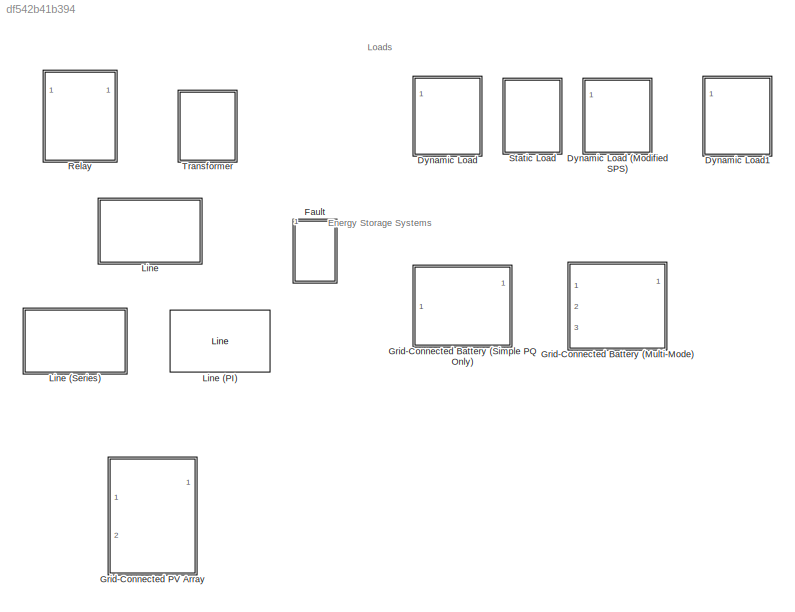
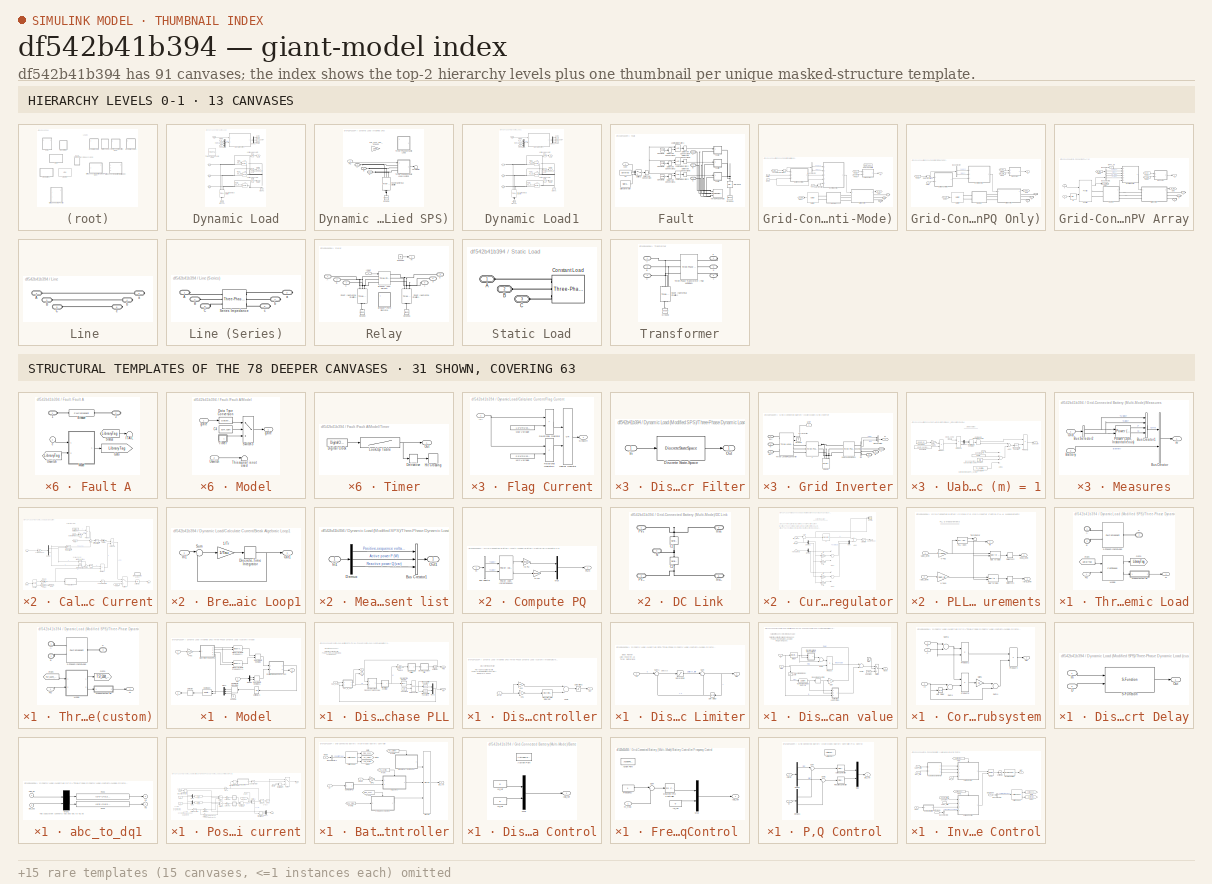
[diagram: thumbnail index - top-2 hierarchy levels (13 canvases) + 31 structural-template representatives of the remaining 78 canvases]
MODEL slx_df542b41b394
KIND library
CONFIG AbsTol = auto
CONFIG EnableMultiTasking = off
CONFIG FixedStep = auto
CONFIG MaxStep = auto
CONFIG MinStep = auto
CONFIG RelTol = 1e-3
CONFIG SampleTimeConstraint = Unconstrained
CONFIG Solver = VariableStepAuto
CONFIG SolverName = VariableStepAuto
CONFIG StartTime = 0.0
CONFIG StopTime = 10.0
BLOCK [SubSystem] Dynamic Load
  Ports = [1, 0, 0, 0, 0, 3]
  RequestExecContextInheritance = off
  Variant = off
BLOCK [SubSystem] Dynamic Load (Modified SPS)
  Ports = [1, 0, 0, 0, 0, 3]
  RequestExecContextInheritance = off
  Variant = off
BLOCK [PMIOPort] Dynamic Load (Modified SPS)/A
  Port = 1
  Side = Left
BLOCK [PMIOPort] Dynamic Load (Modified SPS)/B
  Port = 2
  Side = Left
BLOCK [PMIOPort] Dynamic Load (Modified SPS)/C
  Port = 3
  Side = Left
BLOCK [Reference] Dynamic Load (Modified SPS)/Ground  REF=powerlib/Elements/Ground
  Ports = [0, 0, 0, 0, 0, 1]
  SourceBlock = powerlib/Elements/Ground
  SourceType = Ground
BLOCK [Inport] Dynamic Load (Modified SPS)/PQ
  IconDisplay = Port number
BLOCK [Reference] Dynamic Load (Modified SPS)/Shunt (Numerical Stability)  REF=powerlib/Elements/Three-Phase
Series RLC Branch
  AttributesFormatString = \n
  Ports = [0, 0, 0, 0, 0, 3, 3]
  SourceBlock = powerlib/Elements/Three-Phase\nSeries RLC Branch
  SourceType = Three-Phase Series RLC Branch
BLOCK [Terminator] Dynamic Load (Modified SPS)/Terminator
BLOCK [SubSystem] Dynamic Load (Modified SPS)/Three-Phase Dynamic Load
  CloseFcn = sps_rtmsupport('CloseFcn',gcbh);
  Commented = on
  CopyFcn = sps_rtmsupport('CopyFcn',gcbh); powericon('psbloadfunction',gcb,'gotofrom','UpdateGotoTag');
  DeleteFcn = sps_rtmsupport('DeleteFcn',gcbh);
  DialogController = POWERSYS.PowerSysDialog
  LoadFcn = sps_rtmsupport('LoadFcn',gcbh);
  ModelCloseFcn = sps_rtmsupport('ModelCloseFcn',gcbh);
  NameChangeFcn = sps_rtmsupport('NameChangeFcn',gcbh);
  OpenFcn = sps_rtmsupport('OpenFcn',gcbh, 4);
  Ports = [1, 1, 0, 0, 0, 3]
  PostSaveFcn = sps_rtmsupport('PostSaveFcn',gcbh);
  PreCopyFcn = sps_rtmsupport('PreCopyFcn',gcbh);
  PreDeleteFcn = sps_rtmsupport('PreDeleteFcn',gcbh);
  PreSaveFcn = sps_rtmsupport('PreSaveFcn',gcbh);
  RequestExecContextInheritance = off
  StartFcn = sps_rtmsupport('StartFcn',gcbh);
  StopFcn = sps_rtmsupport('StopFcn',gcbh);
  UndoDeleteFcn = sps_rtmsupport('UndoDeleteFcn',gcbh);
  Variant = off
BLOCK [SubSystem] Dynamic Load (Modified SPS)/Three-Phase Dynamic Load (custom)
  CloseFcn = sps_rtmsupport('CloseFcn',gcbh);
  CopyFcn = sps_rtmsupport('CopyFcn',gcbh); powericon('psbloadfunction',gcb,'gotofrom','UpdateGotoTag');
  DeleteFcn = sps_rtmsupport('DeleteFcn',gcbh);
  DialogController = POWERSYS.PowerSysDialog
  LoadFcn = sps_rtmsupport('LoadFcn',gcbh);
  ModelCloseFcn = sps_rtmsupport('ModelCloseFcn',gcbh);
  NameChangeFcn = sps_rtmsupport('NameChangeFcn',gcbh);
  OpenFcn = sps_rtmsupport('OpenFcn',gcbh, 4);
  Ports = [1, 1, 0, 0, 0, 3]
  PostSaveFcn = sps_rtmsupport('PostSaveFcn',gcbh);
  PreCopyFcn = sps_rtmsupport('PreCopyFcn',gcbh);
  PreDeleteFcn = sps_rtmsupport('PreDeleteFcn',gcbh);
  PreSaveFcn = sps_rtmsupport('PreSaveFcn',gcbh);
  RequestExecContextInheritance = off
  StartFcn = sps_rtmsupport('StartFcn',gcbh);
  StopFcn = sps_rtmsupport('StopFcn',gcbh);
  UndoDeleteFcn = sps_rtmsupport('UndoDeleteFcn',gcbh);
  Variant = off
BLOCK [PMComponent] Dynamic Load (Modified SPS)/Three-Phase Dynamic Load (custom)/3-PhaseDynamicLoad
  LConnTagsString = A|B
  LeftPortType = p1
  PhysicalDomain = powersysdomain
  Ports = [0, 0, 0, 0, 0, 2, 1]
  RConnTagsString = C
  RightPortType = p1
BLOCK [PMIOPort] Dynamic Load (Modified SPS)/Three-Phase Dynamic Load (custom)/A
  Port = 1
  Side = Left
BLOCK [PMIOPort] Dynamic Load (Modified SPS)/Three-Phase Dynamic Load (custom)/B
  Port = 2
  Side = Left
BLOCK [PMIOPort] Dynamic Load (Modified SPS)/Three-Phase Dynamic Load (custom)/C
  Port = 3
  Side = Left
BLOCK [From] Dynamic Load (Modified SPS)/Three-Phase Dynamic Load (custom)/From
  CloseFcn = tagdialog Close
  GotoTag = T57_5329_5275792778477
  TagVisibility = global
BLOCK [Goto] Dynamic Load (Modified SPS)/Three-Phase Dynamic Load (custom)/Goto
  GotoTag = T57_5334_5331768972450
  TagVisibility = global
BLOCK [SubSystem] Dynamic Load (Modified SPS)/Three-Phase Dynamic Load (custom)/Measurement list
  Ports = [1, 1]
  RequestExecContextInheritance = off
  Variant = off
BLOCK [BusCreator] Dynamic Load (Modified SPS)/Three-Phase Dynamic Load (custom)/Measurement list/Bus Creator1
  DisplayOption = bar
  InheritFromInputs = on
  Inputs = 3
  Ports = [3, 1]
BLOCK [Demux] Dynamic Load (Modified SPS)/Three-Phase Dynamic Load (custom)/Measurement list/Demux
  DisplayOption = bar
  Outputs = [1,1,1]
  Ports = [1, 3]
BLOCK [Inport] Dynamic Load (Modified SPS)/Three-Phase Dynamic Load (custom)/Measurement list/In1
  IconDisplay = Port number
BLOCK [Outport] Dynamic Load (Modified SPS)/Three-Phase Dynamic Load (custom)/Measurement list/Out1
  IconDisplay = Port number
BLOCK [SubSystem] Dynamic Load (Modified SPS)/Three-Phase Dynamic Load (custom)/Model
  Ports = [2, 2]
  RequestExecContextInheritance = off
  Variant = off
BLOCK [ComplexToRealImag] Dynamic Load (Modified SPS)/Three-Phase Dynamic Load (custom)/Model/Complex to Real-Imag
  Ports = [1, 2]
BLOCK [Demux] Dynamic Load (Modified SPS)/Three-Phase Dynamic Load (custom)/Model/Demux
  Outputs = 2
  Ports = [1, 2]
BLOCK [SubSystem] Dynamic Load (Modified SPS)/Three-Phase Dynamic Load (custom)/Model/Discrete 3-phase PLL
  Ports = [1, 4]
  RequestExecContextInheritance = off
  Variant = off
BLOCK [Constant] Dynamic Load (Modified SPS)/Three-Phase Dynamic Load (custom)/Model/Discrete 3-phase PLL/Constant4
  Value = 2*pi
BLOCK [SubSystem] Dynamic Load (Modified SPS)/Three-Phase Dynamic Load (custom)/Model/Discrete 3-phase PLL/Discrete 2nd-Order Filter
  Ports = [1, 1]
  RequestExecContextInheritance = off
  Variant = off
BLOCK [DiscreteStateSpace] Dynamic Load (Modified SPS)/Three-Phase Dynamic Load (custom)/Model/Discrete 3-phase PLL/Discrete 2nd-Order Filter/Discrete State-Space
  A = Ad
  B = Bd
  C = Cd
  D = Dd
  SampleTime = Ts
  X0 = x0d
BLOCK [Inport] Dynamic Load (Modified SPS)/Three-Phase Dynamic Load (custom)/Model/Discrete 3-phase PLL/Discrete 2nd-Order Filter/In
  IconDisplay = Port number
BLOCK [Outport] Dynamic Load (Modified SPS)/Three-Phase Dynamic Load (custom)/Model/Discrete 3-phase PLL/Discrete 2nd-Order Filter/Out
  IconDisplay = Port number
  InitialOutput = 0
BLOCK [SubSystem] Dynamic Load (Modified SPS)/Three-Phase Dynamic Load (custom)/Model/Discrete 3-phase PLL/Discrete PI Controller
  Ports = [1, 1]
  RequestExecContextInheritance = off
  Variant = off
BLOCK [DiscreteIntegrator] Dynamic Load (Modified SPS)/Three-Phase Dynamic Load (custom)/Model/Discrete 3-phase PLL/Discrete PI Controller/Discrete-Time Integrator
  ICPrevOutput = DiscIntNeverNeededParam
  ICPrevScaledInput = DiscIntNeverNeededParam
  InitialCondition = Init
  LimitOutput = on
  LowerSaturationLimit = LowerLimit
  Ports = [1, 1]
  SampleTime = Ts
  UpperSaturationLimit = UpperLimit
BLOCK [Inport] Dynamic Load (Modified SPS)/Three-Phase Dynamic Load (custom)/Model/Discrete 3-phase PLL/Discrete PI Controller/Error
  IconDisplay = Port number
BLOCK [Gain] Dynamic Load (Modified SPS)/Three-Phase Dynamic Load (custom)/Model/Discrete 3-phase PLL/Discrete PI Controller/Kp4
  Gain = Kp
BLOCK [Gain] Dynamic Load (Modified SPS)/Three-Phase Dynamic Load (custom)/Model/Discrete 3-phase PLL/Discrete PI Controller/Kp5
  Gain = Ki
BLOCK [Outport] Dynamic Load (Modified SPS)/Three-Phase Dynamic Load (custom)/Model/Discrete 3-phase PLL/Discrete PI Controller/Out
  IconDisplay = Port number
  InitialOutput = 0
BLOCK [Saturate] Dynamic Load (Modified SPS)/Three-Phase Dynamic Load (custom)/Model/Discrete 3-phase PLL/Discrete PI Controller/Saturation2
  InputPortMap = u0
  LowerLimit = LowerLimit
  Ports = [1, 1]
  UpperLimit = UpperLimit
BLOCK [Sum] Dynamic Load (Modified SPS)/Three-Phase Dynamic Load (custom)/Model/Discrete 3-phase PLL/Discrete PI Controller/Sum6
  Ports = [2, 1]
BLOCK [SubSystem] Dynamic Load (Modified SPS)/Three-Phase Dynamic Load (custom)/Model/Discrete 3-phase PLL/Discrete Rate Limiter
  Ports = [1, 1]
  RequestExecContextInheritance = off
  Variant = off
BLOCK [Inport] Dynamic Load (Modified SPS)/Three-Phase Dynamic Load (custom)/Model/Discrete 3-phase PLL/Discrete Rate Limiter/In
  IconDisplay = Port number
BLOCK [Outport] Dynamic Load (Modified SPS)/Three-Phase Dynamic Load (custom)/Model/Discrete 3-phase PLL/Discrete Rate Limiter/Out
  IconDisplay = Port number
BLOCK [Saturate] Dynamic Load (Modified SPS)/Three-Phase Dynamic Load (custom)/Model/Discrete 3-phase PLL/Discrete Rate Limiter/Saturation
  InputPortMap = u0
  LowerLimit = LowerLimit
  Ports = [1, 1]
  UpperLimit = UpperLimit
BLOCK [Sum] Dynamic Load (Modified SPS)/Three-Phase Dynamic Load (custom)/Model/Discrete 3-phase PLL/Discrete Rate Limiter/Sum
  IconShape = round
  Inputs = |++
  Ports = [2, 1]
BLOCK [Sum] Dynamic Load (Modified SPS)/Three-Phase Dynamic Load (custom)/Model/Discrete 3-phase PLL/Discrete Rate Limiter/Sum1
  IconShape = round
  Inputs = |+-
  Ports = [2, 1]
BLOCK [UnitDelay] Dynamic Load (Modified SPS)/Three-Phase Dynamic Load (custom)/Model/Discrete 3-phase PLL/Discrete Rate Limiter/Unit Delay
  InitialCondition = Vinit
  SampleTime = Ts
BLOCK [SubSystem] Dynamic Load (Modified SPS)/Three-Phase Dynamic Load (custom)/Model/Discrete 3-phase PLL/Discrete Variable Frequency Mean value
  Ports = [2, 1]
  RequestExecContextInheritance = off
  Variant = off
BLOCK [Constant] Dynamic Load (Modified SPS)/Three-Phase Dynamic Load (custom)/Model/Discrete 3-phase PLL/Discrete Variable Frequency Mean value/Constant
  Value = Vinit
BLOCK [SubSystem] Dynamic Load (Modified SPS)/Three-Phase Dynamic Load (custom)/Model/Discrete 3-phase PLL/Discrete Variable Frequency Mean value/Correction subsystem
  Ports = [3, 1]
  RequestExecContextInheritance = off
  Variant = off
BLOCK [Inport] Dynamic Load (Modified SPS)/Three-Phase Dynamic Load (custom)/Model/Discrete 3-phase PLL/Discrete Variable Frequency Mean value/Correction subsystem/F
  IconDisplay = Port number
  Port = 2
BLOCK [Gain] Dynamic Load (Modified SPS)/Three-Phase Dynamic Load (custom)/Model/Discrete 3-phase PLL/Discrete Variable Frequency Mean value/Correction subsystem/Gain1
  Gain = 0.5
BLOCK [Inport] Dynamic Load (Modified SPS)/Three-Phase Dynamic Load (custom)/Model/Discrete 3-phase PLL/Discrete Variable Frequency Mean value/Correction subsystem/In
  IconDisplay = Port number
  Port = 3
BLOCK [Inport] Dynamic Load (Modified SPS)/Three-Phase Dynamic Load (custom)/Model/Discrete 3-phase PLL/Discrete Variable Frequency Mean value/Correction subsystem/N
  IconDisplay = Port number
BLOCK [Outport] Dynamic Load (Modified SPS)/Three-Phase Dynamic Load (custom)/Model/Discrete 3-phase PLL/Discrete Variable Frequency Mean value/Correction subsystem/Out
  IconDisplay = Port number
BLOCK [Product] Dynamic Load (Modified SPS)/Three-Phase Dynamic Load (custom)/Model/Discrete 3-phase PLL/Discrete Variable Frequency Mean value/Correction subsystem/Product2
  Inputs = */
  Ports = [2, 1]
  RndMeth = Floor
BLOCK [Product] Dynamic Load (Modified SPS)/Three-Phase Dynamic Load (custom)/Model/Discrete 3-phase PLL/Discrete Variable Frequency Mean value/Correction subsystem/Product4
  Inputs = **
  Ports = [2, 1]
  RndMeth = Floor
BLOCK [Product] Dynamic Load (Modified SPS)/Three-Phase Dynamic Load (custom)/Model/Discrete 3-phase PLL/Discrete Variable Frequency Mean value/Correction subsystem/Product5
  Inputs = **
  Ports = [2, 1]
  RndMeth = Floor
BLOCK [Sum] Dynamic Load (Modified SPS)/Three-Phase Dynamic Load (custom)/Model/Discrete 3-phase PLL/Discrete Variable Frequency Mean value/Correction subsystem/Sum1
  Inputs = +-
  Ports = [2, 1]
BLOCK [Sum] Dynamic Load (Modified SPS)/Three-Phase Dynamic Load (custom)/Model/Discrete 3-phase PLL/Discrete Variable Frequency Mean value/Correction subsystem/Sum4
  Ports = [2, 1]
BLOCK [Sum] Dynamic Load (Modified SPS)/Three-Phase Dynamic Load (custom)/Model/Discrete 3-phase PLL/Discrete Variable Frequency Mean value/Correction subsystem/Sum5
  Inputs = +-
  Ports = [2, 1]
BLOCK [UnitDelay] Dynamic Load (Modified SPS)/Three-Phase Dynamic Load (custom)/Model/Discrete 3-phase PLL/Discrete Variable Frequency Mean value/Correction subsystem/Unit Delay
  SampleTime = Ts
BLOCK [SubSystem] Dynamic Load (Modified SPS)/Three-Phase Dynamic Load (custom)/Model/Discrete 3-phase PLL/Discrete Variable Frequency Mean value/Discrete Variable Transport Delay
  Ports = [2, 1]
  RequestExecContextInheritance = off
  Variant = off
BLOCK [Inport] Dynamic Load (Modified SPS)/Three-Phase Dynamic Load (custom)/Model/Discrete 3-phase PLL/Discrete Variable Frequency Mean value/Discrete Variable Transport Delay/D
  IconDisplay = Port number
  Port = 2
BLOCK [Inport] Dynamic Load (Modified SPS)/Three-Phase Dynamic Load (custom)/Model/Discrete 3-phase PLL/Discrete Variable Frequency Mean value/Discrete Variable Transport Delay/In
  IconDisplay = Port number
BLOCK [Outport] Dynamic Load (Modified SPS)/Three-Phase Dynamic Load (custom)/Model/Discrete 3-phase PLL/Discrete Variable Frequency Mean value/Discrete Variable Transport Delay/Out
  IconDisplay = Port number
BLOCK [S-Function] Dynamic Load (Modified SPS)/Three-Phase Dynamic Load (custom)/Model/Discrete 3-phase PLL/Discrete Variable Frequency Mean value/Discrete Variable Transport Delay/S-Function 
  EnableBusSupport = off
  FunctionName = discreteVariableTransportDelay
  Parameters = MaxDelay,Ts,InitialValue
  Ports = [2, 1]
  SFcnIsStateOwnerBlock = off
  SFunctionDeploymentMode = off
BLOCK [Inport] Dynamic Load (Modified SPS)/Three-Phase Dynamic Load (custom)/Model/Discrete 3-phase PLL/Discrete Variable Frequency Mean value/Freq
  IconDisplay = Port number
  PortDimensions = 1
BLOCK [Gain] Dynamic Load (Modified SPS)/Three-Phase Dynamic Load (custom)/Model/Discrete 3-phase PLL/Discrete Variable Frequency Mean value/Gain
  Gain = Ts
BLOCK [Inport] Dynamic Load (Modified SPS)/Three-Phase Dynamic Load (custom)/Model/Discrete 3-phase PLL/Discrete Variable Frequency Mean value/In
  IconDisplay = Port number
  Port = 2
  PortDimensions = 1
BLOCK [DiscreteIntegrator] Dynamic Load (Modified SPS)/Three-Phase Dynamic Load (custom)/Model/Discrete 3-phase PLL/Discrete Variable Frequency Mean value/Integ4
  ICPrevOutput = DiscIntNeverNeededParam
  ICPrevScaledInput = DiscIntNeverNeededParam
  IntegratorMethod = Integration: Trapezoidal
  Ports = [1, 1]
  SampleTime = Ts
BLOCK [Outport] Dynamic Load (Modified SPS)/Three-Phase Dynamic Load (custom)/Model/Discrete 3-phase PLL/Discrete Variable Frequency Mean value/Mean
  IconDisplay = Port number
BLOCK [Fcn] Dynamic Load (Modified SPS)/Three-Phase Dynamic Load (custom)/Model/Discrete 3-phase PLL/Discrete Variable Frequency Mean value/Number of samples per cycle
  Expr = 1/u[1]/Ts
BLOCK [Product] Dynamic Load (Modified SPS)/Three-Phase Dynamic Load (custom)/Model/Discrete 3-phase PLL/Discrete Variable Frequency Mean value/Product
  Ports = [2, 1]
  RndMeth = Floor
BLOCK [Rounding] Dynamic Load (Modified SPS)/Three-Phase Dynamic Load (custom)/Model/Discrete 3-phase PLL/Discrete Variable Frequency Mean value/Rounding Function
  Operator = ceil
BLOCK [Step] Dynamic Load (Modified SPS)/Three-Phase Dynamic Load (custom)/Model/Discrete 3-phase PLL/Discrete Variable Frequency Mean value/Step
  SampleTime = Ts
  Time = 1/Finit
BLOCK [Sum] Dynamic Load (Modified SPS)/Three-Phase Dynamic Load (custom)/Model/Discrete 3-phase PLL/Discrete Variable Frequency Mean value/Sum5
  Ports = [2, 1]
BLOCK [Sum] Dynamic Load (Modified SPS)/Three-Phase Dynamic Load (custom)/Model/Discrete 3-phase PLL/Discrete Variable Frequency Mean value/Sum7
  Inputs = -+
  Ports = [2, 1]
BLOCK [Switch] Dynamic Load (Modified SPS)/Three-Phase Dynamic Load (custom)/Model/Discrete 3-phase PLL/Discrete Variable Frequency Mean value/Switch
  SaturateOnIntegerOverflow = off
  Threshold = 0.5
BLOCK [Saturate] Dynamic Load (Modified SPS)/Three-Phase Dynamic Load (custom)/Model/Discrete 3-phase PLL/Discrete Variable Frequency Mean value/To avoid division by zero
  InputPortMap = u0
  LowerLimit = 1e-6
  Ports = [1, 1]
  UpperLimit = 1e6
BLOCK [DiscreteIntegrator] Dynamic Load (Modified SPS)/Three-Phase Dynamic Load (custom)/Model/Discrete 3-phase PLL/Discrete-Time Integrator
  ICPrevOutput = DiscIntNeverNeededParam
  ICPrevScaledInput = DiscIntNeverNeededParam
  InitialCondition = Phase_Init*pi/180
  Ports = [1, 1]
  SampleTime = Ts
BLOCK [Outport] Dynamic Load (Modified SPS)/Three-Phase Dynamic Load (custom)/Model/Discrete 3-phase PLL/Freq
  IconDisplay = Port number
BLOCK [Gain] Dynamic Load (Modified SPS)/Three-Phase Dynamic Load (custom)/Model/Discrete 3-phase PLL/Gain10
  Gain = 1/2/pi
BLOCK [Math] Dynamic Load (Modified SPS)/Three-Phase Dynamic Load (custom)/Model/Discrete 3-phase PLL/Math Function
  Operator = mod
  Ports = [2, 1]
BLOCK [Mux] Dynamic Load (Modified SPS)/Three-Phase Dynamic Load (custom)/Model/Discrete 3-phase PLL/Mux2
  DisplayOption = bar
  Inputs = 2
  Ports = [2, 1]
BLOCK [Trigonometry] Dynamic Load (Modified SPS)/Three-Phase Dynamic Load (custom)/Model/Discrete 3-phase PLL/Trigonometric Function
  Ports = [1, 1]
BLOCK [Trigonometry] Dynamic Load (Modified SPS)/Three-Phase Dynamic Load (custom)/Model/Discrete 3-phase PLL/Trigonometric Function2
  Operator = cos
  Ports = [1, 1]
BLOCK [UnitDelay] Dynamic Load (Modified SPS)/Three-Phase Dynamic Load (custom)/Model/Discrete 3-phase PLL/Unit Delay
  InitialCondition = Finit
  SampleTime = Ts
BLOCK [Inport] Dynamic Load (Modified SPS)/Three-Phase Dynamic Load (custom)/Model/Discrete 3-phase PLL/Vab_bc (pu)
  IconDisplay = Port number
  PortDimensions = 2
BLOCK [Outport] Dynamic Load (Modified SPS)/Three-Phase Dynamic Load (custom)/Model/Discrete 3-phase PLL/Vd
  IconDisplay = Port number
  Port = 2
BLOCK [Outport] Dynamic Load (Modified SPS)/Three-Phase Dynamic Load (custom)/Model/Discrete 3-phase PLL/Vq
  IconDisplay = Port number
  Port = 3
BLOCK [SubSystem] Dynamic Load (Modified SPS)/Three-Phase Dynamic Load (custom)/Model/Discrete 3-phase PLL/abc_to_dq1
  Ports = [2, 2]
  RequestExecContextInheritance = off
  Variant = off
BLOCK [Fcn] Dynamic Load (Modified SPS)/Three-Phase Dynamic Load (custom)/Model/Discrete 3-phase PLL/abc_to_dq1/Fcn2
  Expr = (u[4]*(2*u[1]+u[2]) + (sqrt(3)*u[2]*u[3]))/3
BLOCK [Fcn] Dynamic Load (Modified SPS)/Three-Phase Dynamic Load (custom)/Model/Discrete 3-phase PLL/abc_to_dq1/Fcn3
  Expr = (u[3]*(2*u[1]+u[2]) + (-sqrt(3)*u[2]*u[4]))/3
BLOCK [Mux] Dynamic Load (Modified SPS)/Three-Phase Dynamic Load (custom)/Model/Discrete 3-phase PLL/abc_to_dq1/Mux1
  Inputs = [ 2 2 ]
  Ports = [2, 1]
BLOCK [Inport] Dynamic Load (Modified SPS)/Three-Phase Dynamic Load (custom)/Model/Discrete 3-phase PLL/abc_to_dq1/Vab_bc
  IconDisplay = Port number
  PortDimensions = 2
BLOCK [Inport] Dynamic Load (Modified SPS)/Three-Phase Dynamic Load (custom)/Model/Discrete 3-phase PLL/abc_to_dq1/sin_cos
  IconDisplay = Port number
  Port = 2
  PortDimensions = 2
BLOCK [Outport] Dynamic Load (Modified SPS)/Three-Phase Dynamic Load (custom)/Model/Discrete 3-phase PLL/abc_to_dq1/vd
  IconDisplay = Port number
  InitialOutput = 0
BLOCK [Outport] Dynamic Load (Modified SPS)/Three-Phase Dynamic Load (custom)/Model/Discrete 3-phase PLL/abc_to_dq1/vq
  IconDisplay = Port number
  InitialOutput = 0
  Port = 2
BLOCK [Outport] Dynamic Load (Modified SPS)/Three-Phase Dynamic Load (custom)/Model/Discrete 3-phase PLL/wt
  IconDisplay = Port number
  Port = 4
BLOCK [Ground] Dynamic Load (Modified SPS)/Three-Phase Dynamic Load (custom)/Model/Ground
BLOCK [Reference] Dynamic Load (Modified SPS)/Three-Phase Dynamic Load (custom)/Model/Mean (Variable Frequency)  REF=powerlib_meascontrol/Measurements/Mean
(Variable Frequency)
  Ports = [2, 1]
  SourceBlock = powerlib_meascontrol/Measurements/Mean\n(Variable Frequency)
  SourceType = Mean (Variable Frequency)
BLOCK [Reference] Dynamic Load (Modified SPS)/Three-Phase Dynamic Load (custom)/Model/Mean (Variable Frequency)1  REF=powerlib_meascontrol/Measurements/Mean
(Variable Frequency)
  Ports = [2, 1]
  SourceBlock = powerlib_meascontrol/Measurements/Mean\n(Variable Frequency)
  SourceType = Mean (Variable Frequency)
BLOCK [Mux] Dynamic Load (Modified SPS)/Three-Phase Dynamic Load (custom)/Model/Mux1
  DisplayOption = bar
  Inputs = 3
  Ports = [3, 1]
BLOCK [Inport] Dynamic Load (Modified SPS)/Three-Phase Dynamic Load (custom)/Model/PQ
  IconDisplay = Port number
  Port = 2
  PortDimensions = 2
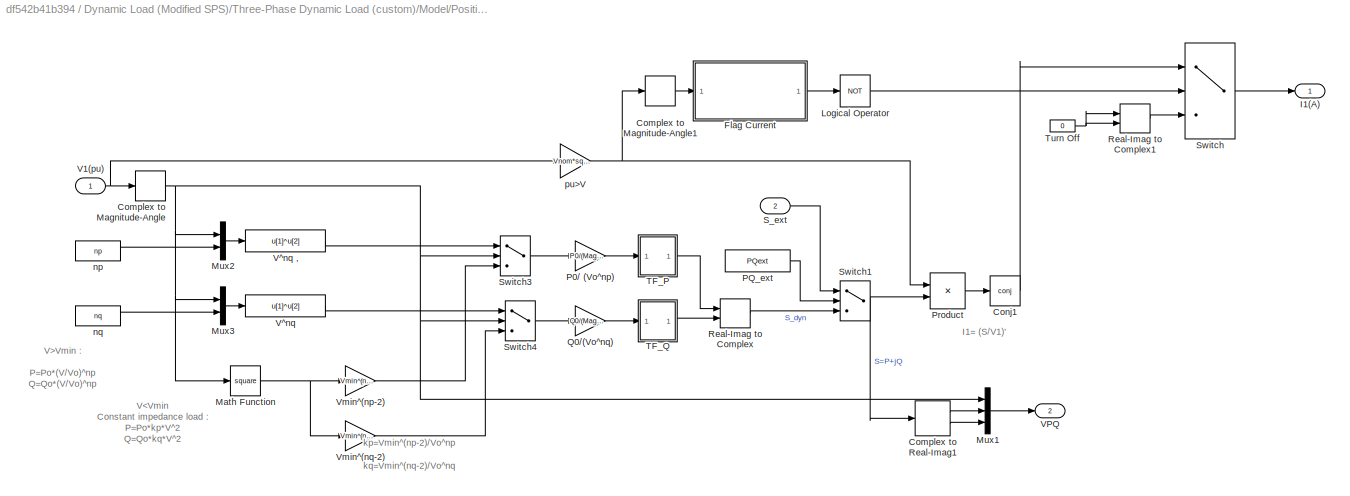
BLOCK [SubSystem] Dynamic Load (Modified SPS)/Three-Phase Dynamic Load (custom)/Model/Positive Sequence current
  Ports = [2, 2]
  RequestExecContextInheritance = off
  Variant = off
BLOCK [ComplexToMagnitudeAngle] Dynamic Load (Modified SPS)/Three-Phase Dynamic Load (custom)/Model/Positive Sequence current/Complex to Magnitude-Angle
  Output = Magnitude
  Ports = [1, 1]
BLOCK [ComplexToMagnitudeAngle] Dynamic Load (Modified SPS)/Three-Phase Dynamic Load (custom)/Model/Positive Sequence current/Complex to Magnitude-Angle1
  Output = Magnitude
  Ports = [1, 1]
BLOCK [ComplexToRealImag] Dynamic Load (Modified SPS)/Three-Phase Dynamic Load (custom)/Model/Positive Sequence current/Complex to Real-Imag1
  Ports = [1, 2]
BLOCK [Math] Dynamic Load (Modified SPS)/Three-Phase Dynamic Load (custom)/Model/Positive Sequence current/Conj1
  Operator = conj
  Ports = [1, 1]
BLOCK [SubSystem] Dynamic Load (Modified SPS)/Three-Phase Dynamic Load (custom)/Model/Positive Sequence current/Flag Current
  Ports = [1, 1]
  RequestExecContextInheritance = off
  Variant = off
BLOCK [Logic] Dynamic Load (Modified SPS)/Three-Phase Dynamic Load (custom)/Model/Positive Sequence current/Flag Current/Logical Operator
  AllPortsSameDT = off
  Operator = OR
  OutDataTypeStr = boolean
  Ports = [2, 1]
BLOCK [Constant] Dynamic Load (Modified SPS)/Three-Phase Dynamic Load (custom)/Model/Positive Sequence current/Flag Current/Max Voltage
  Value = 1.5*460*sqrt(3)/sqrt(2)
BLOCK [Constant] Dynamic Load (Modified SPS)/Three-Phase Dynamic Load (custom)/Model/Positive Sequence current/Flag Current/Min Voltage
  Value = 0.5*460*sqrt(3)/sqrt(2)
BLOCK [RelationalOperator] Dynamic Load (Modified SPS)/Three-Phase Dynamic Load (custom)/Model/Positive Sequence current/Flag Current/Relational Operator
  InputSameDT = off
  Operator = >
  OutDataTypeStr = boolean
  Ports = [2, 1]
  RndMeth = Simplest
BLOCK [RelationalOperator] Dynamic Load (Modified SPS)/Three-Phase Dynamic Load (custom)/Model/Positive Sequence current/Flag Current/Relational Operator1
  InputSameDT = off
  Operator = <
  OutDataTypeStr = boolean
  Ports = [2, 1]
  RndMeth = Simplest
BLOCK [Outport] Dynamic Load (Modified SPS)/Three-Phase Dynamic Load (custom)/Model/Positive Sequence current/Flag Current/SinkOff
  IconDisplay = Port number
BLOCK [Inport] Dynamic Load (Modified SPS)/Three-Phase Dynamic Load (custom)/Model/Positive Sequence current/Flag Current/|V|
  IconDisplay = Port number
BLOCK [Outport] Dynamic Load (Modified SPS)/Three-Phase Dynamic Load (custom)/Model/Positive Sequence current/I1(A)
  IconDisplay = Port number
BLOCK [Logic] Dynamic Load (Modified SPS)/Three-Phase Dynamic Load (custom)/Model/Positive Sequence current/Logical Operator
  AllPortsSameDT = off
  Operator = NOT
  OutDataTypeStr = boolean
  Ports = [1, 1]
BLOCK [Math] Dynamic Load (Modified SPS)/Three-Phase Dynamic Load (custom)/Model/Positive Sequence current/Math Function
  Operator = square
  Ports = [1, 1]
BLOCK [Mux] Dynamic Load (Modified SPS)/Three-Phase Dynamic Load (custom)/Model/Positive Sequence current/Mux1
  DisplayOption = bar
  Inputs = 3
  Ports = [3, 1]
BLOCK [Mux] Dynamic Load (Modified SPS)/Three-Phase Dynamic Load (custom)/Model/Positive Sequence current/Mux2
  DisplayOption = bar
  Inputs = 2
  Ports = [2, 1]
BLOCK [Mux] Dynamic Load (Modified SPS)/Three-Phase Dynamic Load (custom)/Model/Positive Sequence current/Mux3
  DisplayOption = bar
  Inputs = 2
  Ports = [2, 1]
BLOCK [Gain] Dynamic Load (Modified SPS)/Three-Phase Dynamic Load (custom)/Model/Positive Sequence current/P0// (Vo^np)
  Gain = P0/(Mag_V0^np)
BLOCK [Constant] Dynamic Load (Modified SPS)/Three-Phase Dynamic Load (custom)/Model/Positive Sequence current/PQ_ext
  Value = PQext
BLOCK [Product] Dynamic Load (Modified SPS)/Three-Phase Dynamic Load (custom)/Model/Positive Sequence current/Product
  Inputs = /*
  Ports = [2, 1]
  RndMeth = Floor
BLOCK [Gain] Dynamic Load (Modified SPS)/Three-Phase Dynamic Load (custom)/Model/Positive Sequence current/Q0//(Vo^nq)
  Gain = Q0/(Mag_V0^nq)
BLOCK [RealImagToComplex] Dynamic Load (Modified SPS)/Three-Phase Dynamic Load (custom)/Model/Positive Sequence current/Real-Imag to Complex
  Ports = [2, 1]
BLOCK [RealImagToComplex] Dynamic Load (Modified SPS)/Three-Phase Dynamic Load (custom)/Model/Positive Sequence current/Real-Imag to Complex1
  Ports = [2, 1]
BLOCK [Inport] Dynamic Load (Modified SPS)/Three-Phase Dynamic Load (custom)/Model/Positive Sequence current/S_ext
  IconDisplay = Port number
  Port = 2
  PortDimensions = 1
BLOCK [Switch] Dynamic Load (Modified SPS)/Three-Phase Dynamic Load (custom)/Model/Positive Sequence current/Switch
  Criteria = u2 > Threshold
  InputSameDT = off
  SaturateOnIntegerOverflow = off
BLOCK [Switch] Dynamic Load (Modified SPS)/Three-Phase Dynamic Load (custom)/Model/Positive Sequence current/Switch1
  SaturateOnIntegerOverflow = off
  Threshold = 0.5
BLOCK [Switch] Dynamic Load (Modified SPS)/Three-Phase Dynamic Load (custom)/Model/Positive Sequence current/Switch3
  SaturateOnIntegerOverflow = off
  Threshold = Vmin
BLOCK [Switch] Dynamic Load (Modified SPS)/Three-Phase Dynamic Load (custom)/Model/Positive Sequence current/Switch4
  SaturateOnIntegerOverflow = off
  Threshold = Vmin
BLOCK [SubSystem] Dynamic Load (Modified SPS)/Three-Phase Dynamic Load (custom)/Model/Positive Sequence current/TF_P
  Ports = [1, 1]
  RequestExecContextInheritance = off
  Variant = off
BLOCK [DiscreteStateSpace] Dynamic Load (Modified SPS)/Three-Phase Dynamic Load (custom)/Model/Positive Sequence current/TF_P/Discrete State-Space
  A = Ad
  B = Bd
  C = Cd
  D = Dd
  SampleTime = Ts
  X0 = x0d
BLOCK [Inport] Dynamic Load (Modified SPS)/Three-Phase Dynamic Load (custom)/Model/Positive Sequence current/TF_P/In1
  IconDisplay = Port number
BLOCK [Outport] Dynamic Load (Modified SPS)/Three-Phase Dynamic Load (custom)/Model/Positive Sequence current/TF_P/Out1
  IconDisplay = Port number
BLOCK [SubSystem] Dynamic Load (Modified SPS)/Three-Phase Dynamic Load (custom)/Model/Positive Sequence current/TF_Q
  Ports = [1, 1]
  RequestExecContextInheritance = off
  Variant = off
BLOCK [DiscreteStateSpace] Dynamic Load (Modified SPS)/Three-Phase Dynamic Load (custom)/Model/Positive Sequence current/TF_Q/Discrete State-Space
  A = Ad
  B = Bd
  C = Cd
  D = Dd
  SampleTime = Ts
  X0 = x0d
BLOCK [Inport] Dynamic Load (Modified SPS)/Three-Phase Dynamic Load (custom)/Model/Positive Sequence current/TF_Q/In1
  IconDisplay = Port number
BLOCK [Outport] Dynamic Load (Modified SPS)/Three-Phase Dynamic Load (custom)/Model/Positive Sequence current/TF_Q/Out1
  IconDisplay = Port number
BLOCK [Constant] Dynamic Load (Modified SPS)/Three-Phase Dynamic Load (custom)/Model/Positive Sequence current/Turn Off
  Value = 0
BLOCK [Inport] Dynamic Load (Modified SPS)/Three-Phase Dynamic Load (custom)/Model/Positive Sequence current/V1(pu)
  IconDisplay = Port number
  PortDimensions = 1
BLOCK [Outport] Dynamic Load (Modified SPS)/Three-Phase Dynamic Load (custom)/Model/Positive Sequence current/VPQ
  IconDisplay = Port number
  Port = 2
BLOCK [Fcn] Dynamic Load (Modified SPS)/Three-Phase Dynamic Load (custom)/Model/Positive Sequence current/V^nq
  Expr = u[1]^u[2]
BLOCK [Fcn] Dynamic Load (Modified SPS)/Three-Phase Dynamic Load (custom)/Model/Positive Sequence current/V^nq ,
  Expr = u[1]^u[2]
BLOCK [Gain] Dynamic Load (Modified SPS)/Three-Phase Dynamic Load (custom)/Model/Positive Sequence current/Vmin^(np-2)
  Gain = Vmin^(np-2)
BLOCK [Gain] Dynamic Load (Modified SPS)/Three-Phase Dynamic Load (custom)/Model/Positive Sequence current/Vmin^(nq-2)
  Gain = Vmin^(nq-2)
BLOCK [Constant] Dynamic Load (Modified SPS)/Three-Phase Dynamic Load (custom)/Model/Positive Sequence current/np
  Value = np
BLOCK [Constant] Dynamic Load (Modified SPS)/Three-Phase Dynamic Load (custom)/Model/Positive Sequence current/nq
  Value = nq
BLOCK [Gain] Dynamic Load (Modified SPS)/Three-Phase Dynamic Load (custom)/Model/Positive Sequence current/pu>V
  Gain = Vnom*sqrt(3)/sqrt(2)
BLOCK [RealImagToComplex] Dynamic Load (Modified SPS)/Three-Phase Dynamic Load (custom)/Model/Real-Imag to Complex
  Ports = [2, 1]
BLOCK [RealImagToComplex] Dynamic Load (Modified SPS)/Three-Phase Dynamic Load (custom)/Model/Real-Imag to Complex1
  Ports = [2, 1]
BLOCK [Selector] Dynamic Load (Modified SPS)/Three-Phase Dynamic Load (custom)/Model/Selector
  IndexOptions = Index vector (dialog)
  Indices = 1:2
  InputPortWidth = 3
  OutputSizes = 1
  Ports = [1, 1]
BLOCK [UnitDelay] Dynamic Load (Modified SPS)/Three-Phase Dynamic Load (custom)/Model/Unit Delay1
  InitialCondition = I1_init*exp(-j*Pha_V0*pi/180)
  SampleTime = Ts
BLOCK [Gain] Dynamic Load (Modified SPS)/Three-Phase Dynamic Load (custom)/Model/V> pu
  Gain = 1/Vbase
BLOCK [Reference] Dynamic Load (Modified SPS)/Three-Phase Dynamic Load (custom)/Model/dq0 to abc  REF=powerlib_meascontrol/Transformations/dq0 to abc
  Ports = [2, 1]
  SourceBlock = powerlib_meascontrol/Transformations/dq0 to abc
  SourceType = dq0 to abc Transformation
BLOCK [Outport] Dynamic Load (Modified SPS)/Three-Phase Dynamic Load (custom)/Model/i
  IconDisplay = Port number
BLOCK [Outport] Dynamic Load (Modified SPS)/Three-Phase Dynamic Load (custom)/Model/m
  IconDisplay = Port number
  Port = 2
BLOCK [Inport] Dynamic Load (Modified SPS)/Three-Phase Dynamic Load (custom)/Model/v
  IconDisplay = Port number
  PortDimensions = 2
BLOCK [Inport] Dynamic Load (Modified SPS)/Three-Phase Dynamic Load (custom)/PQ
  IconDisplay = Port number
BLOCK [Outport] Dynamic Load (Modified SPS)/Three-Phase Dynamic Load (custom)/m
  IconDisplay = Port number
  InitialOutput = [0,0,0]
BLOCK [PMComponent] Dynamic Load (Modified SPS)/Three-Phase Dynamic Load/3-PhaseDynamicLoad
  LConnTagsString = A|B
  LeftPortType = p1
  PhysicalDomain = powersysdomain
  Ports = [0, 0, 0, 0, 0, 2, 1]
  RConnTagsString = C
  RightPortType = p1
BLOCK [PMIOPort] Dynamic Load (Modified SPS)/Three-Phase Dynamic Load/A
  Port = 1
  Side = Left
BLOCK [PMIOPort] Dynamic Load (Modified SPS)/Three-Phase Dynamic Load/B
  Port = 2
  Side = Left
BLOCK [PMIOPort] Dynamic Load (Modified SPS)/Three-Phase Dynamic Load/C
  Port = 3
  Side = Left
BLOCK [From] Dynamic Load (Modified SPS)/Three-Phase Dynamic Load/From
  CloseFcn = tagdialog Close
  GotoTag = LibraryTag
BLOCK [Goto] Dynamic Load (Modified SPS)/Three-Phase Dynamic Load/Goto
  GotoTag = LibraryTag
  TagVisibility = global
BLOCK [SubSystem] Dynamic Load (Modified SPS)/Three-Phase Dynamic Load/Measurement list
  Ports = [1, 1]
  RequestExecContextInheritance = off
  Variant = off
BLOCK [BusCreator] Dynamic Load (Modified SPS)/Three-Phase Dynamic Load/Measurement list/Bus Creator1
  DisplayOption = bar
  InheritFromInputs = on
  Inputs = 3
  Ports = [3, 1]
BLOCK [Demux] Dynamic Load (Modified SPS)/Three-Phase Dynamic Load/Measurement list/Demux
  DisplayOption = bar
  Outputs = [1,1,1]
  Ports = [1, 3]
BLOCK [Inport] Dynamic Load (Modified SPS)/Three-Phase Dynamic Load/Measurement list/In1
  IconDisplay = Port number
BLOCK [Outport] Dynamic Load (Modified SPS)/Three-Phase Dynamic Load/Measurement list/Out1
  IconDisplay = Port number
BLOCK [Reference] Dynamic Load (Modified SPS)/Three-Phase Dynamic Load/Model  REF=spsDynamicLoadModel/Continuous
  Ports = [2, 2]
  SourceBlock = spsDynamicLoadModel/Continuous
  SourceType = SubSystem
BLOCK [Inport] Dynamic Load (Modified SPS)/Three-Phase Dynamic Load/PQ
  IconDisplay = Port number
BLOCK [Outport] Dynamic Load (Modified SPS)/Three-Phase Dynamic Load/m
  IconDisplay = Port number
  InitialOutput = [0,0,0]
BLOCK [Gain] Dynamic Load (Modified SPS)/kW_kVAr_per_phase1
  Commented = on
  Gain = 1000
  OutDataTypeStr = Inherit: Inherit via internal rule
  ParamDataTypeStr = Inherit: Inherit via internal rule
  SaturateOnIntegerOverflow = off
BLOCK [PMIOPort] Dynamic Load/A
  Port = 1
  Side = Left
BLOCK [PMIOPort] Dynamic Load/B
  Port = 2
  Side = Left
BLOCK [PMIOPort] Dynamic Load/C
  Port = 3
  Side = Left
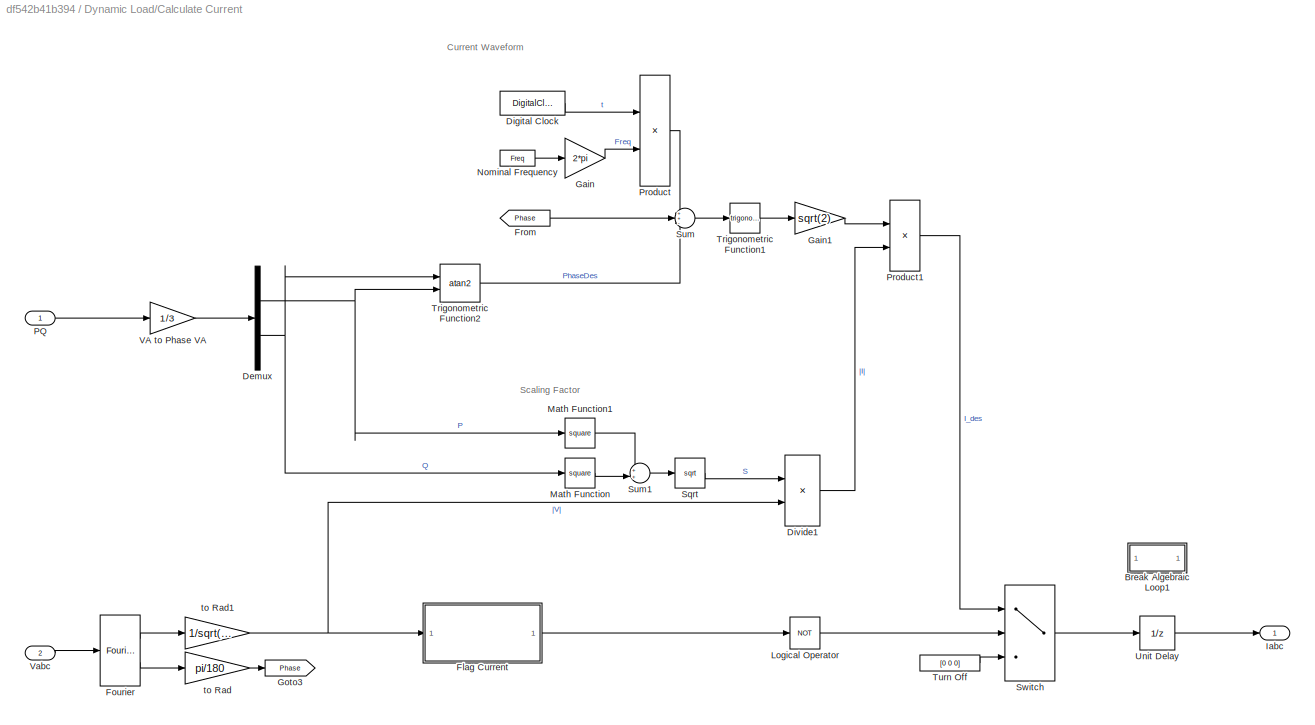
BLOCK [SubSystem] Dynamic Load/Calculate Current
  Ports = [2, 1]
  RequestExecContextInheritance = off
  Variant = off
BLOCK [SubSystem] Dynamic Load/Calculate Current/Break Algebraic Loop1
  Commented = on
  Ports = [1, 1]
  RequestExecContextInheritance = off
  Variant = off
BLOCK [Gain] Dynamic Load/Calculate Current/Break Algebraic Loop1/1//Tr
  Gain = 1/Tau
  OutDataTypeStr = Inherit: Inherit via internal rule
  ParamDataTypeStr = Inherit: Inherit via internal rule
  SampleTime = Ts
  SaturateOnIntegerOverflow = off
BLOCK [DiscreteIntegrator] Dynamic Load/Calculate Current/Break Algebraic Loop1/Discrete-Time Integrator
  ICPrevOutput = DiscIntNeverNeededParam
  ICPrevScaledInput = DiscIntNeverNeededParam
  Ports = [1, 1]
  SampleTime = Ts
BLOCK [Inport] Dynamic Load/Calculate Current/Break Algebraic Loop1/In1
  IconDisplay = Port number
BLOCK [Outport] Dynamic Load/Calculate Current/Break Algebraic Loop1/Out1
  IconDisplay = Port number
BLOCK [Sum] Dynamic Load/Calculate Current/Break Algebraic Loop1/Sum
  IconShape = round
  InputSameDT = off
  Inputs = |+-
  OutDataTypeStr = Inherit: Inherit via internal rule
  Ports = [2, 1]
  SaturateOnIntegerOverflow = off
BLOCK [Demux] Dynamic Load/Calculate Current/Demux
  DisplayOption = bar
  Outputs = 2
  Ports = [1, 2]
BLOCK [DigitalClock] Dynamic Load/Calculate Current/Digital Clock
  SampleTime = Ts
BLOCK [Product] Dynamic Load/Calculate Current/Divide1
  InputSameDT = off
  Inputs = */
  OutDataTypeStr = Inherit: Inherit via internal rule
  Ports = [2, 1]
  RndMeth = Floor
  SaturateOnIntegerOverflow = off
BLOCK [SubSystem] Dynamic Load/Calculate Current/Flag Current
  Ports = [1, 1]
  RequestExecContextInheritance = off
  Variant = off
BLOCK [Logic] Dynamic Load/Calculate Current/Flag Current/Logical Operator
  AllPortsSameDT = off
  Operator = OR
  OutDataTypeStr = boolean
  Ports = [2, 1]
BLOCK [Constant] Dynamic Load/Calculate Current/Flag Current/Max Voltage
  Value = 1.5*Vrms/sqrt(3)
BLOCK [Constant] Dynamic Load/Calculate Current/Flag Current/Min Voltage
  Value = 0.5*Vrms/sqrt(3)
BLOCK [RelationalOperator] Dynamic Load/Calculate Current/Flag Current/Relational Operator
  InputSameDT = off
  Operator = >
  OutDataTypeStr = boolean
  Ports = [2, 1]
  RndMeth = Simplest
BLOCK [RelationalOperator] Dynamic Load/Calculate Current/Flag Current/Relational Operator1
  InputSameDT = off
  Operator = <
  OutDataTypeStr = boolean
  Ports = [2, 1]
  RndMeth = Simplest
BLOCK [Outport] Dynamic Load/Calculate Current/Flag Current/SinkOff
  IconDisplay = Port number
BLOCK [Inport] Dynamic Load/Calculate Current/Flag Current/|V|
  IconDisplay = Port number
BLOCK [Reference] Dynamic Load/Calculate Current/Fourier  REF=powerlib_meascontrol/Measurements/Fourier
  Ports = [1, 2]
  SourceBlock = powerlib_meascontrol/Measurements/Fourier
  SourceType = Fourier
BLOCK [From] Dynamic Load/Calculate Current/From
  GotoTag = Phase
BLOCK [Gain] Dynamic Load/Calculate Current/Gain
  Gain = 2*pi
  OutDataTypeStr = Inherit: Inherit via internal rule
  ParamDataTypeStr = Inherit: Inherit via internal rule
  SaturateOnIntegerOverflow = off
BLOCK [Gain] Dynamic Load/Calculate Current/Gain1
  Gain = sqrt(2)
  OutDataTypeStr = Inherit: Inherit via internal rule
  ParamDataTypeStr = Inherit: Inherit via internal rule
  SaturateOnIntegerOverflow = off
BLOCK [Goto] Dynamic Load/Calculate Current/Goto3
  GotoTag = Phase
BLOCK [Outport] Dynamic Load/Calculate Current/Iabc
  IconDisplay = Port number
BLOCK [Logic] Dynamic Load/Calculate Current/Logical Operator
  AllPortsSameDT = off
  Operator = NOT
  OutDataTypeStr = boolean
  Ports = [1, 1]
BLOCK [Math] Dynamic Load/Calculate Current/Math Function
  Operator = square
  Ports = [1, 1]
BLOCK [Math] Dynamic Load/Calculate Current/Math Function1
  Operator = square
  Ports = [1, 1]
BLOCK [Constant] Dynamic Load/Calculate Current/Nominal Frequency
  Value = Freq
BLOCK [Inport] Dynamic Load/Calculate Current/PQ
  IconDisplay = Port number
BLOCK [Product] Dynamic Load/Calculate Current/Product
  InputSameDT = off
  OutDataTypeStr = Inherit: Inherit via internal rule
  Ports = [2, 1]
  RndMeth = Floor
  SaturateOnIntegerOverflow = off
BLOCK [Product] Dynamic Load/Calculate Current/Product1
  InputSameDT = off
  OutDataTypeStr = Inherit: Inherit via internal rule
  Ports = [2, 1]
  RndMeth = Floor
  SaturateOnIntegerOverflow = off
BLOCK [Sqrt] Dynamic Load/Calculate Current/Sqrt
BLOCK [Sum] Dynamic Load/Calculate Current/Sum
  IconShape = round
  InputSameDT = off
  Inputs = ++-
  OutDataTypeStr = Inherit: Inherit via internal rule
  Ports = [3, 1]
  SaturateOnIntegerOverflow = off
BLOCK [Sum] Dynamic Load/Calculate Current/Sum1
  IconShape = round
  InputSameDT = off
  Inputs = ++|
  OutDataTypeStr = Inherit: Inherit via internal rule
  Ports = [2, 1]
  SaturateOnIntegerOverflow = off
BLOCK [Switch] Dynamic Load/Calculate Current/Switch
  Criteria = u2 > Threshold
  InputSameDT = off
  SaturateOnIntegerOverflow = off
BLOCK [Trigonometry] Dynamic Load/Calculate Current/Trigonometric Function1
  Ports = [1, 1]
BLOCK [Trigonometry] Dynamic Load/Calculate Current/Trigonometric Function2
  Operator = atan2
  Ports = [2, 1]
BLOCK [Constant] Dynamic Load/Calculate Current/Turn Off
  Value = [0 0 0]
BLOCK [UnitDelay] Dynamic Load/Calculate Current/Unit Delay
  InputProcessing = Elements as channels (sample based)
  SampleTime = -1
BLOCK [Gain] Dynamic Load/Calculate Current/VA to Phase VA
  Gain = 1/3
  OutDataTypeStr = Inherit: Inherit via internal rule
  ParamDataTypeStr = Inherit: Inherit via internal rule
  SaturateOnIntegerOverflow = off
BLOCK [Inport] Dynamic Load/Calculate Current/Vabc
  IconDisplay = Port number
  Port = 2
BLOCK [Gain] Dynamic Load/Calculate Current/to Rad
  Gain = pi/180
  OutDataTypeStr = Inherit: Inherit via internal rule
  ParamDataTypeStr = Inherit: Inherit via internal rule
  SaturateOnIntegerOverflow = off
BLOCK [Gain] Dynamic Load/Calculate Current/to Rad1
  Gain = 1/sqrt(2)
  OutDataTypeStr = Inherit: Inherit via internal rule
  ParamDataTypeStr = Inherit: Inherit via internal rule
  SaturateOnIntegerOverflow = off
BLOCK [Demux] Dynamic Load/Demux
  DisplayOption = bar
  Outputs = 3
  Ports = [1, 3]
BLOCK [From] Dynamic Load/From
  GotoTag = Ia
BLOCK [From] Dynamic Load/From1
  GotoTag = Ib
BLOCK [From] Dynamic Load/From2
  GotoTag = Ic
BLOCK [From] Dynamic Load/From3
  GotoTag = Va
BLOCK [From] Dynamic Load/From4
  GotoTag = Vb
BLOCK [From] Dynamic Load/From5
  GotoTag = Vc
BLOCK [Goto] Dynamic Load/Goto
  GotoTag = Va
BLOCK [Goto] Dynamic Load/Goto1
  GotoTag = Vb
BLOCK [Goto] Dynamic Load/Goto2
  GotoTag = Vc
BLOCK [Goto] Dynamic Load/Goto3
  GotoTag = Ia
BLOCK [Goto] Dynamic Load/Goto4
  GotoTag = Ib
BLOCK [Goto] Dynamic Load/Goto5
  GotoTag = Ic
BLOCK [Reference] Dynamic Load/Ground  REF=powerlib/Elements/Ground
  Ports = [0, 0, 0, 0, 0, 1]
  SourceBlock = powerlib/Elements/Ground
  SourceType = Ground
BLOCK [Reference] Dynamic Load/Ground1  REF=powerlib/Elements/Ground
  Ports = [0, 0, 0, 0, 0, 1]
  SourceBlock = powerlib/Elements/Ground
  SourceType = Ground
BLOCK [Reference] Dynamic Load/I_a  REF=powerlib/Electrical
Sources/Controlled Current Source
  Ports = [1, 0, 0, 0, 0, 1, 1]
  SourceBlock = powerlib/Electrical\nSources/Controlled Current Source
  SourceType = Controlled Current Source
BLOCK [Reference] Dynamic Load/I_b  REF=powerlib/Electrical
Sources/Controlled Current Source
  Ports = [1, 0, 0, 0, 0, 1, 1]
  SourceBlock = powerlib/Electrical\nSources/Controlled Current Source
  SourceType = Controlled Current Source
BLOCK [Reference] Dynamic Load/I_c  REF=powerlib/Electrical
Sources/Controlled Current Source
  Ports = [1, 0, 0, 0, 0, 1, 1]
  SourceBlock = powerlib/Electrical\nSources/Controlled Current Source
  SourceType = Controlled Current Source
BLOCK [Mux] Dynamic Load/Mux
  DisplayOption = bar
  Inputs = 3
  Ports = [3, 1]
BLOCK [Inport] Dynamic Load/PQ
  IconDisplay = Port number
BLOCK [Reference] Dynamic Load/Shunt (Numerical Stability)  REF=powerlib/Elements/Three-Phase
Series RLC Branch
  AttributesFormatString = \n
  Ports = [0, 0, 0, 0, 0, 3, 3]
  SourceBlock = powerlib/Elements/Three-Phase\nSeries RLC Branch
  SourceType = Three-Phase Series RLC Branch
BLOCK [Reference] Dynamic Load/Three-Phase Dynamic Load  REF=powerlib/Elements/Three-Phase
Dynamic Load
  Commented = on
  Ports = [1, 1, 0, 0, 0, 3]
  SourceBlock = powerlib/Elements/Three-Phase\nDynamic Load
  SourceType = Three-Phase Dynamic Load
BLOCK [Reference] Dynamic Load/Voltage Measurement  REF=powerlib/Measurements/Voltage Measurement
  Ports = [0, 1, 0, 0, 0, 2]
  SourceBlock = powerlib/Measurements/Voltage Measurement
  SourceType = Voltage Measurement
  UserDataPersistent = on
BLOCK [Reference] Dynamic Load/Voltage Measurement1  REF=powerlib/Measurements/Voltage Measurement
  Ports = [0, 1, 0, 0, 0, 2]
  SourceBlock = powerlib/Measurements/Voltage Measurement
  SourceType = Voltage Measurement
  UserDataPersistent = on
BLOCK [Reference] Dynamic Load/Voltage Measurement2  REF=powerlib/Measurements/Voltage Measurement
  Ports = [0, 1, 0, 0, 0, 2]
  SourceBlock = powerlib/Measurements/Voltage Measurement
  SourceType = Voltage Measurement
  UserDataPersistent = on
BLOCK [SubSystem] Dynamic Load1
  Commented = on
  Ports = [1, 0, 0, 0, 0, 3]
  RequestExecContextInheritance = off
  Variant = off
BLOCK [PMIOPort] Dynamic Load1/A
  Port = 1
  Side = Left
BLOCK [PMIOPort] Dynamic Load1/B
  Port = 2
  Side = Left
BLOCK [PMIOPort] Dynamic Load1/C
  Port = 3
  Side = Left
BLOCK [SubSystem] Dynamic Load1/Calculate Current
  Ports = [2, 1]
  RequestExecContextInheritance = off
  Variant = off
BLOCK [SubSystem] Dynamic Load1/Calculate Current/Break Algebraic Loop1
  Commented = on
  Ports = [1, 1]
  RequestExecContextInheritance = off
  Variant = off
BLOCK [Gain] Dynamic Load1/Calculate Current/Break Algebraic Loop1/1//Tr
  Gain = 1/Tau
  OutDataTypeStr = Inherit: Inherit via internal rule
  ParamDataTypeStr = Inherit: Inherit via internal rule
  SampleTime = Ts
  SaturateOnIntegerOverflow = off
BLOCK [DiscreteIntegrator] Dynamic Load1/Calculate Current/Break Algebraic Loop1/Discrete-Time Integrator
  ICPrevOutput = DiscIntNeverNeededParam
  ICPrevScaledInput = DiscIntNeverNeededParam
  Ports = [1, 1]
  SampleTime = Ts
BLOCK [Inport] Dynamic Load1/Calculate Current/Break Algebraic Loop1/In1
  IconDisplay = Port number
BLOCK [Outport] Dynamic Load1/Calculate Current/Break Algebraic Loop1/Out1
  IconDisplay = Port number
BLOCK [Sum] Dynamic Load1/Calculate Current/Break Algebraic Loop1/Sum
  IconShape = round
  InputSameDT = off
  Inputs = |+-
  OutDataTypeStr = Inherit: Inherit via internal rule
  Ports = [2, 1]
  SaturateOnIntegerOverflow = off
BLOCK [Demux] Dynamic Load1/Calculate Current/Demux
  DisplayOption = bar
  Outputs = 2
  Ports = [1, 2]
BLOCK [DigitalClock] Dynamic Load1/Calculate Current/Digital Clock
  SampleTime = Ts
BLOCK [Product] Dynamic Load1/Calculate Current/Divide1
  InputSameDT = off
  Inputs = */
  OutDataTypeStr = Inherit: Inherit via internal rule
  Ports = [2, 1]
  RndMeth = Floor
  SaturateOnIntegerOverflow = off
BLOCK [SubSystem] Dynamic Load1/Calculate Current/Flag Current
  Ports = [1, 1]
  RequestExecContextInheritance = off
  Variant = off
BLOCK [Logic] Dynamic Load1/Calculate Current/Flag Current/Logical Operator
  AllPortsSameDT = off
  Operator = OR
  OutDataTypeStr = boolean
  Ports = [2, 1]
BLOCK [Constant] Dynamic Load1/Calculate Current/Flag Current/Max Voltage
  Value = 1.5*Vrms/sqrt(3)
BLOCK [Constant] Dynamic Load1/Calculate Current/Flag Current/Min Voltage
  Value = 0.5*Vrms/sqrt(3)
BLOCK [RelationalOperator] Dynamic Load1/Calculate Current/Flag Current/Relational Operator
  InputSameDT = off
  Operator = >
  OutDataTypeStr = boolean
  Ports = [2, 1]
  RndMeth = Simplest
BLOCK [RelationalOperator] Dynamic Load1/Calculate Current/Flag Current/Relational Operator1
  InputSameDT = off
  Operator = <
  OutDataTypeStr = boolean
  Ports = [2, 1]
  RndMeth = Simplest
BLOCK [Outport] Dynamic Load1/Calculate Current/Flag Current/SinkOff
  IconDisplay = Port number
BLOCK [Inport] Dynamic Load1/Calculate Current/Flag Current/|V|
  IconDisplay = Port number
BLOCK [Reference] Dynamic Load1/Calculate Current/Fourier  REF=powerlib_meascontrol/Measurements/Fourier
  Ports = [1, 2]
  SourceBlock = powerlib_meascontrol/Measurements/Fourier
  SourceType = Fourier
BLOCK [From] Dynamic Load1/Calculate Current/From
  GotoTag = Phase
BLOCK [Gain] Dynamic Load1/Calculate Current/Gain
  Gain = 2*pi
  OutDataTypeStr = Inherit: Inherit via internal rule
  ParamDataTypeStr = Inherit: Inherit via internal rule
  SaturateOnIntegerOverflow = off
BLOCK [Gain] Dynamic Load1/Calculate Current/Gain1
  Gain = sqrt(2)
  OutDataTypeStr = Inherit: Inherit via internal rule
  ParamDataTypeStr = Inherit: Inherit via internal rule
  SaturateOnIntegerOverflow = off
BLOCK [Goto] Dynamic Load1/Calculate Current/Goto3
  GotoTag = Phase
BLOCK [Outport] Dynamic Load1/Calculate Current/Iabc
  IconDisplay = Port number
BLOCK [Logic] Dynamic Load1/Calculate Current/Logical Operator
  AllPortsSameDT = off
  Operator = NOT
  OutDataTypeStr = boolean
  Ports = [1, 1]
BLOCK [Math] Dynamic Load1/Calculate Current/Math Function
  Operator = square
  Ports = [1, 1]
BLOCK [Math] Dynamic Load1/Calculate Current/Math Function1
  Operator = square
  Ports = [1, 1]
BLOCK [Constant] Dynamic Load1/Calculate Current/Nominal Frequency
  Value = Freq
BLOCK [Inport] Dynamic Load1/Calculate Current/PQ
  IconDisplay = Port number
BLOCK [Product] Dynamic Load1/Calculate Current/Product
  InputSameDT = off
  OutDataTypeStr = Inherit: Inherit via internal rule
  Ports = [2, 1]
  RndMeth = Floor
  SaturateOnIntegerOverflow = off
BLOCK [Product] Dynamic Load1/Calculate Current/Product1
  InputSameDT = off
  OutDataTypeStr = Inherit: Inherit via internal rule
  Ports = [2, 1]
  RndMeth = Floor
  SaturateOnIntegerOverflow = off
BLOCK [Sqrt] Dynamic Load1/Calculate Current/Sqrt
BLOCK [Sum] Dynamic Load1/Calculate Current/Sum
  IconShape = round
  InputSameDT = off
  Inputs = ++-
  OutDataTypeStr = Inherit: Inherit via internal rule
  Ports = [3, 1]
  SaturateOnIntegerOverflow = off
BLOCK [Sum] Dynamic Load1/Calculate Current/Sum1
  IconShape = round
  InputSameDT = off
  Inputs = ++|
  OutDataTypeStr = Inherit: Inherit via internal rule
  Ports = [2, 1]
  SaturateOnIntegerOverflow = off
BLOCK [Switch] Dynamic Load1/Calculate Current/Switch
  Criteria = u2 > Threshold
  InputSameDT = off
  SaturateOnIntegerOverflow = off
BLOCK [Trigonometry] Dynamic Load1/Calculate Current/Trigonometric Function1
  Ports = [1, 1]
BLOCK [Trigonometry] Dynamic Load1/Calculate Current/Trigonometric Function2
  Operator = atan2
  Ports = [2, 1]
BLOCK [Constant] Dynamic Load1/Calculate Current/Turn Off
  Value = [0 0 0]
BLOCK [UnitDelay] Dynamic Load1/Calculate Current/Unit Delay
  InputProcessing = Elements as channels (sample based)
  SampleTime = -1
BLOCK [Gain] Dynamic Load1/Calculate Current/VA to Phase VA
  Gain = 1/3
  OutDataTypeStr = Inherit: Inherit via internal rule
  ParamDataTypeStr = Inherit: Inherit via internal rule
  SaturateOnIntegerOverflow = off
BLOCK [Inport] Dynamic Load1/Calculate Current/Vabc
  IconDisplay = Port number
  Port = 2
BLOCK [Gain] Dynamic Load1/Calculate Current/to Rad
  Gain = pi/180
  OutDataTypeStr = Inherit: Inherit via internal rule
  ParamDataTypeStr = Inherit: Inherit via internal rule
  SaturateOnIntegerOverflow = off
BLOCK [Gain] Dynamic Load1/Calculate Current/to Rad1
  Gain = 1/sqrt(2)
  OutDataTypeStr = Inherit: Inherit via internal rule
  ParamDataTypeStr = Inherit: Inherit via internal rule
  SaturateOnIntegerOverflow = off
BLOCK [Demux] Dynamic Load1/Demux
  DisplayOption = bar
  Outputs = 3
  Ports = [1, 3]
BLOCK [From] Dynamic Load1/From
  GotoTag = Ia
BLOCK [From] Dynamic Load1/From1
  GotoTag = Ib
BLOCK [From] Dynamic Load1/From2
  GotoTag = Ic
BLOCK [From] Dynamic Load1/From3
  GotoTag = Va
BLOCK [From] Dynamic Load1/From4
  GotoTag = Vb
BLOCK [From] Dynamic Load1/From5
  GotoTag = Vc
BLOCK [Goto] Dynamic Load1/Goto
  GotoTag = Va
BLOCK [Goto] Dynamic Load1/Goto1
  GotoTag = Vb
BLOCK [Goto] Dynamic Load1/Goto2
  GotoTag = Vc
BLOCK [Goto] Dynamic Load1/Goto3
  GotoTag = Ia
BLOCK [Goto] Dynamic Load1/Goto4
  GotoTag = Ib
BLOCK [Goto] Dynamic Load1/Goto5
  GotoTag = Ic
BLOCK [Reference] Dynamic Load1/Ground  REF=powerlib/Elements/Ground
  Ports = [0, 0, 0, 0, 0, 1]
  SourceBlock = powerlib/Elements/Ground
  SourceType = Ground
BLOCK [Reference] Dynamic Load1/Ground1  REF=powerlib/Elements/Ground
  Ports = [0, 0, 0, 0, 0, 1]
  SourceBlock = powerlib/Elements/Ground
  SourceType = Ground
BLOCK [Reference] Dynamic Load1/I_a  REF=powerlib/Electrical
Sources/Controlled Current Source
  Ports = [1, 0, 0, 0, 0, 1, 1]
  SourceBlock = powerlib/Electrical\nSources/Controlled Current Source
  SourceType = Controlled Current Source
BLOCK [Reference] Dynamic Load1/I_b  REF=powerlib/Electrical
Sources/Controlled Current Source
  Ports = [1, 0, 0, 0, 0, 1, 1]
  SourceBlock = powerlib/Electrical\nSources/Controlled Current Source
  SourceType = Controlled Current Source
BLOCK [Reference] Dynamic Load1/I_c  REF=powerlib/Electrical
Sources/Controlled Current Source
  Ports = [1, 0, 0, 0, 0, 1, 1]
  SourceBlock = powerlib/Electrical\nSources/Controlled Current Source
  SourceType = Controlled Current Source
BLOCK [Mux] Dynamic Load1/Mux
  DisplayOption = bar
  Inputs = 3
  Ports = [3, 1]
BLOCK [Inport] Dynamic Load1/PQ
  IconDisplay = Port number
BLOCK [Reference] Dynamic Load1/Shunt (Numerical Stability)  REF=powerlib/Elements/Three-Phase
Series RLC Branch
  AttributesFormatString = \n
  Ports = [0, 0, 0, 0, 0, 3, 3]
  SourceBlock = powerlib/Elements/Three-Phase\nSeries RLC Branch
  SourceType = Three-Phase Series RLC Branch
BLOCK [Reference] Dynamic Load1/Voltage Measurement  REF=powerlib/Measurements/Voltage Measurement
  Ports = [0, 1, 0, 0, 0, 2]
  SourceBlock = powerlib/Measurements/Voltage Measurement
  SourceType = Voltage Measurement
  UserDataPersistent = on
BLOCK [Reference] Dynamic Load1/Voltage Measurement1  REF=powerlib/Measurements/Voltage Measurement
  Ports = [0, 1, 0, 0, 0, 2]
  SourceBlock = powerlib/Measurements/Voltage Measurement
  SourceType = Voltage Measurement
  UserDataPersistent = on
BLOCK [Reference] Dynamic Load1/Voltage Measurement2  REF=powerlib/Measurements/Voltage Measurement
  Ports = [0, 1, 0, 0, 0, 2]
  SourceBlock = powerlib/Measurements/Voltage Measurement
  SourceType = Voltage Measurement
  UserDataPersistent = on
BLOCK [SubSystem] Fault 
  CloseFcn = sps_rtmsupport('CloseFcn',gcbh);
  CopyFcn = sps_rtmsupport('CopyFcn',gcbh);
  DeleteFcn = sps_rtmsupport('DeleteFcn',gcbh);
  DialogController = POWERSYS.PowerSysDialog
  LoadFcn = sps_rtmsupport('LoadFcn',gcbh);
  ModelCloseFcn = sps_rtmsupport('ModelCloseFcn',gcbh);
  NameChangeFcn = sps_rtmsupport('NameChangeFcn',gcbh);
  OpenFcn = sps_rtmsupport('OpenFcn',gcbh, [ 2 3 4 5 7 13]);
  Ports = [1, 0, 0, 0, 0, 3]
  PostSaveFcn = sps_rtmsupport('PostSaveFcn',gcbh);
  PreCopyFcn = sps_rtmsupport('PreCopyFcn',gcbh);
  PreDeleteFcn = sps_rtmsupport('PreDeleteFcn',gcbh);
  PreSaveFcn = sps_rtmsupport('PreSaveFcn',gcbh);
  RequestExecContextInheritance = off
  StartFcn = sps_rtmsupport('StartFcn',gcbh);
  StopFcn = sps_rtmsupport('StopFcn',gcbh);
  UndoDeleteFcn = sps_rtmsupport('UndoDeleteFcn',gcbh);
  Variant = off
BLOCK [PMIOPort] Fault /A
  Port = 1
  Side = Left
BLOCK [PMIOPort] Fault /B
  Port = 2
  Side = Left
BLOCK [PMIOPort] Fault /C
  Port = 3
  Side = Left
BLOCK [Constant] Fault /C4
  Value = External
BLOCK [Constant] Fault /Constant1
  Value = FaultA
BLOCK [Constant] Fault /Constant2
  Value = FaultB
BLOCK [Constant] Fault /Constant3
  Value = FaultC
BLOCK [DataTypeConversion] Fault /Data Type Conversion
  OutDataTypeStr = boolean
BLOCK [DataTypeConversion] Fault /Data Type Conversion1
  OutDataTypeStr = boolean
BLOCK [DataTypeConversion] Fault /Data Type Conversion2
  OutDataTypeStr = boolean
BLOCK [DataTypeConversion] Fault /Data Type Conversion3
  OutDataTypeStr = boolean
BLOCK [DataTypeConversion] Fault /Data Type Conversion4
  OutDataTypeStr = double
BLOCK [DataTypeConversion] Fault /Data Type Conversion5
  OutDataTypeStr = double
BLOCK [DataTypeConversion] Fault /Data Type Conversion6
  OutDataTypeStr = double
BLOCK [SubSystem] Fault /Fault A
  CloseFcn = sps_rtmsupport('CloseFcn',gcbh);
  CopyFcn = sps_rtmsupport('CopyFcn',gcbh); powericon('SwitchesCopyFcn','Breaker',gcb)
  DeleteFcn = sps_rtmsupport('DeleteFcn',gcbh);
  DialogController = POWERSYS.PowerSysDialog
  LoadFcn = sps_rtmsupport('LoadFcn',gcbh);
  ModelCloseFcn = sps_rtmsupport('ModelCloseFcn',gcbh);
  NameChangeFcn = sps_rtmsupport('NameChangeFcn',gcbh);
  OpenFcn = sps_rtmsupport('OpenFcn',gcbh, [3 7 8 9]);
  Ports = [1, 0, 0, 0, 0, 1, 1]
  PostSaveFcn = sps_rtmsupport('PostSaveFcn',gcbh);
  PreCopyFcn = sps_rtmsupport('PreCopyFcn',gcbh);
  PreDeleteFcn = sps_rtmsupport('PreDeleteFcn',gcbh);
  PreSaveFcn = sps_rtmsupport('PreSaveFcn',gcbh);
  RequestExecContextInheritance = off
  StartFcn = sps_rtmsupport('StartFcn',gcbh);
  StopFcn = sps_rtmsupport('StopFcn',gcbh);
  UndoDeleteFcn = sps_rtmsupport('UndoDeleteFcn',gcbh);
  Variant = off
BLOCK [PMIOPort] Fault /Fault A/1
  Port = 1
  Side = Left
BLOCK [PMIOPort] Fault /Fault A/2
  Port = 2
  Side = Right
BLOCK [PMComponent] Fault /Fault A/Breaker
  LConnTagsString = a
  LeftPortType = p1
  PhysicalDomain = powersysdomain
  Ports = [0, 0, 0, 0, 0, 1, 1]
  RConnTagsString = __new0
  RightPortType = p1
BLOCK [Goto] Fault /Fault A/Goto
  GotoTag = LibraryTag
  TagVisibility = global
BLOCK [Terminator] Fault /Fault A/ITAIL
BLOCK [SubSystem] Fault /Fault A/Model
  Ports = [2, 1]
  RequestExecContextInheritance = off
  Variant = off
BLOCK [Constant] Fault /Fault A/Model/C4
  Value = BR.com
BLOCK [DataTypeConversion] Fault /Fault A/Model/Data Type Conversion
  OutDataTypeStr = double
BLOCK [Switch] Fault /Fault A/Model/Switch3
  SaturateOnIntegerOverflow = off
  Threshold = 0.5
  ZeroCross = off
BLOCK [Terminator] Fault /Fault A/Model/This signal is not used
BLOCK [SubSystem] Fault /Fault A/Model/Timer
  DialogController = POWERSYS.PowerSysDialog
  Ports = [0, 1]
  RequestExecContextInheritance = off
  Variant = off
BLOCK [Derivative] Fault /Fault A/Model/Timer/Derivative
  Commented = on
BLOCK [DigitalClock] Fault /Fault A/Model/Timer/Digital Clock
  SampleTime = Ts
BLOCK [HitCross] Fault /Fault A/Model/Timer/Hit Crossing
  Commented = on
  Ports = [1]
  ShowOutputPort = off
BLOCK [Lookup] Fault /Fault A/Model/Timer/Look-Up Table
  InputValues = tv
  Table = opv
BLOCK [Outport] Fault /Fault A/Model/Timer/Out
  IconDisplay = Port number
BLOCK [Inport] Fault /Fault A/Model/Uswitch
  IconDisplay = Port number
  Port = 2
BLOCK [Outport] Fault /Fault A/Model/gate
  IconDisplay = Port number
BLOCK [Inport] Fault /Fault A/Model/gate 
  IconDisplay = Port number
BLOCK [From] Fault /Fault A/Status
  CloseFcn = tagdialog Close
  GotoTag = LibraryTag
  TagVisibility = global
BLOCK [From] Fault /Fault A/Uswitch
  CloseFcn = tagdialog Close
  GotoTag = LibraryTag
  TagVisibility = global
BLOCK [Inport] Fault /Fault A/c
  IconDisplay = Port number
BLOCK [SubSystem] Fault /Fault B
  CloseFcn = sps_rtmsupport('CloseFcn',gcbh);
  CopyFcn = sps_rtmsupport('CopyFcn',gcbh); powericon('SwitchesCopyFcn','Breaker',gcb)
  DeleteFcn = sps_rtmsupport('DeleteFcn',gcbh);
  DialogController = POWERSYS.PowerSysDialog
  LoadFcn = sps_rtmsupport('LoadFcn',gcbh);
  ModelCloseFcn = sps_rtmsupport('ModelCloseFcn',gcbh);
  NameChangeFcn = sps_rtmsupport('NameChangeFcn',gcbh);
  OpenFcn = sps_rtmsupport('OpenFcn',gcbh, [3 7 8 9]);
  Ports = [1, 0, 0, 0, 0, 1, 1]
  PostSaveFcn = sps_rtmsupport('PostSaveFcn',gcbh);
  PreCopyFcn = sps_rtmsupport('PreCopyFcn',gcbh);
  PreDeleteFcn = sps_rtmsupport('PreDeleteFcn',gcbh);
  PreSaveFcn = sps_rtmsupport('PreSaveFcn',gcbh);
  RequestExecContextInheritance = off
  StartFcn = sps_rtmsupport('StartFcn',gcbh);
  StopFcn = sps_rtmsupport('StopFcn',gcbh);
  UndoDeleteFcn = sps_rtmsupport('UndoDeleteFcn',gcbh);
  Variant = off
BLOCK [PMIOPort] Fault /Fault B/1
  Port = 1
  Side = Left
BLOCK [PMIOPort] Fault /Fault B/2
  Port = 2
  Side = Right
BLOCK [PMComponent] Fault /Fault B/Breaker
  LConnTagsString = a
  LeftPortType = p1
  PhysicalDomain = powersysdomain
  Ports = [0, 0, 0, 0, 0, 1, 1]
  RConnTagsString = __new0
  RightPortType = p1
BLOCK [Goto] Fault /Fault B/Goto
  GotoTag = LibraryTag
  TagVisibility = global
BLOCK [Terminator] Fault /Fault B/ITAIL
BLOCK [SubSystem] Fault /Fault B/Model
  Ports = [2, 1]
  RequestExecContextInheritance = off
  Variant = off
BLOCK [Constant] Fault /Fault B/Model/C4
  Value = BR.com
BLOCK [DataTypeConversion] Fault /Fault B/Model/Data Type Conversion
  OutDataTypeStr = double
BLOCK [Switch] Fault /Fault B/Model/Switch3
  SaturateOnIntegerOverflow = off
  Threshold = 0.5
  ZeroCross = off
BLOCK [Terminator] Fault /Fault B/Model/This signal is not used
BLOCK [SubSystem] Fault /Fault B/Model/Timer
  DialogController = POWERSYS.PowerSysDialog
  Ports = [0, 1]
  RequestExecContextInheritance = off
  Variant = off
BLOCK [Derivative] Fault /Fault B/Model/Timer/Derivative
  Commented = on
BLOCK [DigitalClock] Fault /Fault B/Model/Timer/Digital Clock
  SampleTime = Ts
BLOCK [HitCross] Fault /Fault B/Model/Timer/Hit Crossing
  Commented = on
  Ports = [1]
  ShowOutputPort = off
BLOCK [Lookup] Fault /Fault B/Model/Timer/Look-Up Table
  InputValues = tv
  Table = opv
BLOCK [Outport] Fault /Fault B/Model/Timer/Out
  IconDisplay = Port number
BLOCK [Inport] Fault /Fault B/Model/Uswitch
  IconDisplay = Port number
  Port = 2
BLOCK [Outport] Fault /Fault B/Model/gate
  IconDisplay = Port number
BLOCK [Inport] Fault /Fault B/Model/gate 
  IconDisplay = Port number
BLOCK [From] Fault /Fault B/Status
  CloseFcn = tagdialog Close
  GotoTag = LibraryTag
  TagVisibility = global
BLOCK [From] Fault /Fault B/Uswitch
  CloseFcn = tagdialog Close
  GotoTag = LibraryTag
  TagVisibility = global
BLOCK [Inport] Fault /Fault B/c
  IconDisplay = Port number
BLOCK [SubSystem] Fault /Fault C
  CloseFcn = sps_rtmsupport('CloseFcn',gcbh);
  CopyFcn = sps_rtmsupport('CopyFcn',gcbh); powericon('SwitchesCopyFcn','Breaker',gcb)
  DeleteFcn = sps_rtmsupport('DeleteFcn',gcbh);
  DialogController = POWERSYS.PowerSysDialog
  LoadFcn = sps_rtmsupport('LoadFcn',gcbh);
  ModelCloseFcn = sps_rtmsupport('ModelCloseFcn',gcbh);
  NameChangeFcn = sps_rtmsupport('NameChangeFcn',gcbh);
  OpenFcn = sps_rtmsupport('OpenFcn',gcbh, [3 7 8 9]);
  Ports = [1, 0, 0, 0, 0, 1, 1]
  PostSaveFcn = sps_rtmsupport('PostSaveFcn',gcbh);
  PreCopyFcn = sps_rtmsupport('PreCopyFcn',gcbh);
  PreDeleteFcn = sps_rtmsupport('PreDeleteFcn',gcbh);
  PreSaveFcn = sps_rtmsupport('PreSaveFcn',gcbh);
  RequestExecContextInheritance = off
  StartFcn = sps_rtmsupport('StartFcn',gcbh);
  StopFcn = sps_rtmsupport('StopFcn',gcbh);
  UndoDeleteFcn = sps_rtmsupport('UndoDeleteFcn',gcbh);
  Variant = off
BLOCK [PMIOPort] Fault /Fault C/1
  Port = 1
  Side = Left
BLOCK [PMIOPort] Fault /Fault C/2
  Port = 2
  Side = Right
BLOCK [PMComponent] Fault /Fault C/Breaker
  LConnTagsString = a
  LeftPortType = p1
  PhysicalDomain = powersysdomain
  Ports = [0, 0, 0, 0, 0, 1, 1]
  RConnTagsString = __new0
  RightPortType = p1
BLOCK [Goto] Fault /Fault C/Goto
  GotoTag = LibraryTag
  TagVisibility = global
BLOCK [Terminator] Fault /Fault C/ITAIL
BLOCK [SubSystem] Fault /Fault C/Model
  Ports = [2, 1]
  RequestExecContextInheritance = off
  Variant = off
BLOCK [Constant] Fault /Fault C/Model/C4
  Value = BR.com
BLOCK [DataTypeConversion] Fault /Fault C/Model/Data Type Conversion
  OutDataTypeStr = double
BLOCK [Switch] Fault /Fault C/Model/Switch3
  SaturateOnIntegerOverflow = off
  Threshold = 0.5
  ZeroCross = off
BLOCK [Terminator] Fault /Fault C/Model/This signal is not used
BLOCK [SubSystem] Fault /Fault C/Model/Timer
  DialogController = POWERSYS.PowerSysDialog
  Ports = [0, 1]
  RequestExecContextInheritance = off
  Variant = off
BLOCK [Derivative] Fault /Fault C/Model/Timer/Derivative
  Commented = on
BLOCK [DigitalClock] Fault /Fault C/Model/Timer/Digital Clock
  SampleTime = Ts
BLOCK [HitCross] Fault /Fault C/Model/Timer/Hit Crossing
  Commented = on
  Ports = [1]
  ShowOutputPort = off
BLOCK [Lookup] Fault /Fault C/Model/Timer/Look-Up Table
  InputValues = tv
  Table = opv
BLOCK [Outport] Fault /Fault C/Model/Timer/Out
  IconDisplay = Port number
BLOCK [Inport] Fault /Fault C/Model/Uswitch
  IconDisplay = Port number
  Port = 2
BLOCK [Outport] Fault /Fault C/Model/gate
  IconDisplay = Port number
BLOCK [Inport] Fault /Fault C/Model/gate 
  IconDisplay = Port number
BLOCK [From] Fault /Fault C/Status
  CloseFcn = tagdialog Close
  GotoTag = LibraryTag
  TagVisibility = global
BLOCK [From] Fault /Fault C/Uswitch
  CloseFcn = tagdialog Close
  GotoTag = LibraryTag
  TagVisibility = global
BLOCK [Inport] Fault /Fault C/c
  IconDisplay = Port number
BLOCK [Reference] Fault /Ground1  REF=powerlib/Elements/Ground
  Ports = [0, 0, 0, 0, 0, 1]
  SourceBlock = powerlib/Elements/Ground
  SourceType = Ground
BLOCK [Logic] Fault /Logical Operator1
  Ports = [2, 1]
BLOCK [Logic] Fault /Logical Operator2
  Ports = [2, 1]
BLOCK [Logic] Fault /Logical Operator3
  Ports = [2, 1]
BLOCK [Reference] Fault /Rground  REF=powerlib/Elements/Series RLC Branch
  Ports = [0, 0, 0, 0, 0, 1, 1]
  SourceBlock = powerlib/Elements/Series RLC Branch
  SourceType = Series RLC Branch
BLOCK [Reference] Fault /Stair Generator  REF=powerlib_meascontrol/Pulse & Signal
Generators/Stair
Generator
  Ports = [0, 1]
  SourceBlock = powerlib_meascontrol/Pulse & Signal\nGenerators/Stair\nGenerator
  SourceType = Stair Generator
BLOCK [Switch] Fault /Switch3
  SaturateOnIntegerOverflow = off
  Threshold = 0.5
  ZeroCross = off
BLOCK [PMComponent] Fault /ThreePhaseFault
  LConnTagsString = A|B|C
  LeftPortType = p1
  PhysicalDomain = powersysdomain
  Ports = [0, 0, 0, 0, 0, 3]
  RightPortType = p1
BLOCK [Inport] Fault /com
  IconDisplay = Port number
BLOCK [SubSystem] Grid-Connected Battery (Multi-Mode)
  Ports = [3, 1, 0, 0, 0, 0, 3]
  RequestExecContextInheritance = off
  Variant = off
BLOCK [PMIOPort] Grid-Connected Battery (Multi-Mode)/A
  Port = 1
  Side = Right
BLOCK [PMIOPort] Grid-Connected Battery (Multi-Mode)/B
  Port = 2
  Side = Right
BLOCK [Reference] Grid-Connected Battery (Multi-Mode)/Battery  REF=electricdrivelib/Extra Sources/Battery
  Ports = [0, 1, 0, 0, 0, 2]
  SourceBlock = electricdrivelib/Extra Sources/Battery
  SourceType = Battery
BLOCK [SubSystem] Grid-Connected Battery (Multi-Mode)/Battery Controller
  Ports = [3, 1]
  RequestExecContextInheritance = off
  SystemSampleTime = Ts
  Variant = off
BLOCK [BusSelector] Grid-Connected Battery (Multi-Mode)/Battery Controller/Bus Selector1
  OutputSignals = ControlType
  Ports = [1, 1]
BLOCK [SubSystem] Grid-Connected Battery (Multi-Mode)/Battery Controller/Compute PQ
  Ports = [1, 1]
  RequestExecContextInheritance = off
  Variant = off
BLOCK [BusSelector] Grid-Connected Battery (Multi-Mode)/Battery Controller/Compute PQ/Bus Selector
  OutputSignals = Vabc,Iabc
  Ports = [1, 2]
BLOCK [Mux] Grid-Connected Battery (Multi-Mode)/Battery Controller/Compute PQ/Mux
  DisplayOption = bar
  Inputs = 2
  Ports = [2, 1]
BLOCK [Outport] Grid-Connected Battery (Multi-Mode)/Battery Controller/Compute PQ/PQm
  IconDisplay = Port number
BLOCK [Reference] Grid-Connected Battery (Multi-Mode)/Battery Controller/Compute PQ/Power (3ph, Instantaneous)  REF=powerlib_meascontrol/Measurements/Power
(3ph, Instantaneous)
  Ports = [2, 2]
  SourceBlock = powerlib_meascontrol/Measurements/Power\n(3ph, Instantaneous)
  SourceType = Power (3ph, Instantaneous)
BLOCK [Inport] Grid-Connected Battery (Multi-Mode)/Battery Controller/Compute PQ/m
  IconDisplay = Port number
BLOCK [Gain] Grid-Connected Battery (Multi-Mode)/Battery Controller/Compute PQ/to PU
  Gain = 1/Pnom
  OutDataTypeStr = Inherit: Inherit via internal rule
  ParamDataTypeStr = Inherit: Inherit via internal rule
  SaturateOnIntegerOverflow = off
BLOCK [Gain] Grid-Connected Battery (Multi-Mode)/Battery Controller/Compute PQ/to PU 
  Gain = 1/Pnom
  OutDataTypeStr = Inherit: Inherit via internal rule
  ParamDataTypeStr = Inherit: Inherit via internal rule
  SaturateOnIntegerOverflow = off
BLOCK [SubSystem] Grid-Connected Battery (Multi-Mode)/Battery Controller/Disable Current Control
  Ports = [0, 1, 0, 0, 0, 0, 0, 1]
  RequestExecContextInheritance = off
  TreatAsAtomicUnit = on
  Variant = off
BLOCK [ActionPort] Grid-Connected Battery (Multi-Mode)/Battery Controller/Disable Current Control/Action Port
  InitializeStates = reset
BLOCK [Constant] Grid-Connected Battery (Multi-Mode)/Battery Controller/Disable Current Control/Id_ref
  Value = 0
BLOCK [Outport] Grid-Connected Battery (Multi-Mode)/Battery Controller/Disable Current Control/Idq_ref
  IconDisplay = Port number
BLOCK [Constant] Grid-Connected Battery (Multi-Mode)/Battery Controller/Disable Current Control/Iq_ref
  Value = 0
BLOCK [Mux] Grid-Connected Battery (Multi-Mode)/Battery Controller/Disable Current Control/Mux
  DisplayOption = bar
  Inputs = 2
  Ports = [2, 1]
BLOCK [SubSystem] Grid-Connected Battery (Multi-Mode)/Battery Controller/Frequency Control 
  Ports = [1, 1, 0, 0, 0, 0, 0, 1]
  RequestExecContextInheritance = off
  TreatAsAtomicUnit = on
  Variant = off
BLOCK [ActionPort] Grid-Connected Battery (Multi-Mode)/Battery Controller/Frequency Control /Action Port
  InitializeStates = reset
BLOCK [Reference] Grid-Connected Battery (Multi-Mode)/Battery Controller/Frequency Control /Discrete PID Controller  REF=simulink/Continuous/PID Controller
  Ports = [1, 1]
  SourceBlock = simulink/Continuous/PID Controller
  SourceType = PID 1dof
BLOCK [Constant] Grid-Connected Battery (Multi-Mode)/Battery Controller/Frequency Control /Frequency
BLOCK [Outport] Grid-Connected Battery (Multi-Mode)/Battery Controller/Frequency Control /Idq_ref
  IconDisplay = Port number
BLOCK [Constant] Grid-Connected Battery (Multi-Mode)/Battery Controller/Frequency Control /Iq_ref
  Value = 0
BLOCK [Mux] Grid-Connected Battery (Multi-Mode)/Battery Controller/Frequency Control /Mux
  DisplayOption = bar
  Inputs = 2
  Ports = [2, 1]
BLOCK [Sum] Grid-Connected Battery (Multi-Mode)/Battery Controller/Frequency Control /Sum
  IconShape = round
  InputSameDT = off
  Inputs = |+-
  OutDataTypeStr = Inherit: Inherit via internal rule
  Ports = [2, 1]
  SaturateOnIntegerOverflow = off
BLOCK [Inport] Grid-Connected Battery (Multi-Mode)/Battery Controller/Frequency Control /m_freq
  IconDisplay = Port number
BLOCK [From] Grid-Connected Battery (Multi-Mode)/Battery Controller/From
  GotoTag = PQ_Control
BLOCK [From] Grid-Connected Battery (Multi-Mode)/Battery Controller/From1
  GotoTag = Freq_Control
BLOCK [From] Grid-Connected Battery (Multi-Mode)/Battery Controller/From2
  GotoTag = No_Current
BLOCK [From] Grid-Connected Battery (Multi-Mode)/Battery Controller/From3
  GotoTag = PLL_Freq
BLOCK [Goto] Grid-Connected Battery (Multi-Mode)/Battery Controller/Goto
  GotoTag = Freq_Control
BLOCK [Goto] Grid-Connected Battery (Multi-Mode)/Battery Controller/Goto1
  GotoTag = PQ_Control
BLOCK [Goto] Grid-Connected Battery (Multi-Mode)/Battery Controller/Goto2
  GotoTag = No_Current
BLOCK [Outport] Grid-Connected Battery (Multi-Mode)/Battery Controller/Idq_ref
  IconDisplay = Port number
BLOCK [Merge] Grid-Connected Battery (Multi-Mode)/Battery Controller/Merge
  Inputs = 3
  Ports = [3, 1]
BLOCK [Inport] Grid-Connected Battery (Multi-Mode)/Battery Controller/Mode
  IconDisplay = Port number
  Port = 3
  SampleTime = Ts_Control
BLOCK [SubSystem] Grid-Connected Battery (Multi-Mode)/Battery Controller/P,Q Control 
  Ports = [2, 1, 0, 0, 0, 0, 0, 1]
  RequestExecContextInheritance = off
  TreatAsAtomicUnit = on
  Variant = off
BLOCK [ActionPort] Grid-Connected Battery (Multi-Mode)/Battery Controller/P,Q Control /Action Port
  InitializeStates = reset
BLOCK [Reference] Grid-Connected Battery (Multi-Mode)/Battery Controller/P,Q Control /Active Controller  REF=simulink/Continuous/PID Controller
  Ports = [1, 1]
  SourceBlock = simulink/Continuous/PID Controller
  SourceType = PID 1dof
BLOCK [Demux] Grid-Connected Battery (Multi-Mode)/Battery Controller/P,Q Control /Demux
  DisplayOption = bar
  Outputs = 2
  Ports = [1, 2]
BLOCK [Demux] Grid-Connected Battery (Multi-Mode)/Battery Controller/P,Q Control /Demux1
  DisplayOption = bar
  Outputs = 2
  Ports = [1, 2]
BLOCK [Outport] Grid-Connected Battery (Multi-Mode)/Battery Controller/P,Q Control /Idq_ref
  IconDisplay = Port number
BLOCK [Mux] Grid-Connected Battery (Multi-Mode)/Battery Controller/P,Q Control /Mux
  DisplayOption = bar
  Inputs = 2
  Ports = [2, 1]
BLOCK [Inport] Grid-Connected Battery (Multi-Mode)/Battery Controller/P,Q Control /PQref
  IconDisplay = Port number
BLOCK [Reference] Grid-Connected Battery (Multi-Mode)/Battery Controller/P,Q Control /Reactive Controller  REF=simulink/Continuous/PID Controller
  Ports = [1, 1]
  SourceBlock = simulink/Continuous/PID Controller
  SourceType = PID 1dof
BLOCK [Sum] Grid-Connected Battery (Multi-Mode)/Battery Controller/P,Q Control /Sum
  IconShape = round
  InputSameDT = off
  Inputs = |+-
  OutDataTypeStr = Inherit: Inherit via internal rule
  Ports = [2, 1]
  SaturateOnIntegerOverflow = off
BLOCK [Sum] Grid-Connected Battery (Multi-Mode)/Battery Controller/P,Q Control /Sum1
  IconShape = round
  InputSameDT = off
  Inputs = |-+
  OutDataTypeStr = Inherit: Inherit via internal rule
  Ports = [2, 1]
  SaturateOnIntegerOverflow = off
BLOCK [Inport] Grid-Connected Battery (Multi-Mode)/Battery Controller/P,Q Control /m
  IconDisplay = Port number
  Port = 2
BLOCK [Inport] Grid-Connected Battery (Multi-Mode)/Battery Controller/PQref
  IconDisplay = Port number
  Port = 2
BLOCK [SwitchCase] Grid-Connected Battery (Multi-Mode)/Battery Controller/Switch Case
  CaseConditions = {1,2}
  Ports = [1, 3]
BLOCK [Inport] Grid-Connected Battery (Multi-Mode)/Battery Controller/m
  IconDisplay = Port number
BLOCK [Gain] Grid-Connected Battery (Multi-Mode)/Battery Controller/to PU
  Gain = 1/Pnom
  OutDataTypeStr = Inherit: Inherit via internal rule
  ParamDataTypeStr = Inherit: Inherit via internal rule
  SaturateOnIntegerOverflow = off
BLOCK [BusSelector] Grid-Connected Battery (Multi-Mode)/Bus Selector
  OutputSignals = Vabc,Iabc
  Ports = [1, 2]
BLOCK [PMIOPort] Grid-Connected Battery (Multi-Mode)/C
  Port = 3
  Side = Right
BLOCK [SubSystem] Grid-Connected Battery (Multi-Mode)/DC Link
  Ports = [0, 0, 0, 0, 0, 2, 3]
  RequestExecContextInheritance = off
  Variant = off
BLOCK [Reference] Grid-Connected Battery (Multi-Mode)/DC Link/C1  REF=powerlib/Elements/Series RLC Branch
  AttributesFormatString = \n
  Ports = [0, 0, 0, 0, 0, 1, 1]
  SourceBlock = powerlib/Elements/Series RLC Branch
  SourceType = Series RLC Branch
BLOCK [Reference] Grid-Connected Battery (Multi-Mode)/DC Link/C2  REF=powerlib/Elements/Series RLC Branch
  AttributesFormatString = \n
  Ports = [0, 0, 0, 0, 0, 1, 1]
  SourceBlock = powerlib/Elements/Series RLC Branch
  SourceType = Series RLC Branch
BLOCK [PMIOPort] Grid-Connected Battery (Multi-Mode)/DC Link/Inv+
  Port = 3
  Side = Right
BLOCK [PMIOPort] Grid-Connected Battery (Multi-Mode)/DC Link/Inv--
  Port = 5
  Side = Right
BLOCK [PMIOPort] Grid-Connected Battery (Multi-Mode)/DC Link/N
  Port = 4
  Side = Right
BLOCK [PMIOPort] Grid-Connected Battery (Multi-Mode)/DC Link/PV+
  Port = 1
  Side = Left
BLOCK [PMIOPort] Grid-Connected Battery (Multi-Mode)/DC Link/PV--
  Port = 2
  Side = Left
BLOCK [From] Grid-Connected Battery (Multi-Mode)/From1
  GotoTag = m_batt
BLOCK [From] Grid-Connected Battery (Multi-Mode)/From2
  GotoTag = m_inv
BLOCK [From] Grid-Connected Battery (Multi-Mode)/From5
  GotoTag = m_inv
BLOCK [Goto] Grid-Connected Battery (Multi-Mode)/Goto
  GotoTag = m_inv
BLOCK [GotoTagVisibility] Grid-Connected Battery (Multi-Mode)/Goto Tag Visibility
  GotoTag = PLL_Freq
BLOCK [Goto] Grid-Connected Battery (Multi-Mode)/Goto1
  GotoTag = m_batt
BLOCK [SubSystem] Grid-Connected Battery (Multi-Mode)/Grid Inverter
  Ports = [1, 1, 0, 0, 0, 3, 3]
  RequestExecContextInheritance = off
  Variant = off
BLOCK [Reference] Grid-Connected Battery (Multi-Mode)/Grid Inverter/10 kvar  REF=powerlib/Elements/Three-Phase
Series RLC Load
  AttributesFormatString = \n
  Ports = [0, 0, 0, 0, 0, 3]
  SourceBlock = powerlib/Elements/Three-Phase\nSeries RLC Load
  SourceType = Three-Phase Series RLC Load
BLOCK [Reference] Grid-Connected Battery (Multi-Mode)/Grid Inverter/100 kVA 260V // 25 kV  REF=powerlib/Elements/Three-Phase
Transformer
(Two Windings)
  AttributesFormatString = \n
  Ports = [0, 0, 0, 0, 0, 3, 3]
  SourceBlock = powerlib/Elements/Three-Phase\nTransformer\n(Two Windings)
  SourceType = Three-Phase Transformer (Two Windings)
BLOCK [PMIOPort] Grid-Connected Battery (Multi-Mode)/Grid Inverter/A
  Port = 4
  Side = Right
BLOCK [PMIOPort] Grid-Connected Battery (Multi-Mode)/Grid Inverter/B
  Port = 5
  Side = Right
BLOCK [Reference] Grid-Connected Battery (Multi-Mode)/Grid Inverter/B1  REF=powerlib/Measurements/Three-Phase
V-I Measurement
  Ports = [0, 2, 0, 0, 0, 3, 3]
  SourceBlock = powerlib/Measurements/Three-Phase\nV-I Measurement
  SourceType = Three-Phase VI Measurement
BLOCK [BusCreator] Grid-Connected Battery (Multi-Mode)/Grid Inverter/Bus Creator
  DisplayOption = bar
  InheritFromInputs = on
  Inputs = 2
  Ports = [2, 1]
BLOCK [PMIOPort] Grid-Connected Battery (Multi-Mode)/Grid Inverter/C
  Port = 6
  Side = Right
BLOCK [Ground] Grid-Connected Battery (Multi-Mode)/Grid Inverter/Ground
BLOCK [PMIOPort] Grid-Connected Battery (Multi-Mode)/Grid Inverter/Inv+
  Port = 1
  Side = Left
BLOCK [PMIOPort] Grid-Connected Battery (Multi-Mode)/Grid Inverter/Inv--
  Port = 3
  Side = Left
BLOCK [Reference] Grid-Connected Battery (Multi-Mode)/Grid Inverter/L  REF=powerlib/Elements/Three-Phase
Series RLC Branch
  AttributesFormatString = \n
  Ports = [0, 0, 0, 0, 0, 3, 3]
  SourceBlock = powerlib/Elements/Three-Phase\nSeries RLC Branch
  SourceType = Three-Phase Series RLC Branch
BLOCK [PMIOPort] Grid-Connected Battery (Multi-Mode)/Grid Inverter/N
  Port = 2
  Side = Left
BLOCK [Reference] Grid-Connected Battery (Multi-Mode)/Grid Inverter/Three-Level NPC Converter  REF=powerlib/Power
Electronics/Three-Level
NPC Converter
  Ports = [2, 0, 0, 0, 0, 3, 3]
  SourceBlock = powerlib/Power\nElectronics/Three-Level\nNPC Converter
  SourceType = Three-Level NPC Converter
BLOCK [Inport] Grid-Connected Battery (Multi-Mode)/Grid Inverter/Uref
  IconDisplay = Port number
BLOCK [Outport] Grid-Connected Battery (Multi-Mode)/Grid Inverter/m
  IconDisplay = Port number
BLOCK [SubSystem] Grid-Connected Battery (Multi-Mode)/Inverter Control
  Ports = [5, 1]
  RequestExecContextInheritance = off
  Variant = off
BLOCK [Inport] Grid-Connected Battery (Multi-Mode)/Inverter Control/Batt_Mode
  IconDisplay = Port number
  Port = 4
  PortDimensions = 1
  SampleTime = Ts_Control
BLOCK [InportShadow] Grid-Connected Battery (Multi-Mode)/Inverter Control/Batt_Mode 
  IconDisplay = Port number
  Port = 4
  PortDimensions = 1
  SampleTime = Ts_Control
BLOCK [BusSelector] Grid-Connected Battery (Multi-Mode)/Inverter Control/Bus Selector1
  OutputSignals = Batt_Mode.CurrOrVoltSource
  Ports = [1, 1]
BLOCK [BusSelector] Grid-Connected Battery (Multi-Mode)/Inverter Control/Bus Selector2
  OutputSignals = Batt_Mode.GenOrSynchMode
  Ports = [1, 1]
BLOCK [SubSystem] Grid-Connected Battery (Multi-Mode)/Inverter Control/Compute Errors
  Ports = [1, 1]
  RequestExecContextInheritance = off
  Variant = off
BLOCK [BusCreator] Grid-Connected Battery (Multi-Mode)/Inverter Control/Compute Errors/Bus Creator
  DisplayOption = bar
  InheritFromInputs = on
  Inputs = 2
  Ports = [2, 1]
BLOCK [BusSelector] Grid-Connected Battery (Multi-Mode)/Inverter Control/Compute Errors/Bus Selector
  OutputSignals = Vgrid,Vpoc
  Ports = [1, 2]
BLOCK [Outport] Grid-Connected Battery (Multi-Mode)/Inverter Control/Compute Errors/Errors
  IconDisplay = Port number
BLOCK [Reference] Grid-Connected Battery (Multi-Mode)/Inverter Control/Compute Errors/Fourier (Grid)  REF=powerlib_meascontrol/Measurements/Fourier
  Ports = [1, 2]
  SourceBlock = powerlib_meascontrol/Measurements/Fourier
  SourceType = Fourier
BLOCK [Reference] Grid-Connected Battery (Multi-Mode)/Inverter Control/Compute Errors/Fourier (Microgrid)  REF=powerlib_meascontrol/Measurements/Fourier
  Ports = [1, 2]
  SourceBlock = powerlib_meascontrol/Measurements/Fourier
  SourceType = Fourier
BLOCK [Sum] Grid-Connected Battery (Multi-Mode)/Inverter Control/Compute Errors/Sum1
  IconShape = round
  InputSameDT = off
  Inputs = |+-
  OutDataTypeStr = Inherit: Inherit via internal rule
  Ports = [2, 1]
  SaturateOnIntegerOverflow = off
BLOCK [Sum] Grid-Connected Battery (Multi-Mode)/Inverter Control/Compute Errors/Sum2
  IconShape = round
  InputSameDT = off
  Inputs = |+-
  OutDataTypeStr = Inherit: Inherit via internal rule
  Ports = [2, 1]
  SaturateOnIntegerOverflow = off
BLOCK [Inport] Grid-Connected Battery (Multi-Mode)/Inverter Control/Compute Errors/Vpoc
  IconDisplay = Port number
BLOCK [Constant] Grid-Connected Battery (Multi-Mode)/Inverter Control/Constant
  Value = Vnom_prim
BLOCK [SubSystem] Grid-Connected Battery (Multi-Mode)/Inverter Control/Current Control
  Ports = [4, 1, 0, 0, 0, 0, 0, 1]
  RequestExecContextInheritance = off
  TreatAsAtomicUnit = on
  Variant = off
BLOCK [ActionPort] Grid-Connected Battery (Multi-Mode)/Inverter Control/Current Control/Action Port
  InitializeStates = reset
BLOCK [SubSystem] Grid-Connected Battery (Multi-Mode)/Inverter Control/Current Control/Current Regulator
  Ports = [3, 1]
  RequestExecContextInheritance = off
  Variant = off
BLOCK [Sum] Grid-Connected Battery (Multi-Mode)/Inverter Control/Current Control/Current Regulator/Add1
  InputSameDT = off
  Inputs = ++-
  OutDataTypeStr = Inherit: Inherit via internal rule
  Ports = [3, 1]
  SaturateOnIntegerOverflow = off
BLOCK [Sum] Grid-Connected Battery (Multi-Mode)/Inverter Control/Current Control/Current Regulator/Add2
  InputSameDT = off
  OutDataTypeStr = Inherit: Inherit via internal rule
  Ports = [2, 1]
  SaturateOnIntegerOverflow = off
BLOCK [Sum] Grid-Connected Battery (Multi-Mode)/Inverter Control/Current Control/Current Regulator/Add3
  InputSameDT = off
  Inputs = +++
  OutDataTypeStr = Inherit: Inherit via internal rule
  Ports = [3, 1]
  SaturateOnIntegerOverflow = off
BLOCK [Demux] Grid-Connected Battery (Multi-Mode)/Inverter Control/Current Control/Current Regulator/Demux
  DisplayOption = bar
  Outputs = 2
  Ports = [1, 2]
BLOCK [Demux] Grid-Connected Battery (Multi-Mode)/Inverter Control/Current Control/Current Regulator/Demux1
  DisplayOption = bar
  Outputs = 2
  Ports = [1, 2]
BLOCK [Inport] Grid-Connected Battery (Multi-Mode)/Inverter Control/Current Control/Current Regulator/IdIq_meas
  IconDisplay = Port number
  Port = 2
  PortDimensions = 2
BLOCK [Inport] Grid-Connected Battery (Multi-Mode)/Inverter Control/Current Control/Current Regulator/IdIq_ref
  IconDisplay = Port number
  Port = 3
  PortDimensions = 2
BLOCK [Gain] Grid-Connected Battery (Multi-Mode)/Inverter Control/Current Control/Current Regulator/Lff
  Gain = Ltot_pu
BLOCK [Gain] Grid-Connected Battery (Multi-Mode)/Inverter Control/Current Control/Current Regulator/Lff  
  Gain = Ltot_pu
BLOCK [Mux] Grid-Connected Battery (Multi-Mode)/Inverter Control/Current Control/Current Regulator/Mux
  DisplayOption = bar
  Inputs = 2
  Ports = [2, 1]
BLOCK [Reference] Grid-Connected Battery (Multi-Mode)/Inverter Control/Current Control/Current Regulator/PI  REF=simulink/Continuous/PID Controller
  Ports = [1, 1]
  SourceBlock = simulink/Continuous/PID Controller
  SourceType = PID 1dof
BLOCK [Gain] Grid-Connected Battery (Multi-Mode)/Inverter Control/Current Control/Current Regulator/Rff
  Gain = Rtot_pu
BLOCK [Gain] Grid-Connected Battery (Multi-Mode)/Inverter Control/Current Control/Current Regulator/Rff 
  Gain = Rtot_pu
BLOCK [Saturate] Grid-Connected Battery (Multi-Mode)/Inverter Control/Current Control/Current Regulator/Saturation
  InputPortMap = u0
  LowerLimit = -1.5
  Ports = [1, 1]
  UpperLimit = 1.5
BLOCK [Scope] Grid-Connected Battery (Multi-Mode)/Inverter Control/Current Control/Current Regulator/Scope
  NumInputPorts = 2
  Ports = [2]
  ScopeSpecificationString = Simulink.scopes.TimeScopeBlockCfg('CurrentConfiguration', extmgr.ConfigurationSet(extmgr.Configuration('Core','General UI',true),extmgr.Configuration('Core','Source UI',true),extmgr.Configuration('Sources','WiredSimulink',true,'DataLoggingVariableName','ScopeData1'),extmgr.Configuration('Visuals','Time Domain',true,'SerializedDisplays',{struct('MinYLimReal','-3.26171','MaxYLimReal','2.08514','YLab...<+2035ch>
BLOCK [Sum] Grid-Connected Battery (Multi-Mode)/Inverter Control/Current Control/Current Regulator/Sum
  IconShape = round
  InputSameDT = off
  Inputs = |-+
  OutDataTypeStr = Inherit: Inherit via internal rule
  Ports = [2, 1]
  SaturateOnIntegerOverflow = off
BLOCK [Outport] Grid-Connected Battery (Multi-Mode)/Inverter Control/Current Control/Current Regulator/VdVq_conv
  IconDisplay = Port number
BLOCK [Inport] Grid-Connected Battery (Multi-Mode)/Inverter Control/Current Control/Current Regulator/VdVq_meas
  IconDisplay = Port number
  PortDimensions = 2
BLOCK [Inport] Grid-Connected Battery (Multi-Mode)/Inverter Control/Current Control/IdIq_meas
  IconDisplay = Port number
  Port = 3
  PortDimensions = 2
BLOCK [Inport] Grid-Connected Battery (Multi-Mode)/Inverter Control/Current Control/IdIq_ref
  IconDisplay = Port number
  Port = 4
  PortDimensions = 2
BLOCK [Outport] Grid-Connected Battery (Multi-Mode)/Inverter Control/Current Control/Uabc
  IconDisplay = Port number
BLOCK [SubSystem] Grid-Connected Battery (Multi-Mode)/Inverter Control/Current Control/Uabc_ref Generation max (m) = 1
  Ports = [2, 1]
  RequestExecContextInheritance = off
  Variant = off
BLOCK [Sum] Grid-Connected Battery (Multi-Mode)/Inverter Control/Current Control/Uabc_ref Generation max (m) = 1/Add1
  InputSameDT = off
  Inputs = ++++
  OutDataTypeStr = Inherit: Inherit via internal rule
  Ports = [4, 1]
  SaturateOnIntegerOverflow = off
BLOCK [Sum] Grid-Connected Battery (Multi-Mode)/Inverter Control/Current Control/Uabc_ref Generation max (m) = 1/Add2
  InputSameDT = off
  OutDataTypeStr = Inherit: Inherit via internal rule
  Ports = [2, 1]
  SaturateOnIntegerOverflow = off
BLOCK [ComplexToMagnitudeAngle] Grid-Connected Battery (Multi-Mode)/Inverter Control/Current Control/Uabc_ref Generation max (m) = 1/Complex to Magnitude-Angle
  Ports = [1, 2]
BLOCK [Constant] Grid-Connected Battery (Multi-Mode)/Inverter Control/Current Control/Uabc_ref Generation max (m) = 1/Constant
  Value = -pi/6
BLOCK [Constant] Grid-Connected Battery (Multi-Mode)/Inverter Control/Current Control/Uabc_ref Generation max (m) = 1/Constant1
  Value = Vnom_dc
BLOCK [Constant] Grid-Connected Battery (Multi-Mode)/Inverter Control/Current Control/Uabc_ref Generation max (m) = 1/Constant2
  Value = [ 0  -2*pi/3  2*pi/3  ]
BLOCK [Constant] Grid-Connected Battery (Multi-Mode)/Inverter Control/Current Control/Uabc_ref Generation max (m) = 1/Constant3
  Value = Vnom_sec*sqrt(2)/sqrt(3)
BLOCK [Constant] Grid-Connected Battery (Multi-Mode)/Inverter Control/Current Control/Uabc_ref Generation max (m) = 1/Constant4
  Value = Ts_Control*Fnom*(2*pi)
BLOCK [Demux] Grid-Connected Battery (Multi-Mode)/Inverter Control/Current Control/Uabc_ref Generation max (m) = 1/Demux1
  DisplayOption = bar
  Outputs = 2
  Ports = [1, 2]
BLOCK [Gain] Grid-Connected Battery (Multi-Mode)/Inverter Control/Current Control/Uabc_ref Generation max (m) = 1/Gain1
  Gain = 1/2
  OutDataTypeStr = Inherit: Inherit via internal rule
  ParamDataTypeStr = Inherit: Inherit via internal rule
  SaturateOnIntegerOverflow = off
BLOCK [Product] Grid-Connected Battery (Multi-Mode)/Inverter Control/Current Control/Uabc_ref Generation max (m) = 1/Product
  InputSameDT = off
  Inputs = */
  OutDataTypeStr = Inherit: Inherit via internal rule
  Ports = [2, 1]
  SaturateOnIntegerOverflow = off
BLOCK [Product] Grid-Connected Battery (Multi-Mode)/Inverter Control/Current Control/Uabc_ref Generation max (m) = 1/Product1
  InputSameDT = off
  Inputs = */
  OutDataTypeStr = Inherit: Inherit via internal rule
  Ports = [2, 1]
  SaturateOnIntegerOverflow = off
BLOCK [Product] Grid-Connected Battery (Multi-Mode)/Inverter Control/Current Control/Uabc_ref Generation max (m) = 1/Product2
  InputSameDT = off
  Inputs = **
  OutDataTypeStr = Inherit: Inherit via internal rule
  Ports = [2, 1]
  SaturateOnIntegerOverflow = off
BLOCK [RealImagToComplex] Grid-Connected Battery (Multi-Mode)/Inverter Control/Current Control/Uabc_ref Generation max (m) = 1/Real-Imag to Complex
  Ports = [2, 1]
BLOCK [Trigonometry] Grid-Connected Battery (Multi-Mode)/Inverter Control/Current Control/Uabc_ref Generation max (m) = 1/Trigonometric Function
  Ports = [1, 1]
BLOCK [Outport] Grid-Connected Battery (Multi-Mode)/Inverter Control/Current Control/Uabc_ref Generation max (m) = 1/Uabc_ref
  IconDisplay = Port number
BLOCK [Inport] Grid-Connected Battery (Multi-Mode)/Inverter Control/Current Control/Uabc_ref Generation max (m) = 1/VdVq_conv
  IconDisplay = Port number
  Port = 2
BLOCK [Inport] Grid-Connected Battery (Multi-Mode)/Inverter Control/Current Control/Uabc_ref Generation max (m) = 1/wt
  IconDisplay = Port number
BLOCK [Inport] Grid-Connected Battery (Multi-Mode)/Inverter Control/Current Control/VdVq_meas
  IconDisplay = Port number
  Port = 2
  PortDimensions = 2
BLOCK [Inport] Grid-Connected Battery (Multi-Mode)/Inverter Control/Current Control/wt
  IconDisplay = Port number
BLOCK [From] Grid-Connected Battery (Multi-Mode)/Inverter Control/From
  GotoTag = CurrentSource
BLOCK [From] Grid-Connected Battery (Multi-Mode)/Inverter Control/From1
  GotoTag = VoltageSource
BLOCK [Goto] Grid-Connected Battery (Multi-Mode)/Inverter Control/Goto
  GotoTag = VoltageSource
BLOCK [Goto] Grid-Connected Battery (Multi-Mode)/Inverter Control/Goto1
  GotoTag = CurrentSource
BLOCK [Inport] Grid-Connected Battery (Multi-Mode)/Inverter Control/Iabc_prim
  IconDisplay = Port number
  Port = 2
  PortDimensions = 3
BLOCK [Inport] Grid-Connected Battery (Multi-Mode)/Inverter Control/Idq_ref
  IconDisplay = Port number
  Port = 3
BLOCK [Merge] Grid-Connected Battery (Multi-Mode)/Inverter Control/Merge
  Ports = [2, 1]
BLOCK [Reference] Grid-Connected Battery (Multi-Mode)/Inverter Control/Overmodulation  REF=powerlib_meascontrol/Pulse & Signal
Generators/Overmodulation
  Commented = through
  Ports = [1, 1]
  SourceBlock = powerlib_meascontrol/Pulse & Signal\nGenerators/Overmodulation
  SourceType = Overmodulation
BLOCK [SubSystem] Grid-Connected Battery (Multi-Mode)/Inverter Control/PLL & Measurements
  Ports = [2, 3]
  RequestExecContextInheritance = off
  Variant = off
BLOCK [Goto] Grid-Connected Battery (Multi-Mode)/Inverter Control/PLL & Measurements/Goto
  GotoTag = PLL_Freq
  TagVisibility = scoped
BLOCK [Inport] Grid-Connected Battery (Multi-Mode)/Inverter Control/PLL & Measurements/Iabc_prim
  IconDisplay = Port number
  Port = 2
BLOCK [Outport] Grid-Connected Battery (Multi-Mode)/Inverter Control/PLL & Measurements/IdIq_prim
  IconDisplay = Port number
  Port = 3
BLOCK [Reference] Grid-Connected Battery (Multi-Mode)/Inverter Control/PLL & Measurements/PLL (3ph)  REF=powerlib_meascontrol/PLL/PLL
(3ph)
  Ports = [1, 2]
  SourceBlock = powerlib_meascontrol/PLL/PLL\n(3ph)
  SourceType = PLL (3ph)
BLOCK [Selector] Grid-Connected Battery (Multi-Mode)/Inverter Control/PLL & Measurements/Selector1
  IndexOptions = Index vector (dialog)
  Indices = [1 2]
  InputPortWidth = 3
  OutputSizes = 1
  Ports = [1, 1]
BLOCK [Selector] Grid-Connected Battery (Multi-Mode)/Inverter Control/PLL & Measurements/Selector2
  IndexOptions = Index vector (dialog)
  Indices = [1 2]
  InputPortWidth = 3
  OutputSizes = 1
  Ports = [1, 1]
BLOCK [Gain] Grid-Connected Battery (Multi-Mode)/Inverter Control/PLL & Measurements/V->pu
  Gain = 1/(Vnom_prim*sqrt(2)/sqrt(3))
BLOCK [Gain] Grid-Connected Battery (Multi-Mode)/Inverter Control/PLL & Measurements/V->pu1
  Gain = Vnom_prim*sqrt(3)/Pnom/sqrt(2)
BLOCK [Inport] Grid-Connected Battery (Multi-Mode)/Inverter Control/PLL & Measurements/Vabc_prim
  IconDisplay = Port number
BLOCK [Outport] Grid-Connected Battery (Multi-Mode)/Inverter Control/PLL & Measurements/VdVq_prim
  IconDisplay = Port number
  Port = 2
BLOCK [Reference] Grid-Connected Battery (Multi-Mode)/Inverter Control/PLL & Measurements/abc to dq0  REF=powerlib_meascontrol/Transformations/abc to dq0
  Ports = [2, 1]
  SourceBlock = powerlib_meascontrol/Transformations/abc to dq0
  SourceType = abc to dq0 Transformation
BLOCK [Reference] Grid-Connected Battery (Multi-Mode)/Inverter Control/PLL & Measurements/abc to dq1  REF=powerlib_meascontrol/Transformations/abc to dq0
  Ports = [2, 1]
  SourceBlock = powerlib_meascontrol/Transformations/abc to dq0
  SourceType = abc to dq0 Transformation
BLOCK [Outport] Grid-Connected Battery (Multi-Mode)/Inverter Control/PLL & Measurements/wt
  IconDisplay = Port number
BLOCK [SwitchCase] Grid-Connected Battery (Multi-Mode)/Inverter Control/Switch Case
  Ports = [1, 2]
BLOCK [UnitDelay] Grid-Connected Battery (Multi-Mode)/Inverter Control/Unit Delay
  InputProcessing = Elements as channels (sample based)
  SampleTime = Ts_Control
BLOCK [Outport] Grid-Connected Battery (Multi-Mode)/Inverter Control/Uref
  IconDisplay = Port number
BLOCK [Inport] Grid-Connected Battery (Multi-Mode)/Inverter Control/Vabc_prim
  IconDisplay = Port number
  PortDimensions = 3
BLOCK [InportShadow] Grid-Connected Battery (Multi-Mode)/Inverter Control/Vabc_prim 
  IconDisplay = Port number
  PortDimensions = 3
BLOCK [SubSystem] Grid-Connected Battery (Multi-Mode)/Inverter Control/Voltage Control
  Ports = [4, 1, 0, 0, 0, 0, 0, 1]
  RequestExecContextInheritance = off
  TreatAsAtomicUnit = on
  Variant = off
BLOCK [ActionPort] Grid-Connected Battery (Multi-Mode)/Inverter Control/Voltage Control/Action Port
  InitializeStates = reset
BLOCK [BusSelector] Grid-Connected Battery (Multi-Mode)/Inverter Control/Voltage Control/Bus Selector
  OutputSignals = PhaseErr
  Ports = [1, 1]
BLOCK [Constant] Grid-Connected Battery (Multi-Mode)/Inverter Control/Voltage Control/Constant
  Value = Fnom
BLOCK [Constant] Grid-Connected Battery (Multi-Mode)/Inverter Control/Voltage Control/Constant1
  Value = [0;0;0]
BLOCK [Reference] Grid-Connected Battery (Multi-Mode)/Inverter Control/Voltage Control/Discrete PID Controller (Magnitude Error)  REF=simulink/Continuous/PID Controller
  Ports = [1, 1]
  SourceBlock = simulink/Continuous/PID Controller
  SourceType = PID 1dof
BLOCK [Reference] Grid-Connected Battery (Multi-Mode)/Inverter Control/Voltage Control/Discrete PID Controller (Phase Error)  REF=simulink/Continuous/PID Controller
  Ports = [1, 1]
  SourceBlock = simulink/Continuous/PID Controller
  SourceType = PID 1dof
BLOCK [Reference] Grid-Connected Battery (Multi-Mode)/Inverter Control/Voltage Control/Fourier  REF=powerlib_meascontrol/Measurements/Fourier
  Ports = [1, 2]
  SourceBlock = powerlib_meascontrol/Measurements/Fourier
  SourceType = Fourier
BLOCK [Inport] Grid-Connected Battery (Multi-Mode)/Inverter Control/Voltage Control/GridErr
  IconDisplay = Port number
  Port = 3
BLOCK [Inport] Grid-Connected Battery (Multi-Mode)/Inverter Control/Voltage Control/Mode
  IconDisplay = Port number
  Port = 4
BLOCK [MultiPortSwitch] Grid-Connected Battery (Multi-Mode)/Inverter Control/Voltage Control/Multiport Switch1
  DataPortOrder = Zero-based contiguous
  InputSameDT = off
  Inputs = 2
  Ports = [3, 1]
  SaturateOnIntegerOverflow = off
BLOCK [Sum] Grid-Connected Battery (Multi-Mode)/Inverter Control/Voltage Control/Sum
  IconShape = round
  InputSameDT = off
  Inputs = |+-
  OutDataTypeStr = Inherit: Inherit via internal rule
  Ports = [2, 1]
  SaturateOnIntegerOverflow = off
BLOCK [Terminator] Grid-Connected Battery (Multi-Mode)/Inverter Control/Voltage Control/Terminator
BLOCK [Terminator] Grid-Connected Battery (Multi-Mode)/Inverter Control/Voltage Control/Terminator3
BLOCK [Reference] Grid-Connected Battery (Multi-Mode)/Inverter Control/Voltage Control/Three-Phase Sine Generator  REF=powerlib_meascontrol/Pulse & Signal
Generators/Three-Phase
Sine Generator
  Ports = [3, 2]
  SourceBlock = powerlib_meascontrol/Pulse & Signal\nGenerators/Three-Phase\nSine Generator
  SourceType = Three-phase Sine Generator
BLOCK [Outport] Grid-Connected Battery (Multi-Mode)/Inverter Control/Voltage Control/Uref
  IconDisplay = Port number
BLOCK [Gain] Grid-Connected Battery (Multi-Mode)/Inverter Control/Voltage Control/V->pu
  Gain = 1/(Vnom_prim/sqrt(2)*sqrt(3))
BLOCK [Gain] Grid-Connected Battery (Multi-Mode)/Inverter Control/Voltage Control/V->pu 
  Gain = 1/(Vnom_prim)
BLOCK [Inport] Grid-Connected Battery (Multi-Mode)/Inverter Control/Voltage Control/Vabc
  IconDisplay = Port number
  Port = 2
BLOCK [Inport] Grid-Connected Battery (Multi-Mode)/Inverter Control/Voltage Control/Vcmd
  IconDisplay = Port number
BLOCK [Inport] Grid-Connected Battery (Multi-Mode)/Inverter Control/Vpoc
  IconDisplay = Port number
  Port = 5
BLOCK [SubSystem] Grid-Connected Battery (Multi-Mode)/Measures
  Ports = [2, 1]
  RequestExecContextInheritance = off
  Variant = off
BLOCK [Inport] Grid-Connected Battery (Multi-Mode)/Measures/Battery
  IconDisplay = Port number
  Port = 2
BLOCK [BusCreator] Grid-Connected Battery (Multi-Mode)/Measures/Bus Creator
  DisplayOption = bar
  InheritFromInputs = on
  Inputs = 2
  Ports = [2, 1]
BLOCK [BusCreator] Grid-Connected Battery (Multi-Mode)/Measures/Bus Creator1
  DisplayOption = bar
  InheritFromInputs = on
  Inputs = 4
  Ports = [4, 1]
BLOCK [BusSelector] Grid-Connected Battery (Multi-Mode)/Measures/Bus Selector2
  OutputSignals = Vabc,Iabc
  Ports = [1, 2]
BLOCK [Inport] Grid-Connected Battery (Multi-Mode)/Measures/Grid
  IconDisplay = Port number
BLOCK [Reference] Grid-Connected Battery (Multi-Mode)/Measures/Power (3ph, Instantaneous)  REF=powerlib_meascontrol/Measurements/Power
(3ph, Instantaneous)
  Ports = [2, 2]
  SourceBlock = powerlib_meascontrol/Measurements/Power\n(3ph, Instantaneous)
  SourceType = Power (3ph, Instantaneous)
BLOCK [Outport] Grid-Connected Battery (Multi-Mode)/Measures/m
  IconDisplay = Port number
BLOCK [Inport] Grid-Connected Battery (Multi-Mode)/Mode
  IconDisplay = Port number
  Port = 2
BLOCK [Inport] Grid-Connected Battery (Multi-Mode)/PQref
  IconDisplay = Port number
  SampleTime = Ts_Control
BLOCK [RateTransition] Grid-Connected Battery (Multi-Mode)/Rate Transition1
  OutPortSampleTime = Ts_Control
BLOCK [RateTransition] Grid-Connected Battery (Multi-Mode)/Rate Transition2
  OutPortSampleTime = Ts_Control
BLOCK [Inport] Grid-Connected Battery (Multi-Mode)/Vpoc
  IconDisplay = Port number
  Port = 3
BLOCK [Outport] Grid-Connected Battery (Multi-Mode)/m
  IconDisplay = Port number
BLOCK [SubSystem] Grid-Connected Battery (Simple PQ Only)
  Ports = [1, 1, 0, 0, 0, 0, 3]
  RequestExecContextInheritance = off
  Variant = off
BLOCK [PMIOPort] Grid-Connected Battery (Simple PQ Only)/A
  Port = 1
  Side = Right
BLOCK [PMIOPort] Grid-Connected Battery (Simple PQ Only)/B
  Port = 2
  Side = Right
BLOCK [Reference] Grid-Connected Battery (Simple PQ Only)/Battery  REF=electricdrivelib/Extra Sources/Battery
  Ports = [0, 1, 0, 0, 0, 2]
  SourceBlock = electricdrivelib/Extra Sources/Battery
  SourceType = Battery
BLOCK [SubSystem] Grid-Connected Battery (Simple PQ Only)/Battery Controller
  Ports = [2, 1]
  RequestExecContextInheritance = off
  SystemSampleTime = Ts
  Variant = off
BLOCK [SubSystem] Grid-Connected Battery (Simple PQ Only)/Battery Controller/Compute PQ
  Ports = [1, 1]
  RequestExecContextInheritance = off
  Variant = off
BLOCK [BusSelector] Grid-Connected Battery (Simple PQ Only)/Battery Controller/Compute PQ/Bus Selector
  OutputSignals = Vabc,Iabc
  Ports = [1, 2]
BLOCK [Mux] Grid-Connected Battery (Simple PQ Only)/Battery Controller/Compute PQ/Mux
  DisplayOption = bar
  Inputs = 2
  Ports = [2, 1]
BLOCK [Outport] Grid-Connected Battery (Simple PQ Only)/Battery Controller/Compute PQ/PQm
  IconDisplay = Port number
BLOCK [Reference] Grid-Connected Battery (Simple PQ Only)/Battery Controller/Compute PQ/Power (3ph, Instantaneous)  REF=powerlib_meascontrol/Measurements/Power
(3ph, Instantaneous)
  Ports = [2, 2]
  SourceBlock = powerlib_meascontrol/Measurements/Power\n(3ph, Instantaneous)
  SourceType = Power (3ph, Instantaneous)
BLOCK [Inport] Grid-Connected Battery (Simple PQ Only)/Battery Controller/Compute PQ/m
  IconDisplay = Port number
BLOCK [Gain] Grid-Connected Battery (Simple PQ Only)/Battery Controller/Compute PQ/to PU
  Gain = 1/Pnom
  OutDataTypeStr = Inherit: Inherit via internal rule
  ParamDataTypeStr = Inherit: Inherit via internal rule
  SaturateOnIntegerOverflow = off
BLOCK [Gain] Grid-Connected Battery (Simple PQ Only)/Battery Controller/Compute PQ/to PU 
  Gain = 1/Pnom
  OutDataTypeStr = Inherit: Inherit via internal rule
  ParamDataTypeStr = Inherit: Inherit via internal rule
  SaturateOnIntegerOverflow = off
BLOCK [Outport] Grid-Connected Battery (Simple PQ Only)/Battery Controller/Idq_ref
  IconDisplay = Port number
BLOCK [SubSystem] Grid-Connected Battery (Simple PQ Only)/Battery Controller/P,Q Control 
  Ports = [2, 1]
  RequestExecContextInheritance = off
  TreatAsAtomicUnit = on
  Variant = off
BLOCK [Reference] Grid-Connected Battery (Simple PQ Only)/Battery Controller/P,Q Control /Active Controller  REF=simulink/Continuous/PID Controller
  Ports = [1, 1]
  SourceBlock = simulink/Continuous/PID Controller
  SourceType = PID 1dof
BLOCK [Demux] Grid-Connected Battery (Simple PQ Only)/Battery Controller/P,Q Control /Demux
  DisplayOption = bar
  Outputs = 2
  Ports = [1, 2]
BLOCK [Demux] Grid-Connected Battery (Simple PQ Only)/Battery Controller/P,Q Control /Demux1
  DisplayOption = bar
  Outputs = 2
  Ports = [1, 2]
BLOCK [Outport] Grid-Connected Battery (Simple PQ Only)/Battery Controller/P,Q Control /Idq_ref
  IconDisplay = Port number
BLOCK [Mux] Grid-Connected Battery (Simple PQ Only)/Battery Controller/P,Q Control /Mux
  DisplayOption = bar
  Inputs = 2
  Ports = [2, 1]
BLOCK [Inport] Grid-Connected Battery (Simple PQ Only)/Battery Controller/P,Q Control /PQref
  IconDisplay = Port number
BLOCK [Reference] Grid-Connected Battery (Simple PQ Only)/Battery Controller/P,Q Control /Reactive Controller  REF=simulink/Continuous/PID Controller
  Ports = [1, 1]
  SourceBlock = simulink/Continuous/PID Controller
  SourceType = PID 1dof
BLOCK [Sum] Grid-Connected Battery (Simple PQ Only)/Battery Controller/P,Q Control /Sum
  IconShape = round
  InputSameDT = off
  Inputs = |+-
  OutDataTypeStr = Inherit: Inherit via internal rule
  Ports = [2, 1]
  SaturateOnIntegerOverflow = off
BLOCK [Sum] Grid-Connected Battery (Simple PQ Only)/Battery Controller/P,Q Control /Sum1
  IconShape = round
  InputSameDT = off
  Inputs = |-+
  OutDataTypeStr = Inherit: Inherit via internal rule
  Ports = [2, 1]
  SaturateOnIntegerOverflow = off
BLOCK [Inport] Grid-Connected Battery (Simple PQ Only)/Battery Controller/P,Q Control /m
  IconDisplay = Port number
  Port = 2
BLOCK [Inport] Grid-Connected Battery (Simple PQ Only)/Battery Controller/PQref
  IconDisplay = Port number
  Port = 2
BLOCK [Inport] Grid-Connected Battery (Simple PQ Only)/Battery Controller/m
  IconDisplay = Port number
BLOCK [Gain] Grid-Connected Battery (Simple PQ Only)/Battery Controller/to PU
  Gain = 1/Pnom
  OutDataTypeStr = Inherit: Inherit via internal rule
  ParamDataTypeStr = Inherit: Inherit via internal rule
  SaturateOnIntegerOverflow = off
BLOCK [BusSelector] Grid-Connected Battery (Simple PQ Only)/Bus Selector
  OutputSignals = Vabc,Iabc
  Ports = [1, 2]
BLOCK [PMIOPort] Grid-Connected Battery (Simple PQ Only)/C
  Port = 3
  Side = Right
BLOCK [SubSystem] Grid-Connected Battery (Simple PQ Only)/DC Link
  Ports = [0, 0, 0, 0, 0, 2, 3]
  RequestExecContextInheritance = off
  Variant = off
BLOCK [Reference] Grid-Connected Battery (Simple PQ Only)/DC Link/C1  REF=powerlib/Elements/Series RLC Branch
  AttributesFormatString = \n
  Ports = [0, 0, 0, 0, 0, 1, 1]
  SourceBlock = powerlib/Elements/Series RLC Branch
  SourceType = Series RLC Branch
BLOCK [Reference] Grid-Connected Battery (Simple PQ Only)/DC Link/C2  REF=powerlib/Elements/Series RLC Branch
  AttributesFormatString = \n
  Ports = [0, 0, 0, 0, 0, 1, 1]
  SourceBlock = powerlib/Elements/Series RLC Branch
  SourceType = Series RLC Branch
BLOCK [PMIOPort] Grid-Connected Battery (Simple PQ Only)/DC Link/Inv+
  Port = 3
  Side = Right
BLOCK [PMIOPort] Grid-Connected Battery (Simple PQ Only)/DC Link/Inv--
  Port = 5
  Side = Right
BLOCK [PMIOPort] Grid-Connected Battery (Simple PQ Only)/DC Link/N
  Port = 4
  Side = Right
BLOCK [PMIOPort] Grid-Connected Battery (Simple PQ Only)/DC Link/PV+
  Port = 1
  Side = Left
BLOCK [PMIOPort] Grid-Connected Battery (Simple PQ Only)/DC Link/PV--
  Port = 2
  Side = Left
BLOCK [From] Grid-Connected Battery (Simple PQ Only)/From1
  GotoTag = m_batt
BLOCK [From] Grid-Connected Battery (Simple PQ Only)/From2
  GotoTag = m_inv
BLOCK [From] Grid-Connected Battery (Simple PQ Only)/From5
  GotoTag = m_inv
BLOCK [Goto] Grid-Connected Battery (Simple PQ Only)/Goto
  GotoTag = m_inv
BLOCK [Goto] Grid-Connected Battery (Simple PQ Only)/Goto1
  GotoTag = m_batt
BLOCK [SubSystem] Grid-Connected Battery (Simple PQ Only)/Grid Inverter
  Ports = [1, 1, 0, 0, 0, 3, 3]
  RequestExecContextInheritance = off
  Variant = off
BLOCK [Reference] Grid-Connected Battery (Simple PQ Only)/Grid Inverter/10 kvar  REF=powerlib/Elements/Three-Phase
Series RLC Load
  AttributesFormatString = \n
  Ports = [0, 0, 0, 0, 0, 3]
  SourceBlock = powerlib/Elements/Three-Phase\nSeries RLC Load
  SourceType = Three-Phase Series RLC Load
BLOCK [Reference] Grid-Connected Battery (Simple PQ Only)/Grid Inverter/100 kVA 260V // 25 kV  REF=powerlib/Elements/Three-Phase
Transformer
(Two Windings)
  AttributesFormatString = \n
  Ports = [0, 0, 0, 0, 0, 3, 3]
  SourceBlock = powerlib/Elements/Three-Phase\nTransformer\n(Two Windings)
  SourceType = Three-Phase Transformer (Two Windings)
BLOCK [PMIOPort] Grid-Connected Battery (Simple PQ Only)/Grid Inverter/A
  Port = 4
  Side = Right
BLOCK [PMIOPort] Grid-Connected Battery (Simple PQ Only)/Grid Inverter/B
  Port = 5
  Side = Right
BLOCK [Reference] Grid-Connected Battery (Simple PQ Only)/Grid Inverter/B1  REF=powerlib/Measurements/Three-Phase
V-I Measurement
  Ports = [0, 2, 0, 0, 0, 3, 3]
  SourceBlock = powerlib/Measurements/Three-Phase\nV-I Measurement
  SourceType = Three-Phase VI Measurement
BLOCK [BusCreator] Grid-Connected Battery (Simple PQ Only)/Grid Inverter/Bus Creator
  DisplayOption = bar
  InheritFromInputs = on
  Inputs = 2
  Ports = [2, 1]
BLOCK [PMIOPort] Grid-Connected Battery (Simple PQ Only)/Grid Inverter/C
  Port = 6
  Side = Right
BLOCK [Ground] Grid-Connected Battery (Simple PQ Only)/Grid Inverter/Ground
BLOCK [PMIOPort] Grid-Connected Battery (Simple PQ Only)/Grid Inverter/Inv+
  Port = 1
  Side = Left
BLOCK [PMIOPort] Grid-Connected Battery (Simple PQ Only)/Grid Inverter/Inv--
  Port = 3
  Side = Left
BLOCK [Reference] Grid-Connected Battery (Simple PQ Only)/Grid Inverter/L  REF=powerlib/Elements/Three-Phase
Series RLC Branch
  AttributesFormatString = \n
  Ports = [0, 0, 0, 0, 0, 3, 3]
  SourceBlock = powerlib/Elements/Three-Phase\nSeries RLC Branch
  SourceType = Three-Phase Series RLC Branch
BLOCK [PMIOPort] Grid-Connected Battery (Simple PQ Only)/Grid Inverter/N
  Port = 2
  Side = Left
BLOCK [Reference] Grid-Connected Battery (Simple PQ Only)/Grid Inverter/Three-Level NPC Converter  REF=powerlib/Power
Electronics/Three-Level
NPC Converter
  Ports = [2, 0, 0, 0, 0, 3, 3]
  SourceBlock = powerlib/Power\nElectronics/Three-Level\nNPC Converter
  SourceType = Three-Level NPC Converter
BLOCK [Inport] Grid-Connected Battery (Simple PQ Only)/Grid Inverter/Uref
  IconDisplay = Port number
BLOCK [Outport] Grid-Connected Battery (Simple PQ Only)/Grid Inverter/m
  IconDisplay = Port number
BLOCK [SubSystem] Grid-Connected Battery (Simple PQ Only)/Inverter Control
  Ports = [3, 1]
  RequestExecContextInheritance = off
  Variant = off
BLOCK [SubSystem] Grid-Connected Battery (Simple PQ Only)/Inverter Control/Current Control
  Ports = [4, 1]
  RequestExecContextInheritance = off
  TreatAsAtomicUnit = on
  Variant = off
BLOCK [SubSystem] Grid-Connected Battery (Simple PQ Only)/Inverter Control/Current Control/Current Regulator
  Ports = [3, 1]
  RequestExecContextInheritance = off
  Variant = off
BLOCK [Sum] Grid-Connected Battery (Simple PQ Only)/Inverter Control/Current Control/Current Regulator/Add1
  InputSameDT = off
  Inputs = ++-
  OutDataTypeStr = Inherit: Inherit via internal rule
  Ports = [3, 1]
  SaturateOnIntegerOverflow = off
BLOCK [Sum] Grid-Connected Battery (Simple PQ Only)/Inverter Control/Current Control/Current Regulator/Add2
  InputSameDT = off
  OutDataTypeStr = Inherit: Inherit via internal rule
  Ports = [2, 1]
  SaturateOnIntegerOverflow = off
BLOCK [Sum] Grid-Connected Battery (Simple PQ Only)/Inverter Control/Current Control/Current Regulator/Add3
  InputSameDT = off
  Inputs = +++
  OutDataTypeStr = Inherit: Inherit via internal rule
  Ports = [3, 1]
  SaturateOnIntegerOverflow = off
BLOCK [Demux] Grid-Connected Battery (Simple PQ Only)/Inverter Control/Current Control/Current Regulator/Demux
  DisplayOption = bar
  Outputs = 2
  Ports = [1, 2]
BLOCK [Demux] Grid-Connected Battery (Simple PQ Only)/Inverter Control/Current Control/Current Regulator/Demux1
  DisplayOption = bar
  Outputs = 2
  Ports = [1, 2]
BLOCK [Inport] Grid-Connected Battery (Simple PQ Only)/Inverter Control/Current Control/Current Regulator/IdIq_meas
  IconDisplay = Port number
  Port = 2
  PortDimensions = 2
BLOCK [Inport] Grid-Connected Battery (Simple PQ Only)/Inverter Control/Current Control/Current Regulator/IdIq_ref
  IconDisplay = Port number
  Port = 3
  PortDimensions = 2
BLOCK [Gain] Grid-Connected Battery (Simple PQ Only)/Inverter Control/Current Control/Current Regulator/Lff
  Gain = Ltot_pu
BLOCK [Gain] Grid-Connected Battery (Simple PQ Only)/Inverter Control/Current Control/Current Regulator/Lff  
  Gain = Ltot_pu
BLOCK [Mux] Grid-Connected Battery (Simple PQ Only)/Inverter Control/Current Control/Current Regulator/Mux
  DisplayOption = bar
  Inputs = 2
  Ports = [2, 1]
BLOCK [Reference] Grid-Connected Battery (Simple PQ Only)/Inverter Control/Current Control/Current Regulator/PI  REF=simulink/Continuous/PID Controller
  Ports = [1, 1]
  SourceBlock = simulink/Continuous/PID Controller
  SourceType = PID 1dof
BLOCK [Gain] Grid-Connected Battery (Simple PQ Only)/Inverter Control/Current Control/Current Regulator/Rff
  Gain = Rtot_pu
BLOCK [Gain] Grid-Connected Battery (Simple PQ Only)/Inverter Control/Current Control/Current Regulator/Rff 
  Gain = Rtot_pu
BLOCK [Saturate] Grid-Connected Battery (Simple PQ Only)/Inverter Control/Current Control/Current Regulator/Saturation
  InputPortMap = u0
  LowerLimit = -1.5
  Ports = [1, 1]
  UpperLimit = 1.5
BLOCK [Scope] Grid-Connected Battery (Simple PQ Only)/Inverter Control/Current Control/Current Regulator/Scope
  NumInputPorts = 2
  Ports = [2]
  ScopeSpecificationString = Simulink.scopes.TimeScopeBlockCfg('CurrentConfiguration', extmgr.ConfigurationSet(extmgr.Configuration('Core','General UI',true),extmgr.Configuration('Core','Source UI',true),extmgr.Configuration('Sources','WiredSimulink',true,'DataLoggingVariableName','ScopeData1'),extmgr.Configuration('Visuals','Time Domain',true,'SerializedDisplays',{struct('MinYLimReal','-3.26171','MaxYLimReal','2.08514','YLab...<+2035ch>
BLOCK [Sum] Grid-Connected Battery (Simple PQ Only)/Inverter Control/Current Control/Current Regulator/Sum
  IconShape = round
  InputSameDT = off
  Inputs = |-+
  OutDataTypeStr = Inherit: Inherit via internal rule
  Ports = [2, 1]
  SaturateOnIntegerOverflow = off
BLOCK [Outport] Grid-Connected Battery (Simple PQ Only)/Inverter Control/Current Control/Current Regulator/VdVq_conv
  IconDisplay = Port number
BLOCK [Inport] Grid-Connected Battery (Simple PQ Only)/Inverter Control/Current Control/Current Regulator/VdVq_meas
  IconDisplay = Port number
  PortDimensions = 2
BLOCK [Inport] Grid-Connected Battery (Simple PQ Only)/Inverter Control/Current Control/IdIq_meas
  IconDisplay = Port number
  Port = 3
  PortDimensions = 2
BLOCK [Inport] Grid-Connected Battery (Simple PQ Only)/Inverter Control/Current Control/IdIq_ref
  IconDisplay = Port number
  Port = 4
  PortDimensions = 2
BLOCK [Outport] Grid-Connected Battery (Simple PQ Only)/Inverter Control/Current Control/Uabc
  IconDisplay = Port number
BLOCK [SubSystem] Grid-Connected Battery (Simple PQ Only)/Inverter Control/Current Control/Uabc_ref Generation max (m) = 1
  Ports = [2, 1]
  RequestExecContextInheritance = off
  Variant = off
BLOCK [Sum] Grid-Connected Battery (Simple PQ Only)/Inverter Control/Current Control/Uabc_ref Generation max (m) = 1/Add1
  InputSameDT = off
  Inputs = ++++
  OutDataTypeStr = Inherit: Inherit via internal rule
  Ports = [4, 1]
  SaturateOnIntegerOverflow = off
BLOCK [Sum] Grid-Connected Battery (Simple PQ Only)/Inverter Control/Current Control/Uabc_ref Generation max (m) = 1/Add2
  InputSameDT = off
  OutDataTypeStr = Inherit: Inherit via internal rule
  Ports = [2, 1]
  SaturateOnIntegerOverflow = off
BLOCK [ComplexToMagnitudeAngle] Grid-Connected Battery (Simple PQ Only)/Inverter Control/Current Control/Uabc_ref Generation max (m) = 1/Complex to Magnitude-Angle
  Ports = [1, 2]
BLOCK [Constant] Grid-Connected Battery (Simple PQ Only)/Inverter Control/Current Control/Uabc_ref Generation max (m) = 1/Constant
  Value = -pi/6
BLOCK [Constant] Grid-Connected Battery (Simple PQ Only)/Inverter Control/Current Control/Uabc_ref Generation max (m) = 1/Constant1
  Value = Vnom_dc
BLOCK [Constant] Grid-Connected Battery (Simple PQ Only)/Inverter Control/Current Control/Uabc_ref Generation max (m) = 1/Constant2
  Value = [ 0  -2*pi/3  2*pi/3  ]
BLOCK [Constant] Grid-Connected Battery (Simple PQ Only)/Inverter Control/Current Control/Uabc_ref Generation max (m) = 1/Constant3
  Value = Vnom_sec*sqrt(2)/sqrt(3)
BLOCK [Constant] Grid-Connected Battery (Simple PQ Only)/Inverter Control/Current Control/Uabc_ref Generation max (m) = 1/Constant4
  Value = Ts_Control*Fnom*(2*pi)
BLOCK [Demux] Grid-Connected Battery (Simple PQ Only)/Inverter Control/Current Control/Uabc_ref Generation max (m) = 1/Demux1
  DisplayOption = bar
  Outputs = 2
  Ports = [1, 2]
BLOCK [Gain] Grid-Connected Battery (Simple PQ Only)/Inverter Control/Current Control/Uabc_ref Generation max (m) = 1/Gain1
  Gain = 1/2
  OutDataTypeStr = Inherit: Inherit via internal rule
  ParamDataTypeStr = Inherit: Inherit via internal rule
  SaturateOnIntegerOverflow = off
BLOCK [Product] Grid-Connected Battery (Simple PQ Only)/Inverter Control/Current Control/Uabc_ref Generation max (m) = 1/Product
  InputSameDT = off
  Inputs = */
  OutDataTypeStr = Inherit: Inherit via internal rule
  Ports = [2, 1]
  SaturateOnIntegerOverflow = off
BLOCK [Product] Grid-Connected Battery (Simple PQ Only)/Inverter Control/Current Control/Uabc_ref Generation max (m) = 1/Product1
  InputSameDT = off
  Inputs = */
  OutDataTypeStr = Inherit: Inherit via internal rule
  Ports = [2, 1]
  SaturateOnIntegerOverflow = off
BLOCK [Product] Grid-Connected Battery (Simple PQ Only)/Inverter Control/Current Control/Uabc_ref Generation max (m) = 1/Product2
  InputSameDT = off
  Inputs = **
  OutDataTypeStr = Inherit: Inherit via internal rule
  Ports = [2, 1]
  SaturateOnIntegerOverflow = off
BLOCK [RealImagToComplex] Grid-Connected Battery (Simple PQ Only)/Inverter Control/Current Control/Uabc_ref Generation max (m) = 1/Real-Imag to Complex
  Ports = [2, 1]
BLOCK [Trigonometry] Grid-Connected Battery (Simple PQ Only)/Inverter Control/Current Control/Uabc_ref Generation max (m) = 1/Trigonometric Function
  Ports = [1, 1]
BLOCK [Outport] Grid-Connected Battery (Simple PQ Only)/Inverter Control/Current Control/Uabc_ref Generation max (m) = 1/Uabc_ref
  IconDisplay = Port number
BLOCK [Inport] Grid-Connected Battery (Simple PQ Only)/Inverter Control/Current Control/Uabc_ref Generation max (m) = 1/VdVq_conv
  IconDisplay = Port number
  Port = 2
BLOCK [Inport] Grid-Connected Battery (Simple PQ Only)/Inverter Control/Current Control/Uabc_ref Generation max (m) = 1/wt
  IconDisplay = Port number
BLOCK [Inport] Grid-Connected Battery (Simple PQ Only)/Inverter Control/Current Control/VdVq_meas
  IconDisplay = Port number
  Port = 2
  PortDimensions = 2
BLOCK [Inport] Grid-Connected Battery (Simple PQ Only)/Inverter Control/Current Control/wt
  IconDisplay = Port number
BLOCK [Inport] Grid-Connected Battery (Simple PQ Only)/Inverter Control/Iabc_prim
  IconDisplay = Port number
  Port = 2
  PortDimensions = 3
BLOCK [Inport] Grid-Connected Battery (Simple PQ Only)/Inverter Control/Idq_ref
  IconDisplay = Port number
  Port = 3
BLOCK [Reference] Grid-Connected Battery (Simple PQ Only)/Inverter Control/Overmodulation  REF=powerlib_meascontrol/Pulse & Signal
Generators/Overmodulation
  Ports = [1, 1]
  SourceBlock = powerlib_meascontrol/Pulse & Signal\nGenerators/Overmodulation
  SourceType = Overmodulation
BLOCK [SubSystem] Grid-Connected Battery (Simple PQ Only)/Inverter Control/PLL & Measurements
  Ports = [2, 3]
  RequestExecContextInheritance = off
  Variant = off
BLOCK [Inport] Grid-Connected Battery (Simple PQ Only)/Inverter Control/PLL & Measurements/Iabc_prim
  IconDisplay = Port number
  Port = 2
BLOCK [Outport] Grid-Connected Battery (Simple PQ Only)/Inverter Control/PLL & Measurements/IdIq_prim
  IconDisplay = Port number
  Port = 3
BLOCK [Reference] Grid-Connected Battery (Simple PQ Only)/Inverter Control/PLL & Measurements/PLL (3ph)  REF=powerlib_meascontrol/PLL/PLL
(3ph)
  Ports = [1, 2]
  SourceBlock = powerlib_meascontrol/PLL/PLL\n(3ph)
  SourceType = PLL (3ph)
BLOCK [Selector] Grid-Connected Battery (Simple PQ Only)/Inverter Control/PLL & Measurements/Selector1
  IndexOptions = Index vector (dialog)
  Indices = [1 2]
  InputPortWidth = 3
  OutputSizes = 1
  Ports = [1, 1]
BLOCK [Selector] Grid-Connected Battery (Simple PQ Only)/Inverter Control/PLL & Measurements/Selector2
  IndexOptions = Index vector (dialog)
  Indices = [1 2]
  InputPortWidth = 3
  OutputSizes = 1
  Ports = [1, 1]
BLOCK [Terminator] Grid-Connected Battery (Simple PQ Only)/Inverter Control/PLL & Measurements/Terminator
BLOCK [Gain] Grid-Connected Battery (Simple PQ Only)/Inverter Control/PLL & Measurements/V->pu
  Gain = 1/(Vnom_prim*sqrt(2)/sqrt(3))
BLOCK [Gain] Grid-Connected Battery (Simple PQ Only)/Inverter Control/PLL & Measurements/V->pu1
  Gain = Vnom_prim*sqrt(3)/Pnom/sqrt(2)
BLOCK [Inport] Grid-Connected Battery (Simple PQ Only)/Inverter Control/PLL & Measurements/Vabc_prim
  IconDisplay = Port number
BLOCK [Outport] Grid-Connected Battery (Simple PQ Only)/Inverter Control/PLL & Measurements/VdVq_prim
  IconDisplay = Port number
  Port = 2
BLOCK [Reference] Grid-Connected Battery (Simple PQ Only)/Inverter Control/PLL & Measurements/abc to dq0  REF=powerlib_meascontrol/Transformations/abc to dq0
  Ports = [2, 1]
  SourceBlock = powerlib_meascontrol/Transformations/abc to dq0
  SourceType = abc to dq0 Transformation
BLOCK [Reference] Grid-Connected Battery (Simple PQ Only)/Inverter Control/PLL & Measurements/abc to dq1  REF=powerlib_meascontrol/Transformations/abc to dq0
  Ports = [2, 1]
  SourceBlock = powerlib_meascontrol/Transformations/abc to dq0
  SourceType = abc to dq0 Transformation
BLOCK [Outport] Grid-Connected Battery (Simple PQ Only)/Inverter Control/PLL & Measurements/wt
  IconDisplay = Port number
BLOCK [UnitDelay] Grid-Connected Battery (Simple PQ Only)/Inverter Control/Unit Delay
  InputProcessing = Elements as channels (sample based)
  SampleTime = Ts_Control
BLOCK [Outport] Grid-Connected Battery (Simple PQ Only)/Inverter Control/Uref
  IconDisplay = Port number
BLOCK [Inport] Grid-Connected Battery (Simple PQ Only)/Inverter Control/Vabc_prim
  IconDisplay = Port number
  PortDimensions = 3
BLOCK [SubSystem] Grid-Connected Battery (Simple PQ Only)/Measures
  Ports = [2, 1]
  RequestExecContextInheritance = off
  Variant = off
BLOCK [Inport] Grid-Connected Battery (Simple PQ Only)/Measures/Battery
  IconDisplay = Port number
  Port = 2
BLOCK [BusCreator] Grid-Connected Battery (Simple PQ Only)/Measures/Bus Creator
  DisplayOption = bar
  InheritFromInputs = on
  Inputs = 2
  Ports = [2, 1]
BLOCK [BusCreator] Grid-Connected Battery (Simple PQ Only)/Measures/Bus Creator1
  DisplayOption = bar
  InheritFromInputs = on
  Inputs = 4
  Ports = [4, 1]
BLOCK [BusSelector] Grid-Connected Battery (Simple PQ Only)/Measures/Bus Selector2
  OutputSignals = Vabc,Iabc
  Ports = [1, 2]
BLOCK [Inport] Grid-Connected Battery (Simple PQ Only)/Measures/Grid
  IconDisplay = Port number
BLOCK [Reference] Grid-Connected Battery (Simple PQ Only)/Measures/Power (3ph, Instantaneous)  REF=powerlib_meascontrol/Measurements/Power
(3ph, Instantaneous)
  Ports = [2, 2]
  SourceBlock = powerlib_meascontrol/Measurements/Power\n(3ph, Instantaneous)
  SourceType = Power (3ph, Instantaneous)
BLOCK [Outport] Grid-Connected Battery (Simple PQ Only)/Measures/m
  IconDisplay = Port number
BLOCK [Inport] Grid-Connected Battery (Simple PQ Only)/PQref
  IconDisplay = Port number
  SampleTime = Ts_Control
BLOCK [RateTransition] Grid-Connected Battery (Simple PQ Only)/Rate Transition2
  OutPortSampleTime = Ts_Control
BLOCK [Outport] Grid-Connected Battery (Simple PQ Only)/m
  IconDisplay = Port number
BLOCK [SubSystem] Grid-Connected PV Array
  Ports = [2, 1, 0, 0, 0, 0, 3]
  RequestExecContextInheritance = off
  Variant = off
BLOCK [PMIOPort] Grid-Connected PV Array/A
  Port = 1
  Side = Right
BLOCK [PMIOPort] Grid-Connected PV Array/B
  Port = 2
  Side = Right
BLOCK [BusSelector] Grid-Connected PV Array/Bus Selector
  OutputSignals = Vabc,Iabc
  Ports = [1, 2]
BLOCK [BusSelector] Grid-Connected PV Array/Bus Selector1
  OutputSignals = V_PV,I_PV
  Ports = [1, 2]
BLOCK [PMIOPort] Grid-Connected PV Array/C
  Port = 3
  Side = Right
BLOCK [SubSystem] Grid-Connected PV Array/DC Link
  Ports = [0, 1, 0, 0, 0, 2, 3]
  RequestExecContextInheritance = off
  Variant = off
BLOCK [Reference] Grid-Connected PV Array/DC Link/C1  REF=powerlib/Elements/Series RLC Branch
  AttributesFormatString = \n
  Ports = [0, 0, 0, 0, 0, 1, 1]
  SourceBlock = powerlib/Elements/Series RLC Branch
  SourceType = Series RLC Branch
BLOCK [Reference] Grid-Connected PV Array/DC Link/C2  REF=powerlib/Elements/Series RLC Branch
  AttributesFormatString = \n
  Ports = [0, 0, 0, 0, 0, 1, 1]
  SourceBlock = powerlib/Elements/Series RLC Branch
  SourceType = Series RLC Branch
BLOCK [PMIOPort] Grid-Connected PV Array/DC Link/Inv+
  Port = 3
  Side = Right
BLOCK [PMIOPort] Grid-Connected PV Array/DC Link/Inv--
  Port = 5
  Side = Right
BLOCK [PMIOPort] Grid-Connected PV Array/DC Link/N
  Port = 4
  Side = Right
BLOCK [PMIOPort] Grid-Connected PV Array/DC Link/PV+
  Port = 1
  Side = Left
BLOCK [PMIOPort] Grid-Connected PV Array/DC Link/PV--
  Port = 2
  Side = Left
BLOCK [Outport] Grid-Connected PV Array/DC Link/Vdc
  IconDisplay = Port number
BLOCK [Reference] Grid-Connected PV Array/DC Link/Vdc   REF=powerlib/Measurements/Voltage Measurement
  AttributesFormatString = \n
  Ports = [0, 1, 0, 0, 0, 2]
  SourceBlock = powerlib/Measurements/Voltage Measurement
  SourceType = Voltage Measurement
  Tag = PoWeRsYsTeMmEaSuReMeNt
BLOCK [From] Grid-Connected PV Array/From
  GotoTag = m_inv
BLOCK [From] Grid-Connected PV Array/From1
  GotoTag = m_solar
BLOCK [From] Grid-Connected PV Array/From2
  GotoTag = m_inv
BLOCK [Goto] Grid-Connected PV Array/Goto
  GotoTag = m_inv
BLOCK [Goto] Grid-Connected PV Array/Goto1
  GotoTag = m_solar
BLOCK [SubSystem] Grid-Connected PV Array/Grid Inverter
  Ports = [1, 1, 0, 0, 0, 3, 3]
  RequestExecContextInheritance = off
  Variant = off
BLOCK [Reference] Grid-Connected PV Array/Grid Inverter/10 kvar  REF=powerlib/Elements/Three-Phase
Series RLC Load
  AttributesFormatString = \n
  Ports = [0, 0, 0, 0, 0, 3]
  SourceBlock = powerlib/Elements/Three-Phase\nSeries RLC Load
  SourceType = Three-Phase Series RLC Load
BLOCK [Reference] Grid-Connected PV Array/Grid Inverter/100 kVA 260V // 25 kV  REF=powerlib/Elements/Three-Phase
Transformer
(Two Windings)
  AttributesFormatString = \n
  Ports = [0, 0, 0, 0, 0, 3, 3]
  SourceBlock = powerlib/Elements/Three-Phase\nTransformer\n(Two Windings)
  SourceType = Three-Phase Transformer (Two Windings)
BLOCK [PMIOPort] Grid-Connected PV Array/Grid Inverter/A
  Port = 4
  Side = Right
BLOCK [PMIOPort] Grid-Connected PV Array/Grid Inverter/B
  Port = 5
  Side = Right
BLOCK [Reference] Grid-Connected PV Array/Grid Inverter/B1  REF=powerlib/Measurements/Three-Phase
V-I Measurement
  Ports = [0, 2, 0, 0, 0, 3, 3]
  SourceBlock = powerlib/Measurements/Three-Phase\nV-I Measurement
  SourceType = Three-Phase VI Measurement
BLOCK [BusCreator] Grid-Connected PV Array/Grid Inverter/Bus Creator
  DisplayOption = bar
  InheritFromInputs = on
  Inputs = 2
  Ports = [2, 1]
BLOCK [PMIOPort] Grid-Connected PV Array/Grid Inverter/C
  Port = 6
  Side = Right
BLOCK [Ground] Grid-Connected PV Array/Grid Inverter/Ground
BLOCK [PMIOPort] Grid-Connected PV Array/Grid Inverter/Inv+
  Port = 1
  Side = Left
BLOCK [PMIOPort] Grid-Connected PV Array/Grid Inverter/Inv--
  Port = 3
  Side = Left
BLOCK [Reference] Grid-Connected PV Array/Grid Inverter/L  REF=powerlib/Elements/Three-Phase
Series RLC Branch
  AttributesFormatString = \n
  Ports = [0, 0, 0, 0, 0, 3, 3]
  SourceBlock = powerlib/Elements/Three-Phase\nSeries RLC Branch
  SourceType = Three-Phase Series RLC Branch
BLOCK [PMIOPort] Grid-Connected PV Array/Grid Inverter/N
  Port = 2
  Side = Left
BLOCK [Reference] Grid-Connected PV Array/Grid Inverter/Three-Level NPC Converter  REF=powerlib/Power
Electronics/Three-Level
NPC Converter
  Ports = [2, 0, 0, 0, 0, 3, 3]
  SourceBlock = powerlib/Power\nElectronics/Three-Level\nNPC Converter
  SourceType = Three-Level NPC Converter
BLOCK [Inport] Grid-Connected PV Array/Grid Inverter/Uref
  IconDisplay = Port number
BLOCK [Outport] Grid-Connected PV Array/Grid Inverter/m
  IconDisplay = Port number
BLOCK [InitialCondition] Grid-Connected PV Array/IC
  Value = 45
BLOCK [SubSystem] Grid-Connected PV Array/Inverter Control
  Ports = [6, 1]
  RequestExecContextInheritance = off
  Variant = off
BLOCK [SubSystem] Grid-Connected PV Array/Inverter Control/Current Regulator
  Ports = [3, 1]
  RequestExecContextInheritance = off
  Variant = off
BLOCK [Sum] Grid-Connected PV Array/Inverter Control/Current Regulator/Add1
  InputSameDT = off
  Inputs = ++-
  OutDataTypeStr = Inherit: Inherit via internal rule
  Ports = [3, 1]
  SaturateOnIntegerOverflow = off
BLOCK [Sum] Grid-Connected PV Array/Inverter Control/Current Regulator/Add2
  InputSameDT = off
  OutDataTypeStr = Inherit: Inherit via internal rule
  Ports = [2, 1]
  SaturateOnIntegerOverflow = off
BLOCK [Sum] Grid-Connected PV Array/Inverter Control/Current Regulator/Add3
  InputSameDT = off
  Inputs = +++
  OutDataTypeStr = Inherit: Inherit via internal rule
  Ports = [3, 1]
  SaturateOnIntegerOverflow = off
BLOCK [Demux] Grid-Connected PV Array/Inverter Control/Current Regulator/Demux
  DisplayOption = bar
  Outputs = 2
  Ports = [1, 2]
BLOCK [Demux] Grid-Connected PV Array/Inverter Control/Current Regulator/Demux1
  DisplayOption = bar
  Outputs = 2
  Ports = [1, 2]
BLOCK [Inport] Grid-Connected PV Array/Inverter Control/Current Regulator/IdIq_meas
  IconDisplay = Port number
  Port = 2
  PortDimensions = 2
BLOCK [Inport] Grid-Connected PV Array/Inverter Control/Current Regulator/IdIq_ref
  IconDisplay = Port number
  Port = 3
  PortDimensions = 2
BLOCK [Gain] Grid-Connected PV Array/Inverter Control/Current Regulator/Lff
  Gain = Ltot_pu
BLOCK [Gain] Grid-Connected PV Array/Inverter Control/Current Regulator/Lff  
  Gain = Ltot_pu
BLOCK [Mux] Grid-Connected PV Array/Inverter Control/Current Regulator/Mux
  DisplayOption = bar
  Inputs = 2
  Ports = [2, 1]
BLOCK [Reference] Grid-Connected PV Array/Inverter Control/Current Regulator/PI  REF=simulink/Continuous/PID Controller
  Ports = [1, 1]
  SourceBlock = simulink/Continuous/PID Controller
  SourceType = PID 1dof
BLOCK [Gain] Grid-Connected PV Array/Inverter Control/Current Regulator/Rff
  Gain = Rtot_pu
BLOCK [Gain] Grid-Connected PV Array/Inverter Control/Current Regulator/Rff 
  Gain = Rtot_pu
BLOCK [Saturate] Grid-Connected PV Array/Inverter Control/Current Regulator/Saturation
  InputPortMap = u0
  LowerLimit = -1.5
  Ports = [1, 1]
  UpperLimit = 1.5
BLOCK [Sum] Grid-Connected PV Array/Inverter Control/Current Regulator/Sum
  IconShape = round
  InputSameDT = off
  Inputs = |-+
  OutDataTypeStr = Inherit: Inherit via internal rule
  Ports = [2, 1]
  SaturateOnIntegerOverflow = off
BLOCK [Outport] Grid-Connected PV Array/Inverter Control/Current Regulator/VdVq_conv
  IconDisplay = Port number
BLOCK [Inport] Grid-Connected PV Array/Inverter Control/Current Regulator/VdVq_meas
  IconDisplay = Port number
  PortDimensions = 2
BLOCK [Inport] Grid-Connected PV Array/Inverter Control/I_PV
  IconDisplay = Port number
  Port = 5
  PortDimensions = 1
BLOCK [Inport] Grid-Connected PV Array/Inverter Control/Iabc_prim
  IconDisplay = Port number
  Port = 3
  PortDimensions = 3
BLOCK [Constant] Grid-Connected PV Array/Inverter Control/Iq_ref
  Value = 0
BLOCK [SubSystem] Grid-Connected PV Array/Inverter Control/MPPT Controller using Perturbe & Observe technique 
  ErrorFcn = Stateflow.Translate.translate
  PermitHierarchicalResolution = ExplicitOnly
  Ports = [4, 1]
  RequestExecContextInheritance = off
  SFBlockType = MATLAB Function
  TreatAsAtomicUnit = on
  Variant = off
BLOCK [Demux] Grid-Connected PV Array/Inverter Control/MPPT Controller using Perturbe & Observe technique / Demux 
  Outputs = 1
  Ports = [1, 1]
BLOCK [S-Function] Grid-Connected PV Array/Inverter Control/MPPT Controller using Perturbe & Observe technique / SFunction 
  EnableBusSupport = on
  FunctionName = sf_sfun
  PortCounts = [4 2]
  Ports = [4, 2]
  SFcnIsStateOwnerBlock = off
  SFunctionDeploymentMode = off
  Tag = Stateflow S-Function microgridLib 1
BLOCK [Terminator] Grid-Connected PV Array/Inverter Control/MPPT Controller using Perturbe & Observe technique / Terminator 
BLOCK [Outport] Grid-Connected PV Array/Inverter Control/MPPT Controller using Perturbe & Observe technique /D
  IconDisplay = Port number
BLOCK [Inport] Grid-Connected PV Array/Inverter Control/MPPT Controller using Perturbe & Observe technique /Enabled
  IconDisplay = Port number
  Port = 2
BLOCK [Inport] Grid-Connected PV Array/Inverter Control/MPPT Controller using Perturbe & Observe technique /I
  IconDisplay = Port number
  Port = 4
BLOCK [Inport] Grid-Connected PV Array/Inverter Control/MPPT Controller using Perturbe & Observe technique /Param
  IconDisplay = Port number
BLOCK [Inport] Grid-Connected PV Array/Inverter Control/MPPT Controller using Perturbe & Observe technique /V
  IconDisplay = Port number
  Port = 3
BLOCK [SubSystem] Grid-Connected PV Array/Inverter Control/MPPT Parameters
  Ports = [0, 1]
  RequestExecContextInheritance = off
  Variant = off
BLOCK [Constant] Grid-Connected PV Array/Inverter Control/MPPT Parameters/Iph_
  Value = Vnom_dc
BLOCK [Constant] Grid-Connected PV Array/Inverter Control/MPPT Parameters/Iph_1
  Value = Limits_MPPT(1)
BLOCK [Constant] Grid-Connected PV Array/Inverter Control/MPPT Parameters/Iph_2
  Value = Limits_MPPT(2)
BLOCK [Constant] Grid-Connected PV Array/Inverter Control/MPPT Parameters/Iph_3
  Value = Increment_MPPT
BLOCK [Mux] Grid-Connected PV Array/Inverter Control/MPPT Parameters/Mux
  DisplayOption = bar
  Ports = [4, 1]
BLOCK [Outport] Grid-Connected PV Array/Inverter Control/MPPT Parameters/Param
  IconDisplay = Port number
BLOCK [Mux] Grid-Connected PV Array/Inverter Control/Mux
  DisplayOption = bar
  Inputs = 2
  Ports = [2, 1]
BLOCK [Inport] Grid-Connected PV Array/Inverter Control/On
  IconDisplay = Port number
  PortDimensions = 1
BLOCK [Reference] Grid-Connected PV Array/Inverter Control/Overmodulation  REF=powerlib_meascontrol/Pulse & Signal
Generators/Overmodulation
  Ports = [1, 1]
  SourceBlock = powerlib_meascontrol/Pulse & Signal\nGenerators/Overmodulation
  SourceType = Overmodulation
BLOCK [SubSystem] Grid-Connected PV Array/Inverter Control/PLL & Measurements
  Ports = [2, 3]
  RequestExecContextInheritance = off
  Variant = off
BLOCK [Inport] Grid-Connected PV Array/Inverter Control/PLL & Measurements/Iabc_prim
  IconDisplay = Port number
  Port = 2
BLOCK [Outport] Grid-Connected PV Array/Inverter Control/PLL & Measurements/IdIq_prim
  IconDisplay = Port number
  Port = 3
BLOCK [Reference] Grid-Connected PV Array/Inverter Control/PLL & Measurements/PLL (3ph)  REF=powerlib_meascontrol/PLL/PLL
(3ph)
  Ports = [1, 2]
  SourceBlock = powerlib_meascontrol/PLL/PLL\n(3ph)
  SourceType = PLL (3ph)
BLOCK [Selector] Grid-Connected PV Array/Inverter Control/PLL & Measurements/Selector1
  IndexOptions = Index vector (dialog)
  Indices = [1 2]
  InputPortWidth = 3
  OutputSizes = 1
  Ports = [1, 1]
BLOCK [Selector] Grid-Connected PV Array/Inverter Control/PLL & Measurements/Selector2
  IndexOptions = Index vector (dialog)
  Indices = [1 2]
  InputPortWidth = 3
  OutputSizes = 1
  Ports = [1, 1]
BLOCK [Terminator] Grid-Connected PV Array/Inverter Control/PLL & Measurements/Terminator
BLOCK [Gain] Grid-Connected PV Array/Inverter Control/PLL & Measurements/V->pu
  Gain = 1/(Vnom_prim*sqrt(2)/sqrt(3))
BLOCK [Gain] Grid-Connected PV Array/Inverter Control/PLL & Measurements/V->pu1
  Gain = Vnom_prim*sqrt(3)/Pnom/sqrt(2)
BLOCK [Inport] Grid-Connected PV Array/Inverter Control/PLL & Measurements/Vabc_prim
  IconDisplay = Port number
BLOCK [Outport] Grid-Connected PV Array/Inverter Control/PLL & Measurements/VdVq_prim
  IconDisplay = Port number
  Port = 2
BLOCK [Reference] Grid-Connected PV Array/Inverter Control/PLL & Measurements/abc to dq0  REF=powerlib_meascontrol/Transformations/abc to dq0
  Ports = [2, 1]
  SourceBlock = powerlib_meascontrol/Transformations/abc to dq0
  SourceType = abc to dq0 Transformation
BLOCK [Reference] Grid-Connected PV Array/Inverter Control/PLL & Measurements/abc to dq1  REF=powerlib_meascontrol/Transformations/abc to dq0
  Ports = [2, 1]
  SourceBlock = powerlib_meascontrol/Transformations/abc to dq0
  SourceType = abc to dq0 Transformation
BLOCK [Outport] Grid-Connected PV Array/Inverter Control/PLL & Measurements/wt
  IconDisplay = Port number
BLOCK [Switch] Grid-Connected PV Array/Inverter Control/Switch
  Criteria = u2 ~= 0
  InputSameDT = off
  SaturateOnIntegerOverflow = off
BLOCK [SubSystem] Grid-Connected PV Array/Inverter Control/Uabc_ref Generation max (m) = 1
  Ports = [2, 1]
  RequestExecContextInheritance = off
  Variant = off
BLOCK [Sum] Grid-Connected PV Array/Inverter Control/Uabc_ref Generation max (m) = 1/Add1
  InputSameDT = off
  Inputs = ++++
  OutDataTypeStr = Inherit: Inherit via internal rule
  Ports = [4, 1]
  SaturateOnIntegerOverflow = off
BLOCK [Sum] Grid-Connected PV Array/Inverter Control/Uabc_ref Generation max (m) = 1/Add2
  InputSameDT = off
  OutDataTypeStr = Inherit: Inherit via internal rule
  Ports = [2, 1]
  SaturateOnIntegerOverflow = off
BLOCK [ComplexToMagnitudeAngle] Grid-Connected PV Array/Inverter Control/Uabc_ref Generation max (m) = 1/Complex to Magnitude-Angle
  Ports = [1, 2]
BLOCK [Constant] Grid-Connected PV Array/Inverter Control/Uabc_ref Generation max (m) = 1/Constant
  Value = -pi/6
BLOCK [Constant] Grid-Connected PV Array/Inverter Control/Uabc_ref Generation max (m) = 1/Constant1
  Value = Vnom_dc
BLOCK [Constant] Grid-Connected PV Array/Inverter Control/Uabc_ref Generation max (m) = 1/Constant2
  Value = [ 0  -2*pi/3  2*pi/3  ]
BLOCK [Constant] Grid-Connected PV Array/Inverter Control/Uabc_ref Generation max (m) = 1/Constant3
  Value = Vnom_sec*sqrt(2)/sqrt(3)
BLOCK [Constant] Grid-Connected PV Array/Inverter Control/Uabc_ref Generation max (m) = 1/Constant4
  Value = Ts_Control*Fnom*(2*pi)
BLOCK [Demux] Grid-Connected PV Array/Inverter Control/Uabc_ref Generation max (m) = 1/Demux1
  DisplayOption = bar
  Outputs = 2
  Ports = [1, 2]
BLOCK [Gain] Grid-Connected PV Array/Inverter Control/Uabc_ref Generation max (m) = 1/Gain1
  Gain = 1/2
  OutDataTypeStr = Inherit: Inherit via internal rule
  ParamDataTypeStr = Inherit: Inherit via internal rule
  SaturateOnIntegerOverflow = off
BLOCK [Product] Grid-Connected PV Array/Inverter Control/Uabc_ref Generation max (m) = 1/Product
  InputSameDT = off
  Inputs = */
  OutDataTypeStr = Inherit: Inherit via internal rule
  Ports = [2, 1]
  SaturateOnIntegerOverflow = off
BLOCK [Product] Grid-Connected PV Array/Inverter Control/Uabc_ref Generation max (m) = 1/Product1
  InputSameDT = off
  Inputs = */
  OutDataTypeStr = Inherit: Inherit via internal rule
  Ports = [2, 1]
  SaturateOnIntegerOverflow = off
BLOCK [Product] Grid-Connected PV Array/Inverter Control/Uabc_ref Generation max (m) = 1/Product2
  InputSameDT = off
  Inputs = **
  OutDataTypeStr = Inherit: Inherit via internal rule
  Ports = [2, 1]
  SaturateOnIntegerOverflow = off
BLOCK [RealImagToComplex] Grid-Connected PV Array/Inverter Control/Uabc_ref Generation max (m) = 1/Real-Imag to Complex
  Ports = [2, 1]
BLOCK [Trigonometry] Grid-Connected PV Array/Inverter Control/Uabc_ref Generation max (m) = 1/Trigonometric Function
  Ports = [1, 1]
BLOCK [Outport] Grid-Connected PV Array/Inverter Control/Uabc_ref Generation max (m) = 1/Uabc_ref
  IconDisplay = Port number
BLOCK [Inport] Grid-Connected PV Array/Inverter Control/Uabc_ref Generation max (m) = 1/VdVq_conv
  IconDisplay = Port number
  Port = 2
BLOCK [Inport] Grid-Connected PV Array/Inverter Control/Uabc_ref Generation max (m) = 1/wt
  IconDisplay = Port number
BLOCK [UnitDelay] Grid-Connected PV Array/Inverter Control/Unit Delay
  InputProcessing = Elements as channels (sample based)
  SampleTime = Ts_Control
BLOCK [Outport] Grid-Connected PV Array/Inverter Control/Uref
  IconDisplay = Port number
BLOCK [SubSystem] Grid-Connected PV Array/Inverter Control/VDC Regulator
  Ports = [2, 1]
  RequestExecContextInheritance = off
  Variant = off
BLOCK [Outport] Grid-Connected PV Array/Inverter Control/VDC Regulator/Id_ref
  IconDisplay = Port number
  InitialOutput = 0
BLOCK [Reference] Grid-Connected PV Array/Inverter Control/VDC Regulator/PI  REF=simulink/Continuous/PID Controller
  Ports = [1, 1]
  SourceBlock = simulink/Continuous/PID Controller
  SourceType = PID 1dof
BLOCK [Gain] Grid-Connected PV Array/Inverter Control/VDC Regulator/Rtot_pu3
  Gain = 1/Vnom_dc
BLOCK [Sum] Grid-Connected PV Array/Inverter Control/VDC Regulator/Sum
  IconShape = round
  InputSameDT = off
  Inputs = |+-
  OutDataTypeStr = Inherit: Inherit via internal rule
  Ports = [2, 1]
  SaturateOnIntegerOverflow = off
BLOCK [Inport] Grid-Connected PV Array/Inverter Control/VDC Regulator/Vdc_meas
  IconDisplay = Port number
  PortDimensions = 1
BLOCK [Inport] Grid-Connected PV Array/Inverter Control/VDC Regulator/Vdc_ref
  IconDisplay = Port number
  Port = 2
  PortDimensions = 1
BLOCK [Inport] Grid-Connected PV Array/Inverter Control/V_PV
  IconDisplay = Port number
  Port = 4
  PortDimensions = 1
BLOCK [Inport] Grid-Connected PV Array/Inverter Control/Vabc_prim
  IconDisplay = Port number
  Port = 2
  PortDimensions = 3
BLOCK [Inport] Grid-Connected PV Array/Inverter Control/Vdc_meas
  IconDisplay = Port number
  Port = 6
  PortDimensions = 1
BLOCK [Constant] Grid-Connected PV Array/Inverter Control/Vnom_dc1
  Value = Vnom_dc
BLOCK [Inport] Grid-Connected PV Array/Ir
  IconDisplay = Port number
BLOCK [Constant] Grid-Connected PV Array/MPPT_On
BLOCK [SubSystem] Grid-Connected PV Array/Measures
  Ports = [2, 1]
  RequestExecContextInheritance = off
  Variant = off
BLOCK [BusCreator] Grid-Connected PV Array/Measures/Bus Creator
  DisplayOption = bar
  InheritFromInputs = on
  Inputs = 2
  Ports = [2, 1]
BLOCK [BusCreator] Grid-Connected PV Array/Measures/Bus Creator1
  DisplayOption = bar
  InheritFromInputs = on
  Inputs = 4
  Ports = [4, 1]
BLOCK [BusSelector] Grid-Connected PV Array/Measures/Bus Selector2
  OutputSignals = Vabc,Iabc
  Ports = [1, 2]
BLOCK [Inport] Grid-Connected PV Array/Measures/Grid
  IconDisplay = Port number
BLOCK [Inport] Grid-Connected PV Array/Measures/PV
  IconDisplay = Port number
  Port = 2
BLOCK [Reference] Grid-Connected PV Array/Measures/Power (3ph, Instantaneous)  REF=powerlib_meascontrol/Measurements/Power
(3ph, Instantaneous)
  Ports = [2, 2]
  SourceBlock = powerlib_meascontrol/Measurements/Power\n(3ph, Instantaneous)
  SourceType = Power (3ph, Instantaneous)
BLOCK [Outport] Grid-Connected PV Array/Measures/m
  IconDisplay = Port number
BLOCK [Reference] Grid-Connected PV Array/PV Array  REF=re_lib/Solar/PV Array
  AttributesFormatString = %<ModuleName>\n%<Nser>-module string\n%<Npar> parallel strings
  Ports = [2, 1, 0, 0, 0, 0, 2]
  SourceBlock = re_lib/Solar/PV Array
  SourceType = PV array
BLOCK [Inport] Grid-Connected PV Array/T
  IconDisplay = Port number
  Port = 2
BLOCK [Outport] Grid-Connected PV Array/m
  IconDisplay = Port number
BLOCK [SubSystem] Line 
  Ports = [0, 0, 0, 0, 0, 3, 3]
  RequestExecContextInheritance = off
  Variant = off
BLOCK [Reference] Line (PI)  REF=microgridLib/Line 
  Ports = [0, 0, 0, 0, 0, 3, 3]
  SourceBlock = microgridLib/Line
BLOCK [SubSystem] Line (Series)
  Ports = [0, 0, 0, 0, 0, 3, 3]
  RequestExecContextInheritance = off
  Variant = off
BLOCK [PMIOPort] Line (Series)/A
  Port = 1
  Side = Left
BLOCK [PMIOPort] Line (Series)/B
  Port = 3
  Side = Left
BLOCK [PMIOPort] Line (Series)/C
  Port = 5
  Side = Left
BLOCK [Reference] Line (Series)/Series Impedance  REF=powerlib/Elements/Three-Phase
Series RLC Branch
  AttributesFormatString = \n
  Ports = [0, 0, 0, 0, 0, 3, 3]
  SourceBlock = powerlib/Elements/Three-Phase\nSeries RLC Branch
  SourceType = Three-Phase Series RLC Branch
BLOCK [PMIOPort] Line (Series)/a
  Port = 2
  Side = Right
BLOCK [PMIOPort] Line (Series)/b
  Port = 4
  Side = Right
BLOCK [PMIOPort] Line (Series)/c
  Port = 6
  Side = Right
BLOCK [PMIOPort] Line /A
  Port = 1
  Side = Left
BLOCK [PMIOPort] Line /B
  Port = 3
  Side = Left
BLOCK [PMIOPort] Line /C
  Port = 5
  Side = Left
BLOCK [PMIOPort] Line /a
  Port = 2
  Side = Right
BLOCK [PMIOPort] Line /b
  Port = 4
  Side = Right
BLOCK [PMIOPort] Line /c
  Port = 6
  Side = Right
BLOCK [SubSystem] Relay
  Ports = [1, 1, 0, 0, 0, 3, 3]
  RequestExecContextInheritance = off
  Variant = off
BLOCK [Reference] Relay/ Shunt (Numerical Stability)  REF=powerlib/Elements/Three-Phase
Series RLC Branch
  AttributesFormatString = \n
  Ports = [0, 0, 0, 0, 0, 3, 3]
  SourceBlock = powerlib/Elements/Three-Phase\nSeries RLC Branch
  SourceType = Three-Phase Series RLC Branch
BLOCK [PMIOPort] Relay/A
  Port = 1
  Side = Left
  Tag = PMCPort
BLOCK [PMIOPort] Relay/B
  Port = 2
  Side = Left
  Tag = PMCPort
BLOCK [SubSystem] Relay/Breaker (Pure Discrete)
  CloseFcn = sps_rtmsupport('CloseFcn',gcbh);
  Commented = on
  CopyFcn = sps_rtmsupport('CopyFcn',gcbh);
  DeleteFcn = sps_rtmsupport('DeleteFcn',gcbh);
  DialogController = POWERSYS.PowerSysDialog
  LoadFcn = sps_rtmsupport('LoadFcn',gcbh);
  ModelCloseFcn = sps_rtmsupport('ModelCloseFcn',gcbh);
  NameChangeFcn = sps_rtmsupport('NameChangeFcn',gcbh);
  OpenFcn = sps_rtmsupport('OpenFcn',gcbh, [1 2 3 4 6 10]);
  Ports = [1, 0, 0, 0, 0, 3, 3]
  PostSaveFcn = sps_rtmsupport('PostSaveFcn',gcbh);
  PreCopyFcn = sps_rtmsupport('PreCopyFcn',gcbh);
  PreDeleteFcn = sps_rtmsupport('PreDeleteFcn',gcbh);
  PreSaveFcn = sps_rtmsupport('PreSaveFcn',gcbh);
  RequestExecContextInheritance = off
  StartFcn = sps_rtmsupport('StartFcn',gcbh);
  StopFcn = sps_rtmsupport('StopFcn',gcbh);
  UndoDeleteFcn = sps_rtmsupport('UndoDeleteFcn',gcbh);
  Variant = off
BLOCK [PMIOPort] Relay/Breaker (Pure Discrete)/A
  Port = 1
  Side = Left
BLOCK [PMIOPort] Relay/Breaker (Pure Discrete)/B
  Port = 2
  Side = Left
BLOCK [SubSystem] Relay/Breaker (Pure Discrete)/Breaker A
  CloseFcn = sps_rtmsupport('CloseFcn',gcbh);
  CopyFcn = sps_rtmsupport('CopyFcn',gcbh); powericon('SwitchesCopyFcn','Breaker',gcb)
  DeleteFcn = sps_rtmsupport('DeleteFcn',gcbh);
  DialogController = POWERSYS.PowerSysDialog
  LoadFcn = sps_rtmsupport('LoadFcn',gcbh);
  ModelCloseFcn = sps_rtmsupport('ModelCloseFcn',gcbh);
  NameChangeFcn = sps_rtmsupport('NameChangeFcn',gcbh);
  OpenFcn = sps_rtmsupport('OpenFcn',gcbh, [3 7 8 9]);
  Ports = [1, 0, 0, 0, 0, 1, 1]
  PostSaveFcn = sps_rtmsupport('PostSaveFcn',gcbh);
  PreCopyFcn = sps_rtmsupport('PreCopyFcn',gcbh);
  PreDeleteFcn = sps_rtmsupport('PreDeleteFcn',gcbh);
  PreSaveFcn = sps_rtmsupport('PreSaveFcn',gcbh);
  RequestExecContextInheritance = off
  StartFcn = sps_rtmsupport('StartFcn',gcbh);
  StopFcn = sps_rtmsupport('StopFcn',gcbh);
  UndoDeleteFcn = sps_rtmsupport('UndoDeleteFcn',gcbh);
  Variant = off
BLOCK [PMIOPort] Relay/Breaker (Pure Discrete)/Breaker A/1
  Port = 1
  Side = Left
BLOCK [PMIOPort] Relay/Breaker (Pure Discrete)/Breaker A/2
  Port = 2
  Side = Right
BLOCK [PMComponent] Relay/Breaker (Pure Discrete)/Breaker A/Breaker
  LConnTagsString = a
  LeftPortType = p1
  PhysicalDomain = powersysdomain
  Ports = [0, 0, 0, 0, 0, 1, 1]
  RConnTagsString = __new0
  RightPortType = p1
BLOCK [Goto] Relay/Breaker (Pure Discrete)/Breaker A/Goto
  GotoTag = LibraryTag
  TagVisibility = global
BLOCK [Terminator] Relay/Breaker (Pure Discrete)/Breaker A/ITAIL
BLOCK [SubSystem] Relay/Breaker (Pure Discrete)/Breaker A/Model
  Ports = [2, 1]
  RequestExecContextInheritance = off
  Variant = off
BLOCK [Constant] Relay/Breaker (Pure Discrete)/Breaker A/Model/C4
  Value = BR.com
BLOCK [DataTypeConversion] Relay/Breaker (Pure Discrete)/Breaker A/Model/Data Type Conversion
  OutDataTypeStr = double
BLOCK [Switch] Relay/Breaker (Pure Discrete)/Breaker A/Model/Switch3
  SaturateOnIntegerOverflow = off
  Threshold = 0.5
  ZeroCross = off
BLOCK [Terminator] Relay/Breaker (Pure Discrete)/Breaker A/Model/This signal is not used
BLOCK [SubSystem] Relay/Breaker (Pure Discrete)/Breaker A/Model/Timer
  DialogController = POWERSYS.PowerSysDialog
  Ports = [0, 1]
  RequestExecContextInheritance = off
  Variant = off
BLOCK [Derivative] Relay/Breaker (Pure Discrete)/Breaker A/Model/Timer/Derivative
  Commented = on
BLOCK [DigitalClock] Relay/Breaker (Pure Discrete)/Breaker A/Model/Timer/Digital Clock
  SampleTime = Ts
BLOCK [HitCross] Relay/Breaker (Pure Discrete)/Breaker A/Model/Timer/Hit Crossing
  Commented = on
  Ports = [1]
  ShowOutputPort = off
BLOCK [Lookup] Relay/Breaker (Pure Discrete)/Breaker A/Model/Timer/Look-Up Table
  InputValues = tv
  Table = opv
BLOCK [Outport] Relay/Breaker (Pure Discrete)/Breaker A/Model/Timer/Out
  IconDisplay = Port number
BLOCK [Inport] Relay/Breaker (Pure Discrete)/Breaker A/Model/Uswitch
  IconDisplay = Port number
  Port = 2
BLOCK [Outport] Relay/Breaker (Pure Discrete)/Breaker A/Model/gate
  IconDisplay = Port number
BLOCK [Inport] Relay/Breaker (Pure Discrete)/Breaker A/Model/gate 
  IconDisplay = Port number
BLOCK [From] Relay/Breaker (Pure Discrete)/Breaker A/Status
  CloseFcn = tagdialog Close
  GotoTag = LibraryTag
  TagVisibility = global
BLOCK [From] Relay/Breaker (Pure Discrete)/Breaker A/Uswitch
  CloseFcn = tagdialog Close
  GotoTag = LibraryTag
  TagVisibility = global
BLOCK [Inport] Relay/Breaker (Pure Discrete)/Breaker A/c
  IconDisplay = Port number
BLOCK [SubSystem] Relay/Breaker (Pure Discrete)/Breaker B
  CloseFcn = sps_rtmsupport('CloseFcn',gcbh);
  CopyFcn = sps_rtmsupport('CopyFcn',gcbh); powericon('SwitchesCopyFcn','Breaker',gcb)
  DeleteFcn = sps_rtmsupport('DeleteFcn',gcbh);
  DialogController = POWERSYS.PowerSysDialog
  LoadFcn = sps_rtmsupport('LoadFcn',gcbh);
  ModelCloseFcn = sps_rtmsupport('ModelCloseFcn',gcbh);
  NameChangeFcn = sps_rtmsupport('NameChangeFcn',gcbh);
  OpenFcn = sps_rtmsupport('OpenFcn',gcbh, [3 7 8 9]);
  Ports = [1, 0, 0, 0, 0, 1, 1]
  PostSaveFcn = sps_rtmsupport('PostSaveFcn',gcbh);
  PreCopyFcn = sps_rtmsupport('PreCopyFcn',gcbh);
  PreDeleteFcn = sps_rtmsupport('PreDeleteFcn',gcbh);
  PreSaveFcn = sps_rtmsupport('PreSaveFcn',gcbh);
  RequestExecContextInheritance = off
  StartFcn = sps_rtmsupport('StartFcn',gcbh);
  StopFcn = sps_rtmsupport('StopFcn',gcbh);
  UndoDeleteFcn = sps_rtmsupport('UndoDeleteFcn',gcbh);
  Variant = off
BLOCK [PMIOPort] Relay/Breaker (Pure Discrete)/Breaker B/1
  Port = 1
  Side = Left
BLOCK [PMIOPort] Relay/Breaker (Pure Discrete)/Breaker B/2
  Port = 2
  Side = Right
BLOCK [PMComponent] Relay/Breaker (Pure Discrete)/Breaker B/Breaker
  LConnTagsString = a
  LeftPortType = p1
  PhysicalDomain = powersysdomain
  Ports = [0, 0, 0, 0, 0, 1, 1]
  RConnTagsString = __new0
  RightPortType = p1
BLOCK [Goto] Relay/Breaker (Pure Discrete)/Breaker B/Goto
  GotoTag = LibraryTag
  TagVisibility = global
BLOCK [Terminator] Relay/Breaker (Pure Discrete)/Breaker B/ITAIL
BLOCK [SubSystem] Relay/Breaker (Pure Discrete)/Breaker B/Model
  Ports = [2, 1]
  RequestExecContextInheritance = off
  Variant = off
BLOCK [Constant] Relay/Breaker (Pure Discrete)/Breaker B/Model/C4
  Value = BR.com
BLOCK [DataTypeConversion] Relay/Breaker (Pure Discrete)/Breaker B/Model/Data Type Conversion
  OutDataTypeStr = double
BLOCK [Switch] Relay/Breaker (Pure Discrete)/Breaker B/Model/Switch3
  SaturateOnIntegerOverflow = off
  Threshold = 0.5
  ZeroCross = off
BLOCK [Terminator] Relay/Breaker (Pure Discrete)/Breaker B/Model/This signal is not used
BLOCK [SubSystem] Relay/Breaker (Pure Discrete)/Breaker B/Model/Timer
  DialogController = POWERSYS.PowerSysDialog
  Ports = [0, 1]
  RequestExecContextInheritance = off
  Variant = off
BLOCK [Derivative] Relay/Breaker (Pure Discrete)/Breaker B/Model/Timer/Derivative
  Commented = on
BLOCK [DigitalClock] Relay/Breaker (Pure Discrete)/Breaker B/Model/Timer/Digital Clock
  SampleTime = Ts
BLOCK [HitCross] Relay/Breaker (Pure Discrete)/Breaker B/Model/Timer/Hit Crossing
  Commented = on
  Ports = [1]
  ShowOutputPort = off
BLOCK [Lookup] Relay/Breaker (Pure Discrete)/Breaker B/Model/Timer/Look-Up Table
  InputValues = tv
  Table = opv
BLOCK [Outport] Relay/Breaker (Pure Discrete)/Breaker B/Model/Timer/Out
  IconDisplay = Port number
BLOCK [Inport] Relay/Breaker (Pure Discrete)/Breaker B/Model/Uswitch
  IconDisplay = Port number
  Port = 2
BLOCK [Outport] Relay/Breaker (Pure Discrete)/Breaker B/Model/gate
  IconDisplay = Port number
BLOCK [Inport] Relay/Breaker (Pure Discrete)/Breaker B/Model/gate 
  IconDisplay = Port number
BLOCK [From] Relay/Breaker (Pure Discrete)/Breaker B/Status
  CloseFcn = tagdialog Close
  GotoTag = LibraryTag
  TagVisibility = global
BLOCK [From] Relay/Breaker (Pure Discrete)/Breaker B/Uswitch
  CloseFcn = tagdialog Close
  GotoTag = LibraryTag
  TagVisibility = global
BLOCK [Inport] Relay/Breaker (Pure Discrete)/Breaker B/c
  IconDisplay = Port number
BLOCK [SubSystem] Relay/Breaker (Pure Discrete)/Breaker C
  CloseFcn = sps_rtmsupport('CloseFcn',gcbh);
  CopyFcn = sps_rtmsupport('CopyFcn',gcbh); powericon('SwitchesCopyFcn','Breaker',gcb)
  DeleteFcn = sps_rtmsupport('DeleteFcn',gcbh);
  DialogController = POWERSYS.PowerSysDialog
  LoadFcn = sps_rtmsupport('LoadFcn',gcbh);
  ModelCloseFcn = sps_rtmsupport('ModelCloseFcn',gcbh);
  NameChangeFcn = sps_rtmsupport('NameChangeFcn',gcbh);
  OpenFcn = sps_rtmsupport('OpenFcn',gcbh, [3 7 8 9]);
  Ports = [1, 0, 0, 0, 0, 1, 1]
  PostSaveFcn = sps_rtmsupport('PostSaveFcn',gcbh);
  PreCopyFcn = sps_rtmsupport('PreCopyFcn',gcbh);
  PreDeleteFcn = sps_rtmsupport('PreDeleteFcn',gcbh);
  PreSaveFcn = sps_rtmsupport('PreSaveFcn',gcbh);
  RequestExecContextInheritance = off
  StartFcn = sps_rtmsupport('StartFcn',gcbh);
  StopFcn = sps_rtmsupport('StopFcn',gcbh);
  UndoDeleteFcn = sps_rtmsupport('UndoDeleteFcn',gcbh);
  Variant = off
BLOCK [PMIOPort] Relay/Breaker (Pure Discrete)/Breaker C/1
  Port = 1
  Side = Left
BLOCK [PMIOPort] Relay/Breaker (Pure Discrete)/Breaker C/2
  Port = 2
  Side = Right
BLOCK [PMComponent] Relay/Breaker (Pure Discrete)/Breaker C/Breaker
  LConnTagsString = a
  LeftPortType = p1
  PhysicalDomain = powersysdomain
  Ports = [0, 0, 0, 0, 0, 1, 1]
  RConnTagsString = __new0
  RightPortType = p1
BLOCK [Goto] Relay/Breaker (Pure Discrete)/Breaker C/Goto
  GotoTag = LibraryTag
  TagVisibility = global
BLOCK [Terminator] Relay/Breaker (Pure Discrete)/Breaker C/ITAIL
BLOCK [SubSystem] Relay/Breaker (Pure Discrete)/Breaker C/Model
  Ports = [2, 1]
  RequestExecContextInheritance = off
  Variant = off
BLOCK [Constant] Relay/Breaker (Pure Discrete)/Breaker C/Model/C4
  Value = BR.com
BLOCK [DataTypeConversion] Relay/Breaker (Pure Discrete)/Breaker C/Model/Data Type Conversion
  OutDataTypeStr = double
BLOCK [Switch] Relay/Breaker (Pure Discrete)/Breaker C/Model/Switch3
  SaturateOnIntegerOverflow = off
  Threshold = 0.5
  ZeroCross = off
BLOCK [Terminator] Relay/Breaker (Pure Discrete)/Breaker C/Model/This signal is not used
BLOCK [SubSystem] Relay/Breaker (Pure Discrete)/Breaker C/Model/Timer
  DialogController = POWERSYS.PowerSysDialog
  Ports = [0, 1]
  RequestExecContextInheritance = off
  Variant = off
BLOCK [Derivative] Relay/Breaker (Pure Discrete)/Breaker C/Model/Timer/Derivative
  Commented = on
BLOCK [DigitalClock] Relay/Breaker (Pure Discrete)/Breaker C/Model/Timer/Digital Clock
  SampleTime = Ts
BLOCK [HitCross] Relay/Breaker (Pure Discrete)/Breaker C/Model/Timer/Hit Crossing
  Commented = on
  Ports = [1]
  ShowOutputPort = off
BLOCK [Lookup] Relay/Breaker (Pure Discrete)/Breaker C/Model/Timer/Look-Up Table
  InputValues = tv
  Table = opv
BLOCK [Outport] Relay/Breaker (Pure Discrete)/Breaker C/Model/Timer/Out
  IconDisplay = Port number
BLOCK [Inport] Relay/Breaker (Pure Discrete)/Breaker C/Model/Uswitch
  IconDisplay = Port number
  Port = 2
BLOCK [Outport] Relay/Breaker (Pure Discrete)/Breaker C/Model/gate
  IconDisplay = Port number
BLOCK [Inport] Relay/Breaker (Pure Discrete)/Breaker C/Model/gate 
  IconDisplay = Port number
BLOCK [From] Relay/Breaker (Pure Discrete)/Breaker C/Status
  CloseFcn = tagdialog Close
  GotoTag = LibraryTag
  TagVisibility = global
BLOCK [From] Relay/Breaker (Pure Discrete)/Breaker C/Uswitch
  CloseFcn = tagdialog Close
  GotoTag = LibraryTag
  TagVisibility = global
BLOCK [Inport] Relay/Breaker (Pure Discrete)/Breaker C/c
  IconDisplay = Port number
BLOCK [PMIOPort] Relay/Breaker (Pure Discrete)/C
  Port = 3
  Side = Left
BLOCK [Constant] Relay/Breaker (Pure Discrete)/C4
  Value = External
BLOCK [Constant] Relay/Breaker (Pure Discrete)/Constant1
  Value = SwitchA
BLOCK [Constant] Relay/Breaker (Pure Discrete)/Constant2
  Value = SwitchB
BLOCK [Constant] Relay/Breaker (Pure Discrete)/Constant3
  Value = SwitchC
BLOCK [Constant] Relay/Breaker (Pure Discrete)/Constant5
  Value = InitialState
BLOCK [Reference] Relay/Breaker (Pure Discrete)/Stair Generator  REF=powerlib_meascontrol/Pulse & Signal
Generators/Stair
Generator
  Ports = [0, 1]
  SourceBlock = powerlib_meascontrol/Pulse & Signal\nGenerators/Stair\nGenerator
  SourceType = Stair Generator
BLOCK [Switch] Relay/Breaker (Pure Discrete)/Switch
  SaturateOnIntegerOverflow = off
  Threshold = 0.5
  ZeroCross = off
BLOCK [Switch] Relay/Breaker (Pure Discrete)/Switch1
  SaturateOnIntegerOverflow = off
  Threshold = 0.5
  ZeroCross = off
BLOCK [Switch] Relay/Breaker (Pure Discrete)/Switch2
  SaturateOnIntegerOverflow = off
  Threshold = 0.5
  ZeroCross = off
BLOCK [Switch] Relay/Breaker (Pure Discrete)/Switch3
  InputSameDT = off
  SaturateOnIntegerOverflow = off
  Threshold = 0.5
  ZeroCross = off
BLOCK [PMComponent] Relay/Breaker (Pure Discrete)/ThreePhaseBreaker
  LConnTagsString = A|B|C
  LeftPortType = p1
  PhysicalDomain = powersysdomain
  Ports = [0, 0, 0, 0, 0, 3, 3]
  RConnTagsString = a|b|c
  RightPortType = p1
BLOCK [PMIOPort] Relay/Breaker (Pure Discrete)/a
  Port = 4
  Side = Right
BLOCK [PMIOPort] Relay/Breaker (Pure Discrete)/b
  Port = 5
  Side = Right
BLOCK [PMIOPort] Relay/Breaker (Pure Discrete)/c
  Port = 6
  Side = Right
BLOCK [Inport] Relay/Breaker (Pure Discrete)/com
  IconDisplay = Port number
BLOCK [Reference] Relay/Breaker (SPS Default)  REF=powerlib/Elements/Three-Phase Breaker
  Ports = [1, 0, 0, 0, 0, 3, 3]
  SourceBlock = powerlib/Elements/Three-Phase Breaker
  SourceType = Three-Phase Breaker
BLOCK [PMIOPort] Relay/C
  Port = 3
  Side = Left
  Tag = PMCPort
BLOCK [Reference] Relay/Ground  REF=powerlib/Elements/Ground
  Ports = [0, 0, 0, 0, 0, 1]
  SourceBlock = powerlib/Elements/Ground
  SourceType = Ground
BLOCK [Reference] Relay/Ground1  REF=powerlib/Elements/Ground
  Ports = [0, 0, 0, 0, 0, 1]
  SourceBlock = powerlib/Elements/Ground
  SourceType = Ground
BLOCK [Ground] Relay/Ground2
BLOCK [Inport] Relay/Input
  IconDisplay = Port number
BLOCK [Reference] Relay/Shunt (Numerical Stability)  REF=powerlib/Elements/Three-Phase
Series RLC Branch
  AttributesFormatString = \n
  Ports = [0, 0, 0, 0, 0, 3, 3]
  SourceBlock = powerlib/Elements/Three-Phase\nSeries RLC Branch
  SourceType = Three-Phase Series RLC Branch
BLOCK [PMIOPort] Relay/a
  Port = 4
  Side = Right
  Tag = PMCPort
BLOCK [PMIOPort] Relay/b
  Port = 5
  Side = Right
  Tag = PMCPort
BLOCK [PMIOPort] Relay/c
  Port = 6
  Side = Right
  Tag = PMCPort
BLOCK [Outport] Relay/m
  IconDisplay = Port number
BLOCK [SubSystem] Static Load
  Ports = [0, 0, 0, 0, 0, 3]
  RequestExecContextInheritance = off
  Variant = off
BLOCK [PMIOPort] Static Load/A
  Port = 1
  Side = Left
BLOCK [PMIOPort] Static Load/B
  Port = 2
  Side = Left
BLOCK [PMIOPort] Static Load/C
  Port = 3
  Side = Left
BLOCK [Reference] Static Load/Constant Load  REF=powerlib/Elements/Three-Phase
Series RLC Load
  AttributesFormatString = \n
  Ports = [0, 0, 0, 0, 0, 3]
  SourceBlock = powerlib/Elements/Three-Phase\nSeries RLC Load
  SourceType = Three-Phase Series RLC Load
BLOCK [SubSystem] Transformer
  Ports = [0, 0, 0, 0, 0, 3, 3]
  RequestExecContextInheritance = off
  Variant = off
BLOCK [PMIOPort] Transformer/A
  Port = 1
  Side = Left
  Tag = PMCPort
BLOCK [PMIOPort] Transformer/B
  Port = 2
  Side = Left
  Tag = PMCPort
BLOCK [PMIOPort] Transformer/C
  Port = 3
  Side = Left
  Tag = PMCPort
BLOCK [Reference] Transformer/Ground  REF=powerlib/Elements/Ground
  Ports = [0, 0, 0, 0, 0, 1]
  SourceBlock = powerlib/Elements/Ground
  SourceType = Ground
BLOCK [Reference] Transformer/Shunt (Numerical Stability)  REF=powerlib/Elements/Three-Phase
Series RLC Branch
  AttributesFormatString = \n
  Ports = [0, 0, 0, 0, 0, 3, 3]
  SourceBlock = powerlib/Elements/Three-Phase\nSeries RLC Branch
  SourceType = Three-Phase Series RLC Branch
BLOCK [Reference] Transformer/Three-Phase Transformer (Two Windings)  REF=powerlib/Elements/Three-Phase
Transformer
(Two Windings)
  Ports = [0, 0, 0, 0, 0, 3, 3]
  SourceBlock = powerlib/Elements/Three-Phase\nTransformer\n(Two Windings)
  SourceType = Three-Phase Transformer (Two Windings)
BLOCK [PMIOPort] Transformer/a
  Port = 4
  Side = Right
  Tag = PMCPort
BLOCK [PMIOPort] Transformer/b
  Port = 5
  Side = Right
  Tag = PMCPort
BLOCK [PMIOPort] Transformer/c
  Port = 6
  Side = Right
  Tag = PMCPort
ANNOTATION (root): Energy Storage Systems
ANNOTATION (root): Loads
ANNOTATION Dynamic Load (Modified SPS)/Three-Phase Dynamic Load (custom)/Model/Discrete 3-phase PLL: Discrete 3-phase PLL
ANNOTATION Dynamic Load (Modified SPS)/Three-Phase Dynamic Load (custom)/Model/Discrete 3-phase PLL: Pierre Giroux, Gilbert Sybille Power System Laboratory, IREQ Hydro-Quebec
ANNOTATION Dynamic Load (Modified SPS)/Three-Phase Dynamic Load (custom)/Model/Discrete 3-phase PLL/Discrete PI Controller: Discrete PID Controller
ANNOTATION Dynamic Load (Modified SPS)/Three-Phase Dynamic Load (custom)/Model/Discrete 3-phase PLL/Discrete PI Controller: Pierre Giroux, Gilbert Sybille Power System Simulation Laboratory IREQ, Hydro-Quebc
ANNOTATION Dynamic Load (Modified SPS)/Three-Phase Dynamic Load (custom)/Model/Discrete 3-phase PLL/Discrete Rate Limiter: Beat Ronner ABB Industrie AG Turgi, Switzerland
ANNOTATION Dynamic Load (Modified SPS)/Three-Phase Dynamic Load (custom)/Model/Discrete 3-phase PLL/Discrete Rate Limiter: Delta(u)
ANNOTATION Dynamic Load (Modified SPS)/Three-Phase Dynamic Load (custom)/Model/Discrete 3-phase PLL/Discrete Variable Frequency Mean value: Pierre Giroux, Gilbert Sybille, Richard Gagnon Power System Simulation Laboratory IREQ, Hydro-Quebc
ANNOTATION Dynamic Load (Modified SPS)/Three-Phase Dynamic Load (custom)/Model/Discrete 3-phase PLL/Discrete Variable Frequency Mean value: Variable frequency - Discrete Mean Value
ANNOTATION Dynamic Load (Modified SPS)/Three-Phase Dynamic Load (custom)/Model/Discrete 3-phase PLL/abc_to_dq1: This subsystem converts Vab and Vbc to Vd,Vq
ANNOTATION Dynamic Load (Modified SPS)/Three-Phase Dynamic Load (custom)/Model/Positive Sequence current: I1= (S/V1)'
ANNOTATION Dynamic Load (Modified SPS)/Three-Phase Dynamic Load (custom)/Model/Positive Sequence current: V<Vmin Constant impedance load : P=Po*kp*V^2 Q=Qo*kq*V^2
ANNOTATION Dynamic Load (Modified SPS)/Three-Phase Dynamic Load (custom)/Model/Positive Sequence current: V>Vmin : P=Po*(V/Vo)^np Q=Qo*(V/Vo)^np
ANNOTATION Dynamic Load (Modified SPS)/Three-Phase Dynamic Load (custom)/Model/Positive Sequence current: kp=Vmin^(np-2)/Vo^np kq=Vmin^(nq-2)/Vo^nq
ANNOTATION Dynamic Load/Calculate Current: Current Waveform
ANNOTATION Dynamic Load/Calculate Current: Scaling Factor
ANNOTATION Dynamic Load1/Calculate Current: Current Waveform
ANNOTATION Dynamic Load1/Calculate Current: Scaling Factor
ANNOTATION Grid-Connected Battery (Multi-Mode)/Grid Inverter: Harmonic Filter
ANNOTATION Grid-Connected Battery (Multi-Mode)/Inverter Control/Current Control/Current Regulator: Current Regulator ================
ANNOTATION Grid-Connected Battery (Multi-Mode)/Inverter Control/Current Control/Current Regulator: Id positive --> The converter generates active power ("Inverter mode") = Active Power P positive
ANNOTATION Grid-Connected Battery (Multi-Mode)/Inverter Control/Current Control/Current Regulator: Iq positive --> The converter absorbs reactive power ("Inductive mode") = Reactive Power Q negative
ANNOTATION Grid-Connected Battery (Multi-Mode)/Inverter Control/Current Control/Current Regulator: Sign Convention: Current going out of the converter = positive current
ANNOTATION Grid-Connected Battery (Multi-Mode)/Inverter Control/Current Control/Uabc_ref Generation max (m) = 1: (Correction for delai of Ts_Control)
ANNOTATION Grid-Connected Battery (Multi-Mode)/Inverter Control/Current Control/Uabc_ref Generation max (m) = 1: (Correction for transformer D1 connection)
ANNOTATION Grid-Connected Battery (Multi-Mode)/Inverter Control/Current Control/Uabc_ref Generation max (m) = 1: Uref Generation ==============
ANNOTATION Grid-Connected Battery (Multi-Mode)/Inverter Control/PLL & Measurements: PLL & Measurements ===================
ANNOTATION Grid-Connected Battery (Multi-Mode)/Inverter Control/Voltage Control: Grid Synchronization
ANNOTATION Grid-Connected Battery (Multi-Mode)/Inverter Control/Voltage Control: Islanded Operation
ANNOTATION Grid-Connected Battery (Simple PQ Only)/Grid Inverter: Harmonic Filter
ANNOTATION Grid-Connected Battery (Simple PQ Only)/Inverter Control/Current Control/Current Regulator: Current Regulator ================
ANNOTATION Grid-Connected Battery (Simple PQ Only)/Inverter Control/Current Control/Current Regulator: Id positive --> The converter generates active power ("Inverter mode") = Active Power P positive
ANNOTATION Grid-Connected Battery (Simple PQ Only)/Inverter Control/Current Control/Current Regulator: Iq positive --> The converter absorbs reactive power ("Inductive mode") = Reactive Power Q negative
ANNOTATION Grid-Connected Battery (Simple PQ Only)/Inverter Control/Current Control/Current Regulator: Sign Convention: Current going out of the converter = positive current
ANNOTATION Grid-Connected Battery (Simple PQ Only)/Inverter Control/Current Control/Uabc_ref Generation max (m) = 1: (Correction for delai of Ts_Control)
ANNOTATION Grid-Connected Battery (Simple PQ Only)/Inverter Control/Current Control/Uabc_ref Generation max (m) = 1: (Correction for transformer D1 connection)
ANNOTATION Grid-Connected Battery (Simple PQ Only)/Inverter Control/Current Control/Uabc_ref Generation max (m) = 1: Uref Generation ==============
ANNOTATION Grid-Connected Battery (Simple PQ Only)/Inverter Control/PLL & Measurements: PLL & Measurements ===================
ANNOTATION Grid-Connected PV Array/Grid Inverter: Harmonic Filter
ANNOTATION Grid-Connected PV Array/Inverter Control/Current Regulator: Current Regulator ================
ANNOTATION Grid-Connected PV Array/Inverter Control/Current Regulator: Id positive --> The converter generates active power ("Inverter mode") = Active Power P positive
ANNOTATION Grid-Connected PV Array/Inverter Control/Current Regulator: Iq positive --> The converter absorbs reactive power ("Inductive mode") = Reactive Power Q negative
ANNOTATION Grid-Connected PV Array/Inverter Control/Current Regulator: Sign Convention: Current going out of the converter = positive current
ANNOTATION Grid-Connected PV Array/Inverter Control/MPPT Parameters: Increment value used to increase/decrease Vdc_ref (DeltaD)
ANNOTATION Grid-Connected PV Array/Inverter Control/MPPT Parameters: Initial value for Vdc_ref output (Dinit)
ANNOTATION Grid-Connected PV Array/Inverter Control/MPPT Parameters: Lower limit for Vdc_ref (Dmax)
ANNOTATION Grid-Connected PV Array/Inverter Control/MPPT Parameters: Parameters for Perturb and Observe Algorithm:
ANNOTATION Grid-Connected PV Array/Inverter Control/MPPT Parameters: Upper limit for Vdc_ref (Dmax)
ANNOTATION Grid-Connected PV Array/Inverter Control/PLL & Measurements: PLL & Measurements ===================
ANNOTATION Grid-Connected PV Array/Inverter Control/Uabc_ref Generation max (m) = 1: (Correction for delai of Ts_Control)
ANNOTATION Grid-Connected PV Array/Inverter Control/Uabc_ref Generation max (m) = 1: (Correction for transformer D1 connection)
ANNOTATION Grid-Connected PV Array/Inverter Control/Uabc_ref Generation max (m) = 1: Uref Generation ==============
LINE Dynamic Load/Calculate Current/Break Algebraic Loop1/1//Tr:1 -> Dynamic Load/Calculate Current/Break Algebraic Loop1/Discrete-Time Integrator:1
NET Dynamic Load/Calculate Current/Break Algebraic Loop1/Discrete-Time Integrator:1 -> Dynamic Load/Calculate Current/Break Algebraic Loop1/Out1:1, Dynamic Load/Calculate Current/Break Algebraic Loop1/Sum:2
LINE Dynamic Load/Calculate Current/Break Algebraic Loop1/In1:1 -> Dynamic Load/Calculate Current/Break Algebraic Loop1/Sum:1
LINE Dynamic Load/Calculate Current/Break Algebraic Loop1/Sum:1 -> Dynamic Load/Calculate Current/Break Algebraic Loop1/1//Tr:1
NET Dynamic Load/Calculate Current/Demux:1 -> Dynamic Load/Calculate Current/Math Function1:1, Dynamic Load/Calculate Current/Trigonometric Function2:2
NET Dynamic Load/Calculate Current/Demux:2 -> Dynamic Load/Calculate Current/Math Function:1, Dynamic Load/Calculate Current/Trigonometric Function2:1
LINE Dynamic Load/Calculate Current/Digital Clock:1 -> Dynamic Load/Calculate Current/Product:1
LINE Dynamic Load/Calculate Current/Divide1:1 -> Dynamic Load/Calculate Current/Product1:2
LINE Dynamic Load/Calculate Current/Flag Current/Logical Operator:1 -> Dynamic Load/Calculate Current/Flag Current/SinkOff:1
LINE Dynamic Load/Calculate Current/Flag Current/Max Voltage:1 -> Dynamic Load/Calculate Current/Flag Current/Relational Operator:2
LINE Dynamic Load/Calculate Current/Flag Current/Min Voltage:1 -> Dynamic Load/Calculate Current/Flag Current/Relational Operator1:2
LINE Dynamic Load/Calculate Current/Flag Current/Relational Operator1:1 -> Dynamic Load/Calculate Current/Flag Current/Logical Operator:2
LINE Dynamic Load/Calculate Current/Flag Current/Relational Operator:1 -> Dynamic Load/Calculate Current/Flag Current/Logical Operator:1
NET Dynamic Load/Calculate Current/Flag Current/|V|:1 -> Dynamic Load/Calculate Current/Flag Current/Relational Operator1:1, Dynamic Load/Calculate Current/Flag Current/Relational Operator:1
LINE Dynamic Load/Calculate Current/Flag Current:1 -> Dynamic Load/Calculate Current/Logical Operator:1
LINE Dynamic Load/Calculate Current/Fourier:1 -> Dynamic Load/Calculate Current/to Rad1:1
LINE Dynamic Load/Calculate Current/Fourier:2 -> Dynamic Load/Calculate Current/to Rad:1
LINE Dynamic Load/Calculate Current/From:1 -> Dynamic Load/Calculate Current/Sum:2
LINE Dynamic Load/Calculate Current/Gain1:1 -> Dynamic Load/Calculate Current/Product1:1
LINE Dynamic Load/Calculate Current/Gain:1 -> Dynamic Load/Calculate Current/Product:2
LINE Dynamic Load/Calculate Current/Logical Operator:1 -> Dynamic Load/Calculate Current/Switch:2
LINE Dynamic Load/Calculate Current/Math Function1:1 -> Dynamic Load/Calculate Current/Sum1:1
LINE Dynamic Load/Calculate Current/Math Function:1 -> Dynamic Load/Calculate Current/Sum1:2
LINE Dynamic Load/Calculate Current/Nominal Frequency:1 -> Dynamic Load/Calculate Current/Gain:1
LINE Dynamic Load/Calculate Current/PQ:1 -> Dynamic Load/Calculate Current/VA to Phase VA:1
LINE Dynamic Load/Calculate Current/Product1:1 -> Dynamic Load/Calculate Current/Switch:1
LINE Dynamic Load/Calculate Current/Product:1 -> Dynamic Load/Calculate Current/Sum:1
LINE Dynamic Load/Calculate Current/Sqrt:1 -> Dynamic Load/Calculate Current/Divide1:1
LINE Dynamic Load/Calculate Current/Sum1:1 -> Dynamic Load/Calculate Current/Sqrt:1
LINE Dynamic Load/Calculate Current/Sum:1 -> Dynamic Load/Calculate Current/Trigonometric Function1:1
LINE Dynamic Load/Calculate Current/Switch:1 -> Dynamic Load/Calculate Current/Unit Delay:1
LINE Dynamic Load/Calculate Current/Trigonometric Function1:1 -> Dynamic Load/Calculate Current/Gain1:1
LINE Dynamic Load/Calculate Current/Trigonometric Function2:1 -> Dynamic Load/Calculate Current/Sum:3
LINE Dynamic Load/Calculate Current/Turn Off:1 -> Dynamic Load/Calculate Current/Switch:3
LINE Dynamic Load/Calculate Current/Unit Delay:1 -> Dynamic Load/Calculate Current/Iabc:1
LINE Dynamic Load/Calculate Current/VA to Phase VA:1 -> Dynamic Load/Calculate Current/Demux:1
LINE Dynamic Load/Calculate Current/Vabc:1 -> Dynamic Load/Calculate Current/Fourier:1
NET Dynamic Load/Calculate Current/to Rad1:1 -> Dynamic Load/Calculate Current/Divide1:2, Dynamic Load/Calculate Current/Flag Current:1
LINE Dynamic Load/Calculate Current/to Rad:1 -> Dynamic Load/Calculate Current/Goto3:1
LINE Dynamic Load/Calculate Current:1 -> Dynamic Load/Demux:1
LINE Dynamic Load/Demux:1 -> Dynamic Load/Goto3:1
LINE Dynamic Load/Demux:2 -> Dynamic Load/Goto4:1
LINE Dynamic Load/Demux:3 -> Dynamic Load/Goto5:1
LINE Dynamic Load/From1:1 -> Dynamic Load/I_b:1
LINE Dynamic Load/From2:1 -> Dynamic Load/I_c:1
LINE Dynamic Load/From3:1 -> Dynamic Load/Mux:1
LINE Dynamic Load/From4:1 -> Dynamic Load/Mux:2
LINE Dynamic Load/From5:1 -> Dynamic Load/Mux:3
LINE Dynamic Load/From:1 -> Dynamic Load/I_a:1
LINE Dynamic Load/Mux:1 -> Dynamic Load/Calculate Current:2
LINE Dynamic Load/PQ:1 -> Dynamic Load/Calculate Current:1
LINE Dynamic Load/Voltage Measurement1:1 -> Dynamic Load/Goto1:1
LINE Dynamic Load/Voltage Measurement2:1 -> Dynamic Load/Goto2:1
LINE Dynamic Load/Voltage Measurement:1 -> Dynamic Load/Goto:1
LINE Dynamic Load1/Calculate Current/Break Algebraic Loop1/1//Tr:1 -> Dynamic Load1/Calculate Current/Break Algebraic Loop1/Discrete-Time Integrator:1
NET Dynamic Load1/Calculate Current/Break Algebraic Loop1/Discrete-Time Integrator:1 -> Dynamic Load1/Calculate Current/Break Algebraic Loop1/Out1:1, Dynamic Load1/Calculate Current/Break Algebraic Loop1/Sum:2
LINE Dynamic Load1/Calculate Current/Break Algebraic Loop1/In1:1 -> Dynamic Load1/Calculate Current/Break Algebraic Loop1/Sum:1
LINE Dynamic Load1/Calculate Current/Break Algebraic Loop1/Sum:1 -> Dynamic Load1/Calculate Current/Break Algebraic Loop1/1//Tr:1
NET Dynamic Load1/Calculate Current/Demux:1 -> Dynamic Load1/Calculate Current/Math Function1:1, Dynamic Load1/Calculate Current/Trigonometric Function2:2
NET Dynamic Load1/Calculate Current/Demux:2 -> Dynamic Load1/Calculate Current/Math Function:1, Dynamic Load1/Calculate Current/Trigonometric Function2:1
LINE Dynamic Load1/Calculate Current/Digital Clock:1 -> Dynamic Load1/Calculate Current/Product:1
LINE Dynamic Load1/Calculate Current/Divide1:1 -> Dynamic Load1/Calculate Current/Product1:2
LINE Dynamic Load1/Calculate Current/Flag Current/Logical Operator:1 -> Dynamic Load1/Calculate Current/Flag Current/SinkOff:1
LINE Dynamic Load1/Calculate Current/Flag Current/Max Voltage:1 -> Dynamic Load1/Calculate Current/Flag Current/Relational Operator:2
LINE Dynamic Load1/Calculate Current/Flag Current/Min Voltage:1 -> Dynamic Load1/Calculate Current/Flag Current/Relational Operator1:2
LINE Dynamic Load1/Calculate Current/Flag Current/Relational Operator1:1 -> Dynamic Load1/Calculate Current/Flag Current/Logical Operator:2
LINE Dynamic Load1/Calculate Current/Flag Current/Relational Operator:1 -> Dynamic Load1/Calculate Current/Flag Current/Logical Operator:1
NET Dynamic Load1/Calculate Current/Flag Current/|V|:1 -> Dynamic Load1/Calculate Current/Flag Current/Relational Operator1:1, Dynamic Load1/Calculate Current/Flag Current/Relational Operator:1
LINE Dynamic Load1/Calculate Current/Flag Current:1 -> Dynamic Load1/Calculate Current/Logical Operator:1
LINE Dynamic Load1/Calculate Current/Fourier:1 -> Dynamic Load1/Calculate Current/to Rad1:1
LINE Dynamic Load1/Calculate Current/Fourier:2 -> Dynamic Load1/Calculate Current/to Rad:1
LINE Dynamic Load1/Calculate Current/From:1 -> Dynamic Load1/Calculate Current/Sum:2
LINE Dynamic Load1/Calculate Current/Gain1:1 -> Dynamic Load1/Calculate Current/Product1:1
LINE Dynamic Load1/Calculate Current/Gain:1 -> Dynamic Load1/Calculate Current/Product:2
LINE Dynamic Load1/Calculate Current/Logical Operator:1 -> Dynamic Load1/Calculate Current/Switch:2
LINE Dynamic Load1/Calculate Current/Math Function1:1 -> Dynamic Load1/Calculate Current/Sum1:1
LINE Dynamic Load1/Calculate Current/Math Function:1 -> Dynamic Load1/Calculate Current/Sum1:2
LINE Dynamic Load1/Calculate Current/Nominal Frequency:1 -> Dynamic Load1/Calculate Current/Gain:1
LINE Dynamic Load1/Calculate Current/PQ:1 -> Dynamic Load1/Calculate Current/VA to Phase VA:1
LINE Dynamic Load1/Calculate Current/Product1:1 -> Dynamic Load1/Calculate Current/Switch:1
LINE Dynamic Load1/Calculate Current/Product:1 -> Dynamic Load1/Calculate Current/Sum:1
LINE Dynamic Load1/Calculate Current/Sqrt:1 -> Dynamic Load1/Calculate Current/Divide1:1
LINE Dynamic Load1/Calculate Current/Sum1:1 -> Dynamic Load1/Calculate Current/Sqrt:1
LINE Dynamic Load1/Calculate Current/Sum:1 -> Dynamic Load1/Calculate Current/Trigonometric Function1:1
LINE Dynamic Load1/Calculate Current/Switch:1 -> Dynamic Load1/Calculate Current/Unit Delay:1
LINE Dynamic Load1/Calculate Current/Trigonometric Function1:1 -> Dynamic Load1/Calculate Current/Gain1:1
LINE Dynamic Load1/Calculate Current/Trigonometric Function2:1 -> Dynamic Load1/Calculate Current/Sum:3
LINE Dynamic Load1/Calculate Current/Turn Off:1 -> Dynamic Load1/Calculate Current/Switch:3
LINE Dynamic Load1/Calculate Current/Unit Delay:1 -> Dynamic Load1/Calculate Current/Iabc:1
LINE Dynamic Load1/Calculate Current/VA to Phase VA:1 -> Dynamic Load1/Calculate Current/Demux:1
LINE Dynamic Load1/Calculate Current/Vabc:1 -> Dynamic Load1/Calculate Current/Fourier:1
NET Dynamic Load1/Calculate Current/to Rad1:1 -> Dynamic Load1/Calculate Current/Divide1:2, Dynamic Load1/Calculate Current/Flag Current:1
LINE Dynamic Load1/Calculate Current/to Rad:1 -> Dynamic Load1/Calculate Current/Goto3:1
LINE Dynamic Load1/Calculate Current:1 -> Dynamic Load1/Demux:1
LINE Dynamic Load1/Demux:1 -> Dynamic Load1/Goto3:1
LINE Dynamic Load1/Demux:2 -> Dynamic Load1/Goto4:1
LINE Dynamic Load1/Demux:3 -> Dynamic Load1/Goto5:1
LINE Dynamic Load1/From1:1 -> Dynamic Load1/I_b:1
LINE Dynamic Load1/From2:1 -> Dynamic Load1/I_c:1
LINE Dynamic Load1/From3:1 -> Dynamic Load1/Mux:1
LINE Dynamic Load1/From4:1 -> Dynamic Load1/Mux:2
LINE Dynamic Load1/From5:1 -> Dynamic Load1/Mux:3
LINE Dynamic Load1/From:1 -> Dynamic Load1/I_a:1
LINE Dynamic Load1/Mux:1 -> Dynamic Load1/Calculate Current:2
LINE Dynamic Load1/PQ:1 -> Dynamic Load1/Calculate Current:1
LINE Dynamic Load1/Voltage Measurement1:1 -> Dynamic Load1/Goto1:1
LINE Dynamic Load1/Voltage Measurement2:1 -> Dynamic Load1/Goto2:1
LINE Dynamic Load1/Voltage Measurement:1 -> Dynamic Load1/Goto:1
LINE Grid-Connected Battery (Multi-Mode)/Battery Controller/Bus Selector1:1 -> Grid-Connected Battery (Multi-Mode)/Battery Controller/Switch Case:1
LINE Grid-Connected Battery (Multi-Mode)/Battery Controller/Compute PQ/Bus Selector:1 -> Grid-Connected Battery (Multi-Mode)/Battery Controller/Compute PQ/Power (3ph, Instantaneous):1
LINE Grid-Connected Battery (Multi-Mode)/Battery Controller/Compute PQ/Bus Selector:2 -> Grid-Connected Battery (Multi-Mode)/Battery Controller/Compute PQ/Power (3ph, Instantaneous):2
LINE Grid-Connected Battery (Multi-Mode)/Battery Controller/Compute PQ/Mux:1 -> Grid-Connected Battery (Multi-Mode)/Battery Controller/Compute PQ/PQm:1
LINE Grid-Connected Battery (Multi-Mode)/Battery Controller/Compute PQ/Power (3ph, Instantaneous):1 -> Grid-Connected Battery (Multi-Mode)/Battery Controller/Compute PQ/to PU:1
LINE Grid-Connected Battery (Multi-Mode)/Battery Controller/Compute PQ/Power (3ph, Instantaneous):2 -> Grid-Connected Battery (Multi-Mode)/Battery Controller/Compute PQ/to PU :1
LINE Grid-Connected Battery (Multi-Mode)/Battery Controller/Compute PQ/m:1 -> Grid-Connected Battery (Multi-Mode)/Battery Controller/Compute PQ/Bus Selector:1
LINE Grid-Connected Battery (Multi-Mode)/Battery Controller/Compute PQ/to PU :1 -> Grid-Connected Battery (Multi-Mode)/Battery Controller/Compute PQ/Mux:2
LINE Grid-Connected Battery (Multi-Mode)/Battery Controller/Compute PQ/to PU:1 -> Grid-Connected Battery (Multi-Mode)/Battery Controller/Compute PQ/Mux:1
LINE Grid-Connected Battery (Multi-Mode)/Battery Controller/Compute PQ:1 -> Grid-Connected Battery (Multi-Mode)/Battery Controller/P,Q Control :2
LINE Grid-Connected Battery (Multi-Mode)/Battery Controller/Disable Current Control/Id_ref:1 -> Grid-Connected Battery (Multi-Mode)/Battery Controller/Disable Current Control/Mux:1
LINE Grid-Connected Battery (Multi-Mode)/Battery Controller/Disable Current Control/Iq_ref:1 -> Grid-Connected Battery (Multi-Mode)/Battery Controller/Disable Current Control/Mux:2
LINE Grid-Connected Battery (Multi-Mode)/Battery Controller/Disable Current Control/Mux:1 -> Grid-Connected Battery (Multi-Mode)/Battery Controller/Disable Current Control/Idq_ref:1
LINE Grid-Connected Battery (Multi-Mode)/Battery Controller/Disable Current Control:1 -> Grid-Connected Battery (Multi-Mode)/Battery Controller/Merge:1
LINE Grid-Connected Battery (Multi-Mode)/Battery Controller/Frequency Control /Discrete PID Controller:1 -> Grid-Connected Battery (Multi-Mode)/Battery Controller/Frequency Control /Mux:1
LINE Grid-Connected Battery (Multi-Mode)/Battery Controller/Frequency Control /Frequency:1 -> Grid-Connected Battery (Multi-Mode)/Battery Controller/Frequency Control /Sum:1
LINE Grid-Connected Battery (Multi-Mode)/Battery Controller/Frequency Control /Iq_ref:1 -> Grid-Connected Battery (Multi-Mode)/Battery Controller/Frequency Control /Mux:2
LINE Grid-Connected Battery (Multi-Mode)/Battery Controller/Frequency Control /Mux:1 -> Grid-Connected Battery (Multi-Mode)/Battery Controller/Frequency Control /Idq_ref:1
LINE Grid-Connected Battery (Multi-Mode)/Battery Controller/Frequency Control /Sum:1 -> Grid-Connected Battery (Multi-Mode)/Battery Controller/Frequency Control /Discrete PID Controller:1
LINE Grid-Connected Battery (Multi-Mode)/Battery Controller/Frequency Control /m_freq:1 -> Grid-Connected Battery (Multi-Mode)/Battery Controller/Frequency Control /Sum:2
LINE Grid-Connected Battery (Multi-Mode)/Battery Controller/Frequency Control :1 -> Grid-Connected Battery (Multi-Mode)/Battery Controller/Merge:3
LINE Grid-Connected Battery (Multi-Mode)/Battery Controller/From1:1 -> Grid-Connected Battery (Multi-Mode)/Battery Controller/Frequency Control :ifaction
LINE Grid-Connected Battery (Multi-Mode)/Battery Controller/From2:1 -> Grid-Connected Battery (Multi-Mode)/Battery Controller/Disable Current Control:ifaction
LINE Grid-Connected Battery (Multi-Mode)/Battery Controller/From3:1 -> Grid-Connected Battery (Multi-Mode)/Battery Controller/Frequency Control :1
LINE Grid-Connected Battery (Multi-Mode)/Battery Controller/From:1 -> Grid-Connected Battery (Multi-Mode)/Battery Controller/P,Q Control :ifaction
LINE Grid-Connected Battery (Multi-Mode)/Battery Controller/Merge:1 -> Grid-Connected Battery (Multi-Mode)/Battery Controller/Idq_ref:1
LINE Grid-Connected Battery (Multi-Mode)/Battery Controller/Mode:1 -> Grid-Connected Battery (Multi-Mode)/Battery Controller/Bus Selector1:1
LINE Grid-Connected Battery (Multi-Mode)/Battery Controller/P,Q Control /Active Controller:1 -> Grid-Connected Battery (Multi-Mode)/Battery Controller/P,Q Control /Mux:1
LINE Grid-Connected Battery (Multi-Mode)/Battery Controller/P,Q Control /Demux1:1 -> Grid-Connected Battery (Multi-Mode)/Battery Controller/P,Q Control /Sum:2
LINE Grid-Connected Battery (Multi-Mode)/Battery Controller/P,Q Control /Demux1:2 -> Grid-Connected Battery (Multi-Mode)/Battery Controller/P,Q Control /Sum1:2
LINE Grid-Connected Battery (Multi-Mode)/Battery Controller/P,Q Control /Demux:1 -> Grid-Connected Battery (Multi-Mode)/Battery Controller/P,Q Control /Sum:1
LINE Grid-Connected Battery (Multi-Mode)/Battery Controller/P,Q Control /Demux:2 -> Grid-Connected Battery (Multi-Mode)/Battery Controller/P,Q Control /Sum1:1
LINE Grid-Connected Battery (Multi-Mode)/Battery Controller/P,Q Control /Mux:1 -> Grid-Connected Battery (Multi-Mode)/Battery Controller/P,Q Control /Idq_ref:1
LINE Grid-Connected Battery (Multi-Mode)/Battery Controller/P,Q Control /PQref:1 -> Grid-Connected Battery (Multi-Mode)/Battery Controller/P,Q Control /Demux:1
LINE Grid-Connected Battery (Multi-Mode)/Battery Controller/P,Q Control /Reactive Controller:1 -> Grid-Connected Battery (Multi-Mode)/Battery Controller/P,Q Control /Mux:2
LINE Grid-Connected Battery (Multi-Mode)/Battery Controller/P,Q Control /Sum1:1 -> Grid-Connected Battery (Multi-Mode)/Battery Controller/P,Q Control /Reactive Controller:1
LINE Grid-Connected Battery (Multi-Mode)/Battery Controller/P,Q Control /Sum:1 -> Grid-Connected Battery (Multi-Mode)/Battery Controller/P,Q Control /Active Controller:1
LINE Grid-Connected Battery (Multi-Mode)/Battery Controller/P,Q Control /m:1 -> Grid-Connected Battery (Multi-Mode)/Battery Controller/P,Q Control /Demux1:1
LINE Grid-Connected Battery (Multi-Mode)/Battery Controller/P,Q Control :1 -> Grid-Connected Battery (Multi-Mode)/Battery Controller/Merge:2
LINE Grid-Connected Battery (Multi-Mode)/Battery Controller/PQref:1 -> Grid-Connected Battery (Multi-Mode)/Battery Controller/to PU:1
LINE Grid-Connected Battery (Multi-Mode)/Battery Controller/Switch Case:1 -> Grid-Connected Battery (Multi-Mode)/Battery Controller/Goto:1
LINE Grid-Connected Battery (Multi-Mode)/Battery Controller/Switch Case:2 -> Grid-Connected Battery (Multi-Mode)/Battery Controller/Goto2:1
LINE Grid-Connected Battery (Multi-Mode)/Battery Controller/Switch Case:3 -> Grid-Connected Battery (Multi-Mode)/Battery Controller/Goto1:1
LINE Grid-Connected Battery (Multi-Mode)/Battery Controller/m:1 -> Grid-Connected Battery (Multi-Mode)/Battery Controller/Compute PQ:1
LINE Grid-Connected Battery (Multi-Mode)/Battery Controller/to PU:1 -> Grid-Connected Battery (Multi-Mode)/Battery Controller/P,Q Control :1
LINE Grid-Connected Battery (Multi-Mode)/Battery Controller:1 -> Grid-Connected Battery (Multi-Mode)/Inverter Control:3
LINE Grid-Connected Battery (Multi-Mode)/Battery:1 -> Grid-Connected Battery (Multi-Mode)/Goto1:1
LINE Grid-Connected Battery (Multi-Mode)/Bus Selector:1 -> Grid-Connected Battery (Multi-Mode)/Inverter Control:1
LINE Grid-Connected Battery (Multi-Mode)/Bus Selector:2 -> Grid-Connected Battery (Multi-Mode)/Inverter Control:2
LINE Grid-Connected Battery (Multi-Mode)/From1:1 -> Grid-Connected Battery (Multi-Mode)/Measures:2
LINE Grid-Connected Battery (Multi-Mode)/From2:1 -> Grid-Connected Battery (Multi-Mode)/Measures:1
LINE Grid-Connected Battery (Multi-Mode)/From5:1 -> Grid-Connected Battery (Multi-Mode)/Rate Transition2:1
LINE Grid-Connected Battery (Multi-Mode)/Grid Inverter/B1:1 -> Grid-Connected Battery (Multi-Mode)/Grid Inverter/Bus Creator:1
LINE Grid-Connected Battery (Multi-Mode)/Grid Inverter/B1:2 -> Grid-Connected Battery (Multi-Mode)/Grid Inverter/Bus Creator:2
LINE Grid-Connected Battery (Multi-Mode)/Grid Inverter/Bus Creator:1 -> Grid-Connected Battery (Multi-Mode)/Grid Inverter/m:1
LINE Grid-Connected Battery (Multi-Mode)/Grid Inverter/Ground:1 -> Grid-Connected Battery (Multi-Mode)/Grid Inverter/Three-Level NPC Converter:2
LINE Grid-Connected Battery (Multi-Mode)/Grid Inverter/Uref:1 -> Grid-Connected Battery (Multi-Mode)/Grid Inverter/Three-Level NPC Converter:1
LINE Grid-Connected Battery (Multi-Mode)/Grid Inverter:1 -> Grid-Connected Battery (Multi-Mode)/Goto:1
LINE Grid-Connected Battery (Multi-Mode)/Inverter Control/Batt_Mode :1 -> Grid-Connected Battery (Multi-Mode)/Inverter Control/Bus Selector2:1
LINE Grid-Connected Battery (Multi-Mode)/Inverter Control/Batt_Mode:1 -> Grid-Connected Battery (Multi-Mode)/Inverter Control/Bus Selector1:1
LINE Grid-Connected Battery (Multi-Mode)/Inverter Control/Bus Selector1:1 -> Grid-Connected Battery (Multi-Mode)/Inverter Control/Switch Case:1
LINE Grid-Connected Battery (Multi-Mode)/Inverter Control/Bus Selector2:1 -> Grid-Connected Battery (Multi-Mode)/Inverter Control/Voltage Control:4
LINE Grid-Connected Battery (Multi-Mode)/Inverter Control/Compute Errors/Bus Creator:1 -> Grid-Connected Battery (Multi-Mode)/Inverter Control/Compute Errors/Errors:1
LINE Grid-Connected Battery (Multi-Mode)/Inverter Control/Compute Errors/Bus Selector:1 -> Grid-Connected Battery (Multi-Mode)/Inverter Control/Compute Errors/Fourier (Grid):1
LINE Grid-Connected Battery (Multi-Mode)/Inverter Control/Compute Errors/Bus Selector:2 -> Grid-Connected Battery (Multi-Mode)/Inverter Control/Compute Errors/Fourier (Microgrid):1
LINE Grid-Connected Battery (Multi-Mode)/Inverter Control/Compute Errors/Fourier (Grid):1 -> Grid-Connected Battery (Multi-Mode)/Inverter Control/Compute Errors/Sum2:1
LINE Grid-Connected Battery (Multi-Mode)/Inverter Control/Compute Errors/Fourier (Grid):2 -> Grid-Connected Battery (Multi-Mode)/Inverter Control/Compute Errors/Sum1:1
LINE Grid-Connected Battery (Multi-Mode)/Inverter Control/Compute Errors/Fourier (Microgrid):1 -> Grid-Connected Battery (Multi-Mode)/Inverter Control/Compute Errors/Sum2:2
LINE Grid-Connected Battery (Multi-Mode)/Inverter Control/Compute Errors/Fourier (Microgrid):2 -> Grid-Connected Battery (Multi-Mode)/Inverter Control/Compute Errors/Sum1:2
LINE Grid-Connected Battery (Multi-Mode)/Inverter Control/Compute Errors/Sum1:1 -> Grid-Connected Battery (Multi-Mode)/Inverter Control/Compute Errors/Bus Creator:2
LINE Grid-Connected Battery (Multi-Mode)/Inverter Control/Compute Errors/Sum2:1 -> Grid-Connected Battery (Multi-Mode)/Inverter Control/Compute Errors/Bus Creator:1
LINE Grid-Connected Battery (Multi-Mode)/Inverter Control/Compute Errors/Vpoc:1 -> Grid-Connected Battery (Multi-Mode)/Inverter Control/Compute Errors/Bus Selector:1
LINE Grid-Connected Battery (Multi-Mode)/Inverter Control/Compute Errors:1 -> Grid-Connected Battery (Multi-Mode)/Inverter Control/Voltage Control:3
LINE Grid-Connected Battery (Multi-Mode)/Inverter Control/Constant:1 -> Grid-Connected Battery (Multi-Mode)/Inverter Control/Voltage Control:1
LINE Grid-Connected Battery (Multi-Mode)/Inverter Control/Current Control/Current Regulator/Add1:1 -> Grid-Connected Battery (Multi-Mode)/Inverter Control/Current Control/Current Regulator/Mux:1
LINE Grid-Connected Battery (Multi-Mode)/Inverter Control/Current Control/Current Regulator/Add2:1 -> Grid-Connected Battery (Multi-Mode)/Inverter Control/Current Control/Current Regulator/Saturation:1
LINE Grid-Connected Battery (Multi-Mode)/Inverter Control/Current Control/Current Regulator/Add3:1 -> Grid-Connected Battery (Multi-Mode)/Inverter Control/Current Control/Current Regulator/Mux:2
NET Grid-Connected Battery (Multi-Mode)/Inverter Control/Current Control/Current Regulator/Demux1:1 -> Grid-Connected Battery (Multi-Mode)/Inverter Control/Current Control/Current Regulator/Lff:1, Grid-Connected Battery (Multi-Mode)/Inverter Control/Current Control/Current Regulator/Rff :1
NET Grid-Connected Battery (Multi-Mode)/Inverter Control/Current Control/Current Regulator/Demux1:2 -> Grid-Connected Battery (Multi-Mode)/Inverter Control/Current Control/Current Regulator/Lff  :1, Grid-Connected Battery (Multi-Mode)/Inverter Control/Current Control/Current Regulator/Rff:1
LINE Grid-Connected Battery (Multi-Mode)/Inverter Control/Current Control/Current Regulator/Demux:1 -> Grid-Connected Battery (Multi-Mode)/Inverter Control/Current Control/Current Regulator/Add1:1
LINE Grid-Connected Battery (Multi-Mode)/Inverter Control/Current Control/Current Regulator/Demux:2 -> Grid-Connected Battery (Multi-Mode)/Inverter Control/Current Control/Current Regulator/Add3:1
LINE Grid-Connected Battery (Multi-Mode)/Inverter Control/Current Control/Current Regulator/IdIq_meas:1 -> Grid-Connected Battery (Multi-Mode)/Inverter Control/Current Control/Current Regulator/Sum:1
NET Grid-Connected Battery (Multi-Mode)/Inverter Control/Current Control/Current Regulator/IdIq_ref:1 -> Grid-Connected Battery (Multi-Mode)/Inverter Control/Current Control/Current Regulator/Demux1:1, Grid-Connected Battery (Multi-Mode)/Inverter Control/Current Control/Current Regulator/Sum:2
LINE Grid-Connected Battery (Multi-Mode)/Inverter Control/Current Control/Current Regulator/Lff  :1 -> Grid-Connected Battery (Multi-Mode)/Inverter Control/Current Control/Current Regulator/Add1:3
LINE Grid-Connected Battery (Multi-Mode)/Inverter Control/Current Control/Current Regulator/Lff:1 -> Grid-Connected Battery (Multi-Mode)/Inverter Control/Current Control/Current Regulator/Add3:3
LINE Grid-Connected Battery (Multi-Mode)/Inverter Control/Current Control/Current Regulator/Mux:1 -> Grid-Connected Battery (Multi-Mode)/Inverter Control/Current Control/Current Regulator/Add2:2
NET Grid-Connected Battery (Multi-Mode)/Inverter Control/Current Control/Current Regulator/PI:1 -> Grid-Connected Battery (Multi-Mode)/Inverter Control/Current Control/Current Regulator/Add2:1, Grid-Connected Battery (Multi-Mode)/Inverter Control/Current Control/Current Regulator/Scope:2
LINE Grid-Connected Battery (Multi-Mode)/Inverter Control/Current Control/Current Regulator/Rff :1 -> Grid-Connected Battery (Multi-Mode)/Inverter Control/Current Control/Current Regulator/Add1:2
LINE Grid-Connected Battery (Multi-Mode)/Inverter Control/Current Control/Current Regulator/Rff:1 -> Grid-Connected Battery (Multi-Mode)/Inverter Control/Current Control/Current Regulator/Add3:2
LINE Grid-Connected Battery (Multi-Mode)/Inverter Control/Current Control/Current Regulator/Saturation:1 -> Grid-Connected Battery (Multi-Mode)/Inverter Control/Current Control/Current Regulator/VdVq_conv:1
NET Grid-Connected Battery (Multi-Mode)/Inverter Control/Current Control/Current Regulator/Sum:1 -> Grid-Connected Battery (Multi-Mode)/Inverter Control/Current Control/Current Regulator/PI:1, Grid-Connected Battery (Multi-Mode)/Inverter Control/Current Control/Current Regulator/Scope:1
LINE Grid-Connected Battery (Multi-Mode)/Inverter Control/Current Control/Current Regulator/VdVq_meas:1 -> Grid-Connected Battery (Multi-Mode)/Inverter Control/Current Control/Current Regulator/Demux:1
LINE Grid-Connected Battery (Multi-Mode)/Inverter Control/Current Control/Current Regulator:1 -> Grid-Connected Battery (Multi-Mode)/Inverter Control/Current Control/Uabc_ref Generation max (m) = 1:2
LINE Grid-Connected Battery (Multi-Mode)/Inverter Control/Current Control/IdIq_meas:1 -> Grid-Connected Battery (Multi-Mode)/Inverter Control/Current Control/Current Regulator:2
LINE Grid-Connected Battery (Multi-Mode)/Inverter Control/Current Control/IdIq_ref:1 -> Grid-Connected Battery (Multi-Mode)/Inverter Control/Current Control/Current Regulator:3
LINE Grid-Connected Battery (Multi-Mode)/Inverter Control/Current Control/Uabc_ref Generation max (m) = 1/Add1:1 -> Grid-Connected Battery (Multi-Mode)/Inverter Control/Current Control/Uabc_ref Generation max (m) = 1/Add2:2
LINE Grid-Connected Battery (Multi-Mode)/Inverter Control/Current Control/Uabc_ref Generation max (m) = 1/Add2:1 -> Grid-Connected Battery (Multi-Mode)/Inverter Control/Current Control/Uabc_ref Generation max (m) = 1/Trigonometric Function:1
LINE Grid-Connected Battery (Multi-Mode)/Inverter Control/Current Control/Uabc_ref Generation max (m) = 1/Complex to Magnitude-Angle:1 -> Grid-Connected Battery (Multi-Mode)/Inverter Control/Current Control/Uabc_ref Generation max (m) = 1/Product2:1
LINE Grid-Connected Battery (Multi-Mode)/Inverter Control/Current Control/Uabc_ref Generation max (m) = 1/Complex to Magnitude-Angle:2 -> Grid-Connected Battery (Multi-Mode)/Inverter Control/Current Control/Uabc_ref Generation max (m) = 1/Add2:1
LINE Grid-Connected Battery (Multi-Mode)/Inverter Control/Current Control/Uabc_ref Generation max (m) = 1/Constant1:1 -> Grid-Connected Battery (Multi-Mode)/Inverter Control/Current Control/Uabc_ref Generation max (m) = 1/Gain1:1
LINE Grid-Connected Battery (Multi-Mode)/Inverter Control/Current Control/Uabc_ref Generation max (m) = 1/Constant2:1 -> Grid-Connected Battery (Multi-Mode)/Inverter Control/Current Control/Uabc_ref Generation max (m) = 1/Add1:2
LINE Grid-Connected Battery (Multi-Mode)/Inverter Control/Current Control/Uabc_ref Generation max (m) = 1/Constant3:1 -> Grid-Connected Battery (Multi-Mode)/Inverter Control/Current Control/Uabc_ref Generation max (m) = 1/Product:2
LINE Grid-Connected Battery (Multi-Mode)/Inverter Control/Current Control/Uabc_ref Generation max (m) = 1/Constant4:1 -> Grid-Connected Battery (Multi-Mode)/Inverter Control/Current Control/Uabc_ref Generation max (m) = 1/Add1:4
LINE Grid-Connected Battery (Multi-Mode)/Inverter Control/Current Control/Uabc_ref Generation max (m) = 1/Constant:1 -> Grid-Connected Battery (Multi-Mode)/Inverter Control/Current Control/Uabc_ref Generation max (m) = 1/Add1:3
LINE Grid-Connected Battery (Multi-Mode)/Inverter Control/Current Control/Uabc_ref Generation max (m) = 1/Demux1:1 -> Grid-Connected Battery (Multi-Mode)/Inverter Control/Current Control/Uabc_ref Generation max (m) = 1/Real-Imag to Complex:1
LINE Grid-Connected Battery (Multi-Mode)/Inverter Control/Current Control/Uabc_ref Generation max (m) = 1/Demux1:2 -> Grid-Connected Battery (Multi-Mode)/Inverter Control/Current Control/Uabc_ref Generation max (m) = 1/Real-Imag to Complex:2
LINE Grid-Connected Battery (Multi-Mode)/Inverter Control/Current Control/Uabc_ref Generation max (m) = 1/Gain1:1 -> Grid-Connected Battery (Multi-Mode)/Inverter Control/Current Control/Uabc_ref Generation max (m) = 1/Product:1
LINE Grid-Connected Battery (Multi-Mode)/Inverter Control/Current Control/Uabc_ref Generation max (m) = 1/Product1:1 -> Grid-Connected Battery (Multi-Mode)/Inverter Control/Current Control/Uabc_ref Generation max (m) = 1/Demux1:1
LINE Grid-Connected Battery (Multi-Mode)/Inverter Control/Current Control/Uabc_ref Generation max (m) = 1/Product2:1 -> Grid-Connected Battery (Multi-Mode)/Inverter Control/Current Control/Uabc_ref Generation max (m) = 1/Uabc_ref:1
LINE Grid-Connected Battery (Multi-Mode)/Inverter Control/Current Control/Uabc_ref Generation max (m) = 1/Product:1 -> Grid-Connected Battery (Multi-Mode)/Inverter Control/Current Control/Uabc_ref Generation max (m) = 1/Product1:2
LINE Grid-Connected Battery (Multi-Mode)/Inverter Control/Current Control/Uabc_ref Generation max (m) = 1/Real-Imag to Complex:1 -> Grid-Connected Battery (Multi-Mode)/Inverter Control/Current Control/Uabc_ref Generation max (m) = 1/Complex to Magnitude-Angle:1
LINE Grid-Connected Battery (Multi-Mode)/Inverter Control/Current Control/Uabc_ref Generation max (m) = 1/Trigonometric Function:1 -> Grid-Connected Battery (Multi-Mode)/Inverter Control/Current Control/Uabc_ref Generation max (m) = 1/Product2:2
LINE Grid-Connected Battery (Multi-Mode)/Inverter Control/Current Control/Uabc_ref Generation max (m) = 1/VdVq_conv:1 -> Grid-Connected Battery (Multi-Mode)/Inverter Control/Current Control/Uabc_ref Generation max (m) = 1/Product1:1
LINE Grid-Connected Battery (Multi-Mode)/Inverter Control/Current Control/Uabc_ref Generation max (m) = 1/wt:1 -> Grid-Connected Battery (Multi-Mode)/Inverter Control/Current Control/Uabc_ref Generation max (m) = 1/Add1:1
LINE Grid-Connected Battery (Multi-Mode)/Inverter Control/Current Control/Uabc_ref Generation max (m) = 1:1 -> Grid-Connected Battery (Multi-Mode)/Inverter Control/Current Control/Uabc:1
LINE Grid-Connected Battery (Multi-Mode)/Inverter Control/Current Control/VdVq_meas:1 -> Grid-Connected Battery (Multi-Mode)/Inverter Control/Current Control/Current Regulator:1
LINE Grid-Connected Battery (Multi-Mode)/Inverter Control/Current Control/wt:1 -> Grid-Connected Battery (Multi-Mode)/Inverter Control/Current Control/Uabc_ref Generation max (m) = 1:1
LINE Grid-Connected Battery (Multi-Mode)/Inverter Control/Current Control:1 -> Grid-Connected Battery (Multi-Mode)/Inverter Control/Merge:1
LINE Grid-Connected Battery (Multi-Mode)/Inverter Control/From1:1 -> Grid-Connected Battery (Multi-Mode)/Inverter Control/Voltage Control:ifaction
LINE Grid-Connected Battery (Multi-Mode)/Inverter Control/From:1 -> Grid-Connected Battery (Multi-Mode)/Inverter Control/Current Control:ifaction
LINE Grid-Connected Battery (Multi-Mode)/Inverter Control/Iabc_prim:1 -> Grid-Connected Battery (Multi-Mode)/Inverter Control/PLL & Measurements:2
LINE Grid-Connected Battery (Multi-Mode)/Inverter Control/Idq_ref:1 -> Grid-Connected Battery (Multi-Mode)/Inverter Control/Current Control:4
LINE Grid-Connected Battery (Multi-Mode)/Inverter Control/Merge:1 -> Grid-Connected Battery (Multi-Mode)/Inverter Control/Unit Delay:1
LINE Grid-Connected Battery (Multi-Mode)/Inverter Control/Overmodulation:1 -> Grid-Connected Battery (Multi-Mode)/Inverter Control/Uref:1
LINE Grid-Connected Battery (Multi-Mode)/Inverter Control/PLL & Measurements/Iabc_prim:1 -> Grid-Connected Battery (Multi-Mode)/Inverter Control/PLL & Measurements/V->pu1:1
LINE Grid-Connected Battery (Multi-Mode)/Inverter Control/PLL & Measurements/PLL (3ph):1 -> Grid-Connected Battery (Multi-Mode)/Inverter Control/PLL & Measurements/Goto:1
NET Grid-Connected Battery (Multi-Mode)/Inverter Control/PLL & Measurements/PLL (3ph):2 -> Grid-Connected Battery (Multi-Mode)/Inverter Control/PLL & Measurements/abc to dq0:2, Grid-Connected Battery (Multi-Mode)/Inverter Control/PLL & Measurements/abc to dq1:2, Grid-Connected Battery (Multi-Mode)/Inverter Control/PLL & Measurements/wt:1
LINE Grid-Connected Battery (Multi-Mode)/Inverter Control/PLL & Measurements/Selector1:1 -> Grid-Connected Battery (Multi-Mode)/Inverter Control/PLL & Measurements/IdIq_prim:1
LINE Grid-Connected Battery (Multi-Mode)/Inverter Control/PLL & Measurements/Selector2:1 -> Grid-Connected Battery (Multi-Mode)/Inverter Control/PLL & Measurements/VdVq_prim:1
LINE Grid-Connected Battery (Multi-Mode)/Inverter Control/PLL & Measurements/V->pu1:1 -> Grid-Connected Battery (Multi-Mode)/Inverter Control/PLL & Measurements/abc to dq1:1
NET Grid-Connected Battery (Multi-Mode)/Inverter Control/PLL & Measurements/V->pu:1 -> Grid-Connected Battery (Multi-Mode)/Inverter Control/PLL & Measurements/PLL (3ph):1, Grid-Connected Battery (Multi-Mode)/Inverter Control/PLL & Measurements/abc to dq0:1
LINE Grid-Connected Battery (Multi-Mode)/Inverter Control/PLL & Measurements/Vabc_prim:1 -> Grid-Connected Battery (Multi-Mode)/Inverter Control/PLL & Measurements/V->pu:1
LINE Grid-Connected Battery (Multi-Mode)/Inverter Control/PLL & Measurements/abc to dq0:1 -> Grid-Connected Battery (Multi-Mode)/Inverter Control/PLL & Measurements/Selector2:1
LINE Grid-Connected Battery (Multi-Mode)/Inverter Control/PLL & Measurements/abc to dq1:1 -> Grid-Connected Battery (Multi-Mode)/Inverter Control/PLL & Measurements/Selector1:1
LINE Grid-Connected Battery (Multi-Mode)/Inverter Control/PLL & Measurements:1 -> Grid-Connected Battery (Multi-Mode)/Inverter Control/Current Control:1
LINE Grid-Connected Battery (Multi-Mode)/Inverter Control/PLL & Measurements:2 -> Grid-Connected Battery (Multi-Mode)/Inverter Control/Current Control:2
LINE Grid-Connected Battery (Multi-Mode)/Inverter Control/PLL & Measurements:3 -> Grid-Connected Battery (Multi-Mode)/Inverter Control/Current Control:3
LINE Grid-Connected Battery (Multi-Mode)/Inverter Control/Switch Case:1 -> Grid-Connected Battery (Multi-Mode)/Inverter Control/Goto:1
LINE Grid-Connected Battery (Multi-Mode)/Inverter Control/Switch Case:2 -> Grid-Connected Battery (Multi-Mode)/Inverter Control/Goto1:1
LINE Grid-Connected Battery (Multi-Mode)/Inverter Control/Unit Delay:1 -> Grid-Connected Battery (Multi-Mode)/Inverter Control/Overmodulation:1
LINE Grid-Connected Battery (Multi-Mode)/Inverter Control/Vabc_prim :1 -> Grid-Connected Battery (Multi-Mode)/Inverter Control/Voltage Control:2
LINE Grid-Connected Battery (Multi-Mode)/Inverter Control/Vabc_prim:1 -> Grid-Connected Battery (Multi-Mode)/Inverter Control/PLL & Measurements:1
LINE Grid-Connected Battery (Multi-Mode)/Inverter Control/Voltage Control/Bus Selector:1 -> Grid-Connected Battery (Multi-Mode)/Inverter Control/Voltage Control/Multiport Switch1:3
LINE Grid-Connected Battery (Multi-Mode)/Inverter Control/Voltage Control/Constant1:1 -> Grid-Connected Battery (Multi-Mode)/Inverter Control/Voltage Control/Multiport Switch1:2
LINE Grid-Connected Battery (Multi-Mode)/Inverter Control/Voltage Control/Constant:1 -> Grid-Connected Battery (Multi-Mode)/Inverter Control/Voltage Control/Three-Phase Sine Generator:3
LINE Grid-Connected Battery (Multi-Mode)/Inverter Control/Voltage Control/Discrete PID Controller (Magnitude Error):1 -> Grid-Connected Battery (Multi-Mode)/Inverter Control/Voltage Control/Three-Phase Sine Generator:1
LINE Grid-Connected Battery (Multi-Mode)/Inverter Control/Voltage Control/Discrete PID Controller (Phase Error):1 -> Grid-Connected Battery (Multi-Mode)/Inverter Control/Voltage Control/Three-Phase Sine Generator:2
LINE Grid-Connected Battery (Multi-Mode)/Inverter Control/Voltage Control/Fourier:1 -> Grid-Connected Battery (Multi-Mode)/Inverter Control/Voltage Control/Sum:2
LINE Grid-Connected Battery (Multi-Mode)/Inverter Control/Voltage Control/Fourier:2 -> Grid-Connected Battery (Multi-Mode)/Inverter Control/Voltage Control/Terminator3:1
LINE Grid-Connected Battery (Multi-Mode)/Inverter Control/Voltage Control/GridErr:1 -> Grid-Connected Battery (Multi-Mode)/Inverter Control/Voltage Control/Bus Selector:1
LINE Grid-Connected Battery (Multi-Mode)/Inverter Control/Voltage Control/Mode:1 -> Grid-Connected Battery (Multi-Mode)/Inverter Control/Voltage Control/Multiport Switch1:1
LINE Grid-Connected Battery (Multi-Mode)/Inverter Control/Voltage Control/Multiport Switch1:1 -> Grid-Connected Battery (Multi-Mode)/Inverter Control/Voltage Control/Discrete PID Controller (Phase Error):1
LINE Grid-Connected Battery (Multi-Mode)/Inverter Control/Voltage Control/Sum:1 -> Grid-Connected Battery (Multi-Mode)/Inverter Control/Voltage Control/Discrete PID Controller (Magnitude Error):1
LINE Grid-Connected Battery (Multi-Mode)/Inverter Control/Voltage Control/Three-Phase Sine Generator:1 -> Grid-Connected Battery (Multi-Mode)/Inverter Control/Voltage Control/Uref:1
LINE Grid-Connected Battery (Multi-Mode)/Inverter Control/Voltage Control/Three-Phase Sine Generator:2 -> Grid-Connected Battery (Multi-Mode)/Inverter Control/Voltage Control/Terminator:1
LINE Grid-Connected Battery (Multi-Mode)/Inverter Control/Voltage Control/V->pu :1 -> Grid-Connected Battery (Multi-Mode)/Inverter Control/Voltage Control/Fourier:1
LINE Grid-Connected Battery (Multi-Mode)/Inverter Control/Voltage Control/V->pu:1 -> Grid-Connected Battery (Multi-Mode)/Inverter Control/Voltage Control/Sum:1
LINE Grid-Connected Battery (Multi-Mode)/Inverter Control/Voltage Control/Vabc:1 -> Grid-Connected Battery (Multi-Mode)/Inverter Control/Voltage Control/V->pu :1
LINE Grid-Connected Battery (Multi-Mode)/Inverter Control/Voltage Control/Vcmd:1 -> Grid-Connected Battery (Multi-Mode)/Inverter Control/Voltage Control/V->pu:1
LINE Grid-Connected Battery (Multi-Mode)/Inverter Control/Voltage Control:1 -> Grid-Connected Battery (Multi-Mode)/Inverter Control/Merge:2
LINE Grid-Connected Battery (Multi-Mode)/Inverter Control/Vpoc:1 -> Grid-Connected Battery (Multi-Mode)/Inverter Control/Compute Errors:1
LINE Grid-Connected Battery (Multi-Mode)/Inverter Control:1 -> Grid-Connected Battery (Multi-Mode)/Grid Inverter:1
LINE Grid-Connected Battery (Multi-Mode)/Measures/Battery:1 -> Grid-Connected Battery (Multi-Mode)/Measures/Bus Creator:2
LINE Grid-Connected Battery (Multi-Mode)/Measures/Bus Creator1:1 -> Grid-Connected Battery (Multi-Mode)/Measures/Bus Creator:1
LINE Grid-Connected Battery (Multi-Mode)/Measures/Bus Creator:1 -> Grid-Connected Battery (Multi-Mode)/Measures/m:1
NET Grid-Connected Battery (Multi-Mode)/Measures/Bus Selector2:1 -> Grid-Connected Battery (Multi-Mode)/Measures/Bus Creator1:1, Grid-Connected Battery (Multi-Mode)/Measures/Power (3ph, Instantaneous):1
NET Grid-Connected Battery (Multi-Mode)/Measures/Bus Selector2:2 -> Grid-Connected Battery (Multi-Mode)/Measures/Bus Creator1:2, Grid-Connected Battery (Multi-Mode)/Measures/Power (3ph, Instantaneous):2
LINE Grid-Connected Battery (Multi-Mode)/Measures/Grid:1 -> Grid-Connected Battery (Multi-Mode)/Measures/Bus Selector2:1
LINE Grid-Connected Battery (Multi-Mode)/Measures/Power (3ph, Instantaneous):1 -> Grid-Connected Battery (Multi-Mode)/Measures/Bus Creator1:3
LINE Grid-Connected Battery (Multi-Mode)/Measures/Power (3ph, Instantaneous):2 -> Grid-Connected Battery (Multi-Mode)/Measures/Bus Creator1:4
LINE Grid-Connected Battery (Multi-Mode)/Measures:1 -> Grid-Connected Battery (Multi-Mode)/m:1
NET Grid-Connected Battery (Multi-Mode)/Mode:1 -> Grid-Connected Battery (Multi-Mode)/Battery Controller:3, Grid-Connected Battery (Multi-Mode)/Inverter Control:4
LINE Grid-Connected Battery (Multi-Mode)/PQref:1 -> Grid-Connected Battery (Multi-Mode)/Battery Controller:2
LINE Grid-Connected Battery (Multi-Mode)/Rate Transition1:1 -> Grid-Connected Battery (Multi-Mode)/Inverter Control:5
NET Grid-Connected Battery (Multi-Mode)/Rate Transition2:1 -> Grid-Connected Battery (Multi-Mode)/Battery Controller:1, Grid-Connected Battery (Multi-Mode)/Bus Selector:1
LINE Grid-Connected Battery (Multi-Mode)/Vpoc:1 -> Grid-Connected Battery (Multi-Mode)/Rate Transition1:1
LINE Grid-Connected Battery (Simple PQ Only)/Battery Controller/Compute PQ/Bus Selector:1 -> Grid-Connected Battery (Simple PQ Only)/Battery Controller/Compute PQ/Power (3ph, Instantaneous):1
LINE Grid-Connected Battery (Simple PQ Only)/Battery Controller/Compute PQ/Bus Selector:2 -> Grid-Connected Battery (Simple PQ Only)/Battery Controller/Compute PQ/Power (3ph, Instantaneous):2
LINE Grid-Connected Battery (Simple PQ Only)/Battery Controller/Compute PQ/Mux:1 -> Grid-Connected Battery (Simple PQ Only)/Battery Controller/Compute PQ/PQm:1
LINE Grid-Connected Battery (Simple PQ Only)/Battery Controller/Compute PQ/Power (3ph, Instantaneous):1 -> Grid-Connected Battery (Simple PQ Only)/Battery Controller/Compute PQ/to PU:1
LINE Grid-Connected Battery (Simple PQ Only)/Battery Controller/Compute PQ/Power (3ph, Instantaneous):2 -> Grid-Connected Battery (Simple PQ Only)/Battery Controller/Compute PQ/to PU :1
LINE Grid-Connected Battery (Simple PQ Only)/Battery Controller/Compute PQ/m:1 -> Grid-Connected Battery (Simple PQ Only)/Battery Controller/Compute PQ/Bus Selector:1
LINE Grid-Connected Battery (Simple PQ Only)/Battery Controller/Compute PQ/to PU :1 -> Grid-Connected Battery (Simple PQ Only)/Battery Controller/Compute PQ/Mux:2
LINE Grid-Connected Battery (Simple PQ Only)/Battery Controller/Compute PQ/to PU:1 -> Grid-Connected Battery (Simple PQ Only)/Battery Controller/Compute PQ/Mux:1
LINE Grid-Connected Battery (Simple PQ Only)/Battery Controller/Compute PQ:1 -> Grid-Connected Battery (Simple PQ Only)/Battery Controller/P,Q Control :2
LINE Grid-Connected Battery (Simple PQ Only)/Battery Controller/P,Q Control /Active Controller:1 -> Grid-Connected Battery (Simple PQ Only)/Battery Controller/P,Q Control /Mux:1
LINE Grid-Connected Battery (Simple PQ Only)/Battery Controller/P,Q Control /Demux1:1 -> Grid-Connected Battery (Simple PQ Only)/Battery Controller/P,Q Control /Sum:2
LINE Grid-Connected Battery (Simple PQ Only)/Battery Controller/P,Q Control /Demux1:2 -> Grid-Connected Battery (Simple PQ Only)/Battery Controller/P,Q Control /Sum1:2
LINE Grid-Connected Battery (Simple PQ Only)/Battery Controller/P,Q Control /Demux:1 -> Grid-Connected Battery (Simple PQ Only)/Battery Controller/P,Q Control /Sum:1
LINE Grid-Connected Battery (Simple PQ Only)/Battery Controller/P,Q Control /Demux:2 -> Grid-Connected Battery (Simple PQ Only)/Battery Controller/P,Q Control /Sum1:1
LINE Grid-Connected Battery (Simple PQ Only)/Battery Controller/P,Q Control /Mux:1 -> Grid-Connected Battery (Simple PQ Only)/Battery Controller/P,Q Control /Idq_ref:1
LINE Grid-Connected Battery (Simple PQ Only)/Battery Controller/P,Q Control /PQref:1 -> Grid-Connected Battery (Simple PQ Only)/Battery Controller/P,Q Control /Demux:1
LINE Grid-Connected Battery (Simple PQ Only)/Battery Controller/P,Q Control /Reactive Controller:1 -> Grid-Connected Battery (Simple PQ Only)/Battery Controller/P,Q Control /Mux:2
LINE Grid-Connected Battery (Simple PQ Only)/Battery Controller/P,Q Control /Sum1:1 -> Grid-Connected Battery (Simple PQ Only)/Battery Controller/P,Q Control /Reactive Controller:1
LINE Grid-Connected Battery (Simple PQ Only)/Battery Controller/P,Q Control /Sum:1 -> Grid-Connected Battery (Simple PQ Only)/Battery Controller/P,Q Control /Active Controller:1
LINE Grid-Connected Battery (Simple PQ Only)/Battery Controller/P,Q Control /m:1 -> Grid-Connected Battery (Simple PQ Only)/Battery Controller/P,Q Control /Demux1:1
LINE Grid-Connected Battery (Simple PQ Only)/Battery Controller/P,Q Control :1 -> Grid-Connected Battery (Simple PQ Only)/Battery Controller/Idq_ref:1
LINE Grid-Connected Battery (Simple PQ Only)/Battery Controller/PQref:1 -> Grid-Connected Battery (Simple PQ Only)/Battery Controller/to PU:1
LINE Grid-Connected Battery (Simple PQ Only)/Battery Controller/m:1 -> Grid-Connected Battery (Simple PQ Only)/Battery Controller/Compute PQ:1
LINE Grid-Connected Battery (Simple PQ Only)/Battery Controller/to PU:1 -> Grid-Connected Battery (Simple PQ Only)/Battery Controller/P,Q Control :1
LINE Grid-Connected Battery (Simple PQ Only)/Battery Controller:1 -> Grid-Connected Battery (Simple PQ Only)/Inverter Control:3
LINE Grid-Connected Battery (Simple PQ Only)/Battery:1 -> Grid-Connected Battery (Simple PQ Only)/Goto1:1
LINE Grid-Connected Battery (Simple PQ Only)/Bus Selector:1 -> Grid-Connected Battery (Simple PQ Only)/Inverter Control:1
LINE Grid-Connected Battery (Simple PQ Only)/Bus Selector:2 -> Grid-Connected Battery (Simple PQ Only)/Inverter Control:2
LINE Grid-Connected Battery (Simple PQ Only)/From1:1 -> Grid-Connected Battery (Simple PQ Only)/Measures:2
LINE Grid-Connected Battery (Simple PQ Only)/From2:1 -> Grid-Connected Battery (Simple PQ Only)/Measures:1
LINE Grid-Connected Battery (Simple PQ Only)/From5:1 -> Grid-Connected Battery (Simple PQ Only)/Rate Transition2:1
LINE Grid-Connected Battery (Simple PQ Only)/Grid Inverter/B1:1 -> Grid-Connected Battery (Simple PQ Only)/Grid Inverter/Bus Creator:1
LINE Grid-Connected Battery (Simple PQ Only)/Grid Inverter/B1:2 -> Grid-Connected Battery (Simple PQ Only)/Grid Inverter/Bus Creator:2
LINE Grid-Connected Battery (Simple PQ Only)/Grid Inverter/Bus Creator:1 -> Grid-Connected Battery (Simple PQ Only)/Grid Inverter/m:1
LINE Grid-Connected Battery (Simple PQ Only)/Grid Inverter/Ground:1 -> Grid-Connected Battery (Simple PQ Only)/Grid Inverter/Three-Level NPC Converter:2
LINE Grid-Connected Battery (Simple PQ Only)/Grid Inverter/Uref:1 -> Grid-Connected Battery (Simple PQ Only)/Grid Inverter/Three-Level NPC Converter:1
LINE Grid-Connected Battery (Simple PQ Only)/Grid Inverter:1 -> Grid-Connected Battery (Simple PQ Only)/Goto:1
LINE Grid-Connected Battery (Simple PQ Only)/Inverter Control/Current Control/Current Regulator/Add1:1 -> Grid-Connected Battery (Simple PQ Only)/Inverter Control/Current Control/Current Regulator/Mux:1
LINE Grid-Connected Battery (Simple PQ Only)/Inverter Control/Current Control/Current Regulator/Add2:1 -> Grid-Connected Battery (Simple PQ Only)/Inverter Control/Current Control/Current Regulator/Saturation:1
LINE Grid-Connected Battery (Simple PQ Only)/Inverter Control/Current Control/Current Regulator/Add3:1 -> Grid-Connected Battery (Simple PQ Only)/Inverter Control/Current Control/Current Regulator/Mux:2
NET Grid-Connected Battery (Simple PQ Only)/Inverter Control/Current Control/Current Regulator/Demux1:1 -> Grid-Connected Battery (Simple PQ Only)/Inverter Control/Current Control/Current Regulator/Lff:1, Grid-Connected Battery (Simple PQ Only)/Inverter Control/Current Control/Current Regulator/Rff :1
NET Grid-Connected Battery (Simple PQ Only)/Inverter Control/Current Control/Current Regulator/Demux1:2 -> Grid-Connected Battery (Simple PQ Only)/Inverter Control/Current Control/Current Regulator/Lff  :1, Grid-Connected Battery (Simple PQ Only)/Inverter Control/Current Control/Current Regulator/Rff:1
LINE Grid-Connected Battery (Simple PQ Only)/Inverter Control/Current Control/Current Regulator/Demux:1 -> Grid-Connected Battery (Simple PQ Only)/Inverter Control/Current Control/Current Regulator/Add1:1
LINE Grid-Connected Battery (Simple PQ Only)/Inverter Control/Current Control/Current Regulator/Demux:2 -> Grid-Connected Battery (Simple PQ Only)/Inverter Control/Current Control/Current Regulator/Add3:1
LINE Grid-Connected Battery (Simple PQ Only)/Inverter Control/Current Control/Current Regulator/IdIq_meas:1 -> Grid-Connected Battery (Simple PQ Only)/Inverter Control/Current Control/Current Regulator/Sum:1
NET Grid-Connected Battery (Simple PQ Only)/Inverter Control/Current Control/Current Regulator/IdIq_ref:1 -> Grid-Connected Battery (Simple PQ Only)/Inverter Control/Current Control/Current Regulator/Demux1:1, Grid-Connected Battery (Simple PQ Only)/Inverter Control/Current Control/Current Regulator/Sum:2
LINE Grid-Connected Battery (Simple PQ Only)/Inverter Control/Current Control/Current Regulator/Lff  :1 -> Grid-Connected Battery (Simple PQ Only)/Inverter Control/Current Control/Current Regulator/Add1:3
LINE Grid-Connected Battery (Simple PQ Only)/Inverter Control/Current Control/Current Regulator/Lff:1 -> Grid-Connected Battery (Simple PQ Only)/Inverter Control/Current Control/Current Regulator/Add3:3
LINE Grid-Connected Battery (Simple PQ Only)/Inverter Control/Current Control/Current Regulator/Mux:1 -> Grid-Connected Battery (Simple PQ Only)/Inverter Control/Current Control/Current Regulator/Add2:2
NET Grid-Connected Battery (Simple PQ Only)/Inverter Control/Current Control/Current Regulator/PI:1 -> Grid-Connected Battery (Simple PQ Only)/Inverter Control/Current Control/Current Regulator/Add2:1, Grid-Connected Battery (Simple PQ Only)/Inverter Control/Current Control/Current Regulator/Scope:2
LINE Grid-Connected Battery (Simple PQ Only)/Inverter Control/Current Control/Current Regulator/Rff :1 -> Grid-Connected Battery (Simple PQ Only)/Inverter Control/Current Control/Current Regulator/Add1:2
LINE Grid-Connected Battery (Simple PQ Only)/Inverter Control/Current Control/Current Regulator/Rff:1 -> Grid-Connected Battery (Simple PQ Only)/Inverter Control/Current Control/Current Regulator/Add3:2
LINE Grid-Connected Battery (Simple PQ Only)/Inverter Control/Current Control/Current Regulator/Saturation:1 -> Grid-Connected Battery (Simple PQ Only)/Inverter Control/Current Control/Current Regulator/VdVq_conv:1
NET Grid-Connected Battery (Simple PQ Only)/Inverter Control/Current Control/Current Regulator/Sum:1 -> Grid-Connected Battery (Simple PQ Only)/Inverter Control/Current Control/Current Regulator/PI:1, Grid-Connected Battery (Simple PQ Only)/Inverter Control/Current Control/Current Regulator/Scope:1
LINE Grid-Connected Battery (Simple PQ Only)/Inverter Control/Current Control/Current Regulator/VdVq_meas:1 -> Grid-Connected Battery (Simple PQ Only)/Inverter Control/Current Control/Current Regulator/Demux:1
LINE Grid-Connected Battery (Simple PQ Only)/Inverter Control/Current Control/Current Regulator:1 -> Grid-Connected Battery (Simple PQ Only)/Inverter Control/Current Control/Uabc_ref Generation max (m) = 1:2
LINE Grid-Connected Battery (Simple PQ Only)/Inverter Control/Current Control/IdIq_meas:1 -> Grid-Connected Battery (Simple PQ Only)/Inverter Control/Current Control/Current Regulator:2
LINE Grid-Connected Battery (Simple PQ Only)/Inverter Control/Current Control/IdIq_ref:1 -> Grid-Connected Battery (Simple PQ Only)/Inverter Control/Current Control/Current Regulator:3
LINE Grid-Connected Battery (Simple PQ Only)/Inverter Control/Current Control/Uabc_ref Generation max (m) = 1/Add1:1 -> Grid-Connected Battery (Simple PQ Only)/Inverter Control/Current Control/Uabc_ref Generation max (m) = 1/Add2:2
LINE Grid-Connected Battery (Simple PQ Only)/Inverter Control/Current Control/Uabc_ref Generation max (m) = 1/Add2:1 -> Grid-Connected Battery (Simple PQ Only)/Inverter Control/Current Control/Uabc_ref Generation max (m) = 1/Trigonometric Function:1
LINE Grid-Connected Battery (Simple PQ Only)/Inverter Control/Current Control/Uabc_ref Generation max (m) = 1/Complex to Magnitude-Angle:1 -> Grid-Connected Battery (Simple PQ Only)/Inverter Control/Current Control/Uabc_ref Generation max (m) = 1/Product2:1
LINE Grid-Connected Battery (Simple PQ Only)/Inverter Control/Current Control/Uabc_ref Generation max (m) = 1/Complex to Magnitude-Angle:2 -> Grid-Connected Battery (Simple PQ Only)/Inverter Control/Current Control/Uabc_ref Generation max (m) = 1/Add2:1
LINE Grid-Connected Battery (Simple PQ Only)/Inverter Control/Current Control/Uabc_ref Generation max (m) = 1/Constant1:1 -> Grid-Connected Battery (Simple PQ Only)/Inverter Control/Current Control/Uabc_ref Generation max (m) = 1/Gain1:1
LINE Grid-Connected Battery (Simple PQ Only)/Inverter Control/Current Control/Uabc_ref Generation max (m) = 1/Constant2:1 -> Grid-Connected Battery (Simple PQ Only)/Inverter Control/Current Control/Uabc_ref Generation max (m) = 1/Add1:2
LINE Grid-Connected Battery (Simple PQ Only)/Inverter Control/Current Control/Uabc_ref Generation max (m) = 1/Constant3:1 -> Grid-Connected Battery (Simple PQ Only)/Inverter Control/Current Control/Uabc_ref Generation max (m) = 1/Product:2
LINE Grid-Connected Battery (Simple PQ Only)/Inverter Control/Current Control/Uabc_ref Generation max (m) = 1/Constant4:1 -> Grid-Connected Battery (Simple PQ Only)/Inverter Control/Current Control/Uabc_ref Generation max (m) = 1/Add1:4
LINE Grid-Connected Battery (Simple PQ Only)/Inverter Control/Current Control/Uabc_ref Generation max (m) = 1/Constant:1 -> Grid-Connected Battery (Simple PQ Only)/Inverter Control/Current Control/Uabc_ref Generation max (m) = 1/Add1:3
LINE Grid-Connected Battery (Simple PQ Only)/Inverter Control/Current Control/Uabc_ref Generation max (m) = 1/Demux1:1 -> Grid-Connected Battery (Simple PQ Only)/Inverter Control/Current Control/Uabc_ref Generation max (m) = 1/Real-Imag to Complex:1
LINE Grid-Connected Battery (Simple PQ Only)/Inverter Control/Current Control/Uabc_ref Generation max (m) = 1/Demux1:2 -> Grid-Connected Battery (Simple PQ Only)/Inverter Control/Current Control/Uabc_ref Generation max (m) = 1/Real-Imag to Complex:2
LINE Grid-Connected Battery (Simple PQ Only)/Inverter Control/Current Control/Uabc_ref Generation max (m) = 1/Gain1:1 -> Grid-Connected Battery (Simple PQ Only)/Inverter Control/Current Control/Uabc_ref Generation max (m) = 1/Product:1
LINE Grid-Connected Battery (Simple PQ Only)/Inverter Control/Current Control/Uabc_ref Generation max (m) = 1/Product1:1 -> Grid-Connected Battery (Simple PQ Only)/Inverter Control/Current Control/Uabc_ref Generation max (m) = 1/Demux1:1
LINE Grid-Connected Battery (Simple PQ Only)/Inverter Control/Current Control/Uabc_ref Generation max (m) = 1/Product2:1 -> Grid-Connected Battery (Simple PQ Only)/Inverter Control/Current Control/Uabc_ref Generation max (m) = 1/Uabc_ref:1
LINE Grid-Connected Battery (Simple PQ Only)/Inverter Control/Current Control/Uabc_ref Generation max (m) = 1/Product:1 -> Grid-Connected Battery (Simple PQ Only)/Inverter Control/Current Control/Uabc_ref Generation max (m) = 1/Product1:2
LINE Grid-Connected Battery (Simple PQ Only)/Inverter Control/Current Control/Uabc_ref Generation max (m) = 1/Real-Imag to Complex:1 -> Grid-Connected Battery (Simple PQ Only)/Inverter Control/Current Control/Uabc_ref Generation max (m) = 1/Complex to Magnitude-Angle:1
LINE Grid-Connected Battery (Simple PQ Only)/Inverter Control/Current Control/Uabc_ref Generation max (m) = 1/Trigonometric Function:1 -> Grid-Connected Battery (Simple PQ Only)/Inverter Control/Current Control/Uabc_ref Generation max (m) = 1/Product2:2
LINE Grid-Connected Battery (Simple PQ Only)/Inverter Control/Current Control/Uabc_ref Generation max (m) = 1/VdVq_conv:1 -> Grid-Connected Battery (Simple PQ Only)/Inverter Control/Current Control/Uabc_ref Generation max (m) = 1/Product1:1
LINE Grid-Connected Battery (Simple PQ Only)/Inverter Control/Current Control/Uabc_ref Generation max (m) = 1/wt:1 -> Grid-Connected Battery (Simple PQ Only)/Inverter Control/Current Control/Uabc_ref Generation max (m) = 1/Add1:1
LINE Grid-Connected Battery (Simple PQ Only)/Inverter Control/Current Control/Uabc_ref Generation max (m) = 1:1 -> Grid-Connected Battery (Simple PQ Only)/Inverter Control/Current Control/Uabc:1
LINE Grid-Connected Battery (Simple PQ Only)/Inverter Control/Current Control/VdVq_meas:1 -> Grid-Connected Battery (Simple PQ Only)/Inverter Control/Current Control/Current Regulator:1
LINE Grid-Connected Battery (Simple PQ Only)/Inverter Control/Current Control/wt:1 -> Grid-Connected Battery (Simple PQ Only)/Inverter Control/Current Control/Uabc_ref Generation max (m) = 1:1
LINE Grid-Connected Battery (Simple PQ Only)/Inverter Control/Current Control:1 -> Grid-Connected Battery (Simple PQ Only)/Inverter Control/Unit Delay:1
LINE Grid-Connected Battery (Simple PQ Only)/Inverter Control/Iabc_prim:1 -> Grid-Connected Battery (Simple PQ Only)/Inverter Control/PLL & Measurements:2
LINE Grid-Connected Battery (Simple PQ Only)/Inverter Control/Idq_ref:1 -> Grid-Connected Battery (Simple PQ Only)/Inverter Control/Current Control:4
LINE Grid-Connected Battery (Simple PQ Only)/Inverter Control/Overmodulation:1 -> Grid-Connected Battery (Simple PQ Only)/Inverter Control/Uref:1
LINE Grid-Connected Battery (Simple PQ Only)/Inverter Control/PLL & Measurements/Iabc_prim:1 -> Grid-Connected Battery (Simple PQ Only)/Inverter Control/PLL & Measurements/V->pu1:1
LINE Grid-Connected Battery (Simple PQ Only)/Inverter Control/PLL & Measurements/PLL (3ph):1 -> Grid-Connected Battery (Simple PQ Only)/Inverter Control/PLL & Measurements/Terminator:1
NET Grid-Connected Battery (Simple PQ Only)/Inverter Control/PLL & Measurements/PLL (3ph):2 -> Grid-Connected Battery (Simple PQ Only)/Inverter Control/PLL & Measurements/abc to dq0:2, Grid-Connected Battery (Simple PQ Only)/Inverter Control/PLL & Measurements/abc to dq1:2, Grid-Connected Battery (Simple PQ Only)/Inverter Control/PLL & Measurements/wt:1
LINE Grid-Connected Battery (Simple PQ Only)/Inverter Control/PLL & Measurements/Selector1:1 -> Grid-Connected Battery (Simple PQ Only)/Inverter Control/PLL & Measurements/IdIq_prim:1
LINE Grid-Connected Battery (Simple PQ Only)/Inverter Control/PLL & Measurements/Selector2:1 -> Grid-Connected Battery (Simple PQ Only)/Inverter Control/PLL & Measurements/VdVq_prim:1
LINE Grid-Connected Battery (Simple PQ Only)/Inverter Control/PLL & Measurements/V->pu1:1 -> Grid-Connected Battery (Simple PQ Only)/Inverter Control/PLL & Measurements/abc to dq1:1
NET Grid-Connected Battery (Simple PQ Only)/Inverter Control/PLL & Measurements/V->pu:1 -> Grid-Connected Battery (Simple PQ Only)/Inverter Control/PLL & Measurements/PLL (3ph):1, Grid-Connected Battery (Simple PQ Only)/Inverter Control/PLL & Measurements/abc to dq0:1
LINE Grid-Connected Battery (Simple PQ Only)/Inverter Control/PLL & Measurements/Vabc_prim:1 -> Grid-Connected Battery (Simple PQ Only)/Inverter Control/PLL & Measurements/V->pu:1
LINE Grid-Connected Battery (Simple PQ Only)/Inverter Control/PLL & Measurements/abc to dq0:1 -> Grid-Connected Battery (Simple PQ Only)/Inverter Control/PLL & Measurements/Selector2:1
LINE Grid-Connected Battery (Simple PQ Only)/Inverter Control/PLL & Measurements/abc to dq1:1 -> Grid-Connected Battery (Simple PQ Only)/Inverter Control/PLL & Measurements/Selector1:1
LINE Grid-Connected Battery (Simple PQ Only)/Inverter Control/PLL & Measurements:1 -> Grid-Connected Battery (Simple PQ Only)/Inverter Control/Current Control:1
LINE Grid-Connected Battery (Simple PQ Only)/Inverter Control/PLL & Measurements:2 -> Grid-Connected Battery (Simple PQ Only)/Inverter Control/Current Control:2
LINE Grid-Connected Battery (Simple PQ Only)/Inverter Control/PLL & Measurements:3 -> Grid-Connected Battery (Simple PQ Only)/Inverter Control/Current Control:3
LINE Grid-Connected Battery (Simple PQ Only)/Inverter Control/Unit Delay:1 -> Grid-Connected Battery (Simple PQ Only)/Inverter Control/Overmodulation:1
LINE Grid-Connected Battery (Simple PQ Only)/Inverter Control/Vabc_prim:1 -> Grid-Connected Battery (Simple PQ Only)/Inverter Control/PLL & Measurements:1
LINE Grid-Connected Battery (Simple PQ Only)/Inverter Control:1 -> Grid-Connected Battery (Simple PQ Only)/Grid Inverter:1
LINE Grid-Connected Battery (Simple PQ Only)/Measures/Battery:1 -> Grid-Connected Battery (Simple PQ Only)/Measures/Bus Creator:2
LINE Grid-Connected Battery (Simple PQ Only)/Measures/Bus Creator1:1 -> Grid-Connected Battery (Simple PQ Only)/Measures/Bus Creator:1
LINE Grid-Connected Battery (Simple PQ Only)/Measures/Bus Creator:1 -> Grid-Connected Battery (Simple PQ Only)/Measures/m:1
NET Grid-Connected Battery (Simple PQ Only)/Measures/Bus Selector2:1 -> Grid-Connected Battery (Simple PQ Only)/Measures/Bus Creator1:1, Grid-Connected Battery (Simple PQ Only)/Measures/Power (3ph, Instantaneous):1
NET Grid-Connected Battery (Simple PQ Only)/Measures/Bus Selector2:2 -> Grid-Connected Battery (Simple PQ Only)/Measures/Bus Creator1:2, Grid-Connected Battery (Simple PQ Only)/Measures/Power (3ph, Instantaneous):2
LINE Grid-Connected Battery (Simple PQ Only)/Measures/Grid:1 -> Grid-Connected Battery (Simple PQ Only)/Measures/Bus Selector2:1
LINE Grid-Connected Battery (Simple PQ Only)/Measures/Power (3ph, Instantaneous):1 -> Grid-Connected Battery (Simple PQ Only)/Measures/Bus Creator1:3
LINE Grid-Connected Battery (Simple PQ Only)/Measures/Power (3ph, Instantaneous):2 -> Grid-Connected Battery (Simple PQ Only)/Measures/Bus Creator1:4
LINE Grid-Connected Battery (Simple PQ Only)/Measures:1 -> Grid-Connected Battery (Simple PQ Only)/m:1
LINE Grid-Connected Battery (Simple PQ Only)/PQref:1 -> Grid-Connected Battery (Simple PQ Only)/Battery Controller:2
NET Grid-Connected Battery (Simple PQ Only)/Rate Transition2:1 -> Grid-Connected Battery (Simple PQ Only)/Battery Controller:1, Grid-Connected Battery (Simple PQ Only)/Bus Selector:1
LINE Grid-Connected PV Array/Bus Selector1:1 -> Grid-Connected PV Array/Inverter Control:4
LINE Grid-Connected PV Array/Bus Selector1:2 -> Grid-Connected PV Array/Inverter Control:5
LINE Grid-Connected PV Array/Bus Selector:1 -> Grid-Connected PV Array/Inverter Control:2
LINE Grid-Connected PV Array/Bus Selector:2 -> Grid-Connected PV Array/Inverter Control:3
LINE Grid-Connected PV Array/DC Link/Vdc :1 -> Grid-Connected PV Array/DC Link/Vdc:1
LINE Grid-Connected PV Array/DC Link:1 -> Grid-Connected PV Array/Inverter Control:6
LINE Grid-Connected PV Array/From1:1 -> Grid-Connected PV Array/Measures:2
LINE Grid-Connected PV Array/From2:1 -> Grid-Connected PV Array/Measures:1
LINE Grid-Connected PV Array/From:1 -> Grid-Connected PV Array/Bus Selector:1
LINE Grid-Connected PV Array/Grid Inverter/B1:1 -> Grid-Connected PV Array/Grid Inverter/Bus Creator:1
LINE Grid-Connected PV Array/Grid Inverter/B1:2 -> Grid-Connected PV Array/Grid Inverter/Bus Creator:2
LINE Grid-Connected PV Array/Grid Inverter/Bus Creator:1 -> Grid-Connected PV Array/Grid Inverter/m:1
LINE Grid-Connected PV Array/Grid Inverter/Ground:1 -> Grid-Connected PV Array/Grid Inverter/Three-Level NPC Converter:2
LINE Grid-Connected PV Array/Grid Inverter/Uref:1 -> Grid-Connected PV Array/Grid Inverter/Three-Level NPC Converter:1
LINE Grid-Connected PV Array/Grid Inverter:1 -> Grid-Connected PV Array/Goto:1
LINE Grid-Connected PV Array/IC:1 -> Grid-Connected PV Array/PV Array:2
LINE Grid-Connected PV Array/Inverter Control/Current Regulator/Add1:1 -> Grid-Connected PV Array/Inverter Control/Current Regulator/Mux:1
LINE Grid-Connected PV Array/Inverter Control/Current Regulator/Add2:1 -> Grid-Connected PV Array/Inverter Control/Current Regulator/Saturation:1
LINE Grid-Connected PV Array/Inverter Control/Current Regulator/Add3:1 -> Grid-Connected PV Array/Inverter Control/Current Regulator/Mux:2
NET Grid-Connected PV Array/Inverter Control/Current Regulator/Demux1:1 -> Grid-Connected PV Array/Inverter Control/Current Regulator/Lff:1, Grid-Connected PV Array/Inverter Control/Current Regulator/Rff :1
NET Grid-Connected PV Array/Inverter Control/Current Regulator/Demux1:2 -> Grid-Connected PV Array/Inverter Control/Current Regulator/Lff  :1, Grid-Connected PV Array/Inverter Control/Current Regulator/Rff:1
LINE Grid-Connected PV Array/Inverter Control/Current Regulator/Demux:1 -> Grid-Connected PV Array/Inverter Control/Current Regulator/Add1:1
LINE Grid-Connected PV Array/Inverter Control/Current Regulator/Demux:2 -> Grid-Connected PV Array/Inverter Control/Current Regulator/Add3:1
LINE Grid-Connected PV Array/Inverter Control/Current Regulator/IdIq_meas:1 -> Grid-Connected PV Array/Inverter Control/Current Regulator/Sum:1
NET Grid-Connected PV Array/Inverter Control/Current Regulator/IdIq_ref:1 -> Grid-Connected PV Array/Inverter Control/Current Regulator/Demux1:1, Grid-Connected PV Array/Inverter Control/Current Regulator/Sum:2
LINE Grid-Connected PV Array/Inverter Control/Current Regulator/Lff  :1 -> Grid-Connected PV Array/Inverter Control/Current Regulator/Add1:3
LINE Grid-Connected PV Array/Inverter Control/Current Regulator/Lff:1 -> Grid-Connected PV Array/Inverter Control/Current Regulator/Add3:3
LINE Grid-Connected PV Array/Inverter Control/Current Regulator/Mux:1 -> Grid-Connected PV Array/Inverter Control/Current Regulator/Add2:2
LINE Grid-Connected PV Array/Inverter Control/Current Regulator/PI:1 -> Grid-Connected PV Array/Inverter Control/Current Regulator/Add2:1
LINE Grid-Connected PV Array/Inverter Control/Current Regulator/Rff :1 -> Grid-Connected PV Array/Inverter Control/Current Regulator/Add1:2
LINE Grid-Connected PV Array/Inverter Control/Current Regulator/Rff:1 -> Grid-Connected PV Array/Inverter Control/Current Regulator/Add3:2
LINE Grid-Connected PV Array/Inverter Control/Current Regulator/Saturation:1 -> Grid-Connected PV Array/Inverter Control/Current Regulator/VdVq_conv:1
LINE Grid-Connected PV Array/Inverter Control/Current Regulator/Sum:1 -> Grid-Connected PV Array/Inverter Control/Current Regulator/PI:1
LINE Grid-Connected PV Array/Inverter Control/Current Regulator/VdVq_meas:1 -> Grid-Connected PV Array/Inverter Control/Current Regulator/Demux:1
LINE Grid-Connected PV Array/Inverter Control/Current Regulator:1 -> Grid-Connected PV Array/Inverter Control/Uabc_ref Generation max (m) = 1:2
LINE Grid-Connected PV Array/Inverter Control/I_PV:1 -> Grid-Connected PV Array/Inverter Control/MPPT Controller using Perturbe & Observe technique :4
LINE Grid-Connected PV Array/Inverter Control/Iabc_prim:1 -> Grid-Connected PV Array/Inverter Control/PLL & Measurements:2
LINE Grid-Connected PV Array/Inverter Control/Iq_ref:1 -> Grid-Connected PV Array/Inverter Control/Mux:2
LINE Grid-Connected PV Array/Inverter Control/MPPT Controller using Perturbe & Observe technique :1 -> Grid-Connected PV Array/Inverter Control/Switch:1
LINE Grid-Connected PV Array/Inverter Control/MPPT Parameters/Iph_1:1 -> Grid-Connected PV Array/Inverter Control/MPPT Parameters/Mux:2
LINE Grid-Connected PV Array/Inverter Control/MPPT Parameters/Iph_2:1 -> Grid-Connected PV Array/Inverter Control/MPPT Parameters/Mux:3
LINE Grid-Connected PV Array/Inverter Control/MPPT Parameters/Iph_3:1 -> Grid-Connected PV Array/Inverter Control/MPPT Parameters/Mux:4
LINE Grid-Connected PV Array/Inverter Control/MPPT Parameters/Iph_:1 -> Grid-Connected PV Array/Inverter Control/MPPT Parameters/Mux:1
LINE Grid-Connected PV Array/Inverter Control/MPPT Parameters/Mux:1 -> Grid-Connected PV Array/Inverter Control/MPPT Parameters/Param:1
LINE Grid-Connected PV Array/Inverter Control/MPPT Parameters:1 -> Grid-Connected PV Array/Inverter Control/MPPT Controller using Perturbe & Observe technique :1
LINE Grid-Connected PV Array/Inverter Control/Mux:1 -> Grid-Connected PV Array/Inverter Control/Current Regulator:3
NET Grid-Connected PV Array/Inverter Control/On:1 -> Grid-Connected PV Array/Inverter Control/MPPT Controller using Perturbe & Observe technique :2, Grid-Connected PV Array/Inverter Control/Switch:2
LINE Grid-Connected PV Array/Inverter Control/Overmodulation:1 -> Grid-Connected PV Array/Inverter Control/Uref:1
LINE Grid-Connected PV Array/Inverter Control/PLL & Measurements/Iabc_prim:1 -> Grid-Connected PV Array/Inverter Control/PLL & Measurements/V->pu1:1
LINE Grid-Connected PV Array/Inverter Control/PLL & Measurements/PLL (3ph):1 -> Grid-Connected PV Array/Inverter Control/PLL & Measurements/Terminator:1
NET Grid-Connected PV Array/Inverter Control/PLL & Measurements/PLL (3ph):2 -> Grid-Connected PV Array/Inverter Control/PLL & Measurements/abc to dq0:2, Grid-Connected PV Array/Inverter Control/PLL & Measurements/abc to dq1:2, Grid-Connected PV Array/Inverter Control/PLL & Measurements/wt:1
LINE Grid-Connected PV Array/Inverter Control/PLL & Measurements/Selector1:1 -> Grid-Connected PV Array/Inverter Control/PLL & Measurements/IdIq_prim:1
LINE Grid-Connected PV Array/Inverter Control/PLL & Measurements/Selector2:1 -> Grid-Connected PV Array/Inverter Control/PLL & Measurements/VdVq_prim:1
LINE Grid-Connected PV Array/Inverter Control/PLL & Measurements/V->pu1:1 -> Grid-Connected PV Array/Inverter Control/PLL & Measurements/abc to dq1:1
NET Grid-Connected PV Array/Inverter Control/PLL & Measurements/V->pu:1 -> Grid-Connected PV Array/Inverter Control/PLL & Measurements/PLL (3ph):1, Grid-Connected PV Array/Inverter Control/PLL & Measurements/abc to dq0:1
LINE Grid-Connected PV Array/Inverter Control/PLL & Measurements/Vabc_prim:1 -> Grid-Connected PV Array/Inverter Control/PLL & Measurements/V->pu:1
LINE Grid-Connected PV Array/Inverter Control/PLL & Measurements/abc to dq0:1 -> Grid-Connected PV Array/Inverter Control/PLL & Measurements/Selector2:1
LINE Grid-Connected PV Array/Inverter Control/PLL & Measurements/abc to dq1:1 -> Grid-Connected PV Array/Inverter Control/PLL & Measurements/Selector1:1
LINE Grid-Connected PV Array/Inverter Control/PLL & Measurements:1 -> Grid-Connected PV Array/Inverter Control/Uabc_ref Generation max (m) = 1:1
LINE Grid-Connected PV Array/Inverter Control/PLL & Measurements:2 -> Grid-Connected PV Array/Inverter Control/Current Regulator:1
LINE Grid-Connected PV Array/Inverter Control/PLL & Measurements:3 -> Grid-Connected PV Array/Inverter Control/Current Regulator:2
LINE Grid-Connected PV Array/Inverter Control/Switch:1 -> Grid-Connected PV Array/Inverter Control/VDC Regulator:2
LINE Grid-Connected PV Array/Inverter Control/Uabc_ref Generation max (m) = 1/Add1:1 -> Grid-Connected PV Array/Inverter Control/Uabc_ref Generation max (m) = 1/Add2:2
LINE Grid-Connected PV Array/Inverter Control/Uabc_ref Generation max (m) = 1/Add2:1 -> Grid-Connected PV Array/Inverter Control/Uabc_ref Generation max (m) = 1/Trigonometric Function:1
LINE Grid-Connected PV Array/Inverter Control/Uabc_ref Generation max (m) = 1/Complex to Magnitude-Angle:1 -> Grid-Connected PV Array/Inverter Control/Uabc_ref Generation max (m) = 1/Product2:1
LINE Grid-Connected PV Array/Inverter Control/Uabc_ref Generation max (m) = 1/Complex to Magnitude-Angle:2 -> Grid-Connected PV Array/Inverter Control/Uabc_ref Generation max (m) = 1/Add2:1
LINE Grid-Connected PV Array/Inverter Control/Uabc_ref Generation max (m) = 1/Constant1:1 -> Grid-Connected PV Array/Inverter Control/Uabc_ref Generation max (m) = 1/Gain1:1
LINE Grid-Connected PV Array/Inverter Control/Uabc_ref Generation max (m) = 1/Constant2:1 -> Grid-Connected PV Array/Inverter Control/Uabc_ref Generation max (m) = 1/Add1:2
LINE Grid-Connected PV Array/Inverter Control/Uabc_ref Generation max (m) = 1/Constant3:1 -> Grid-Connected PV Array/Inverter Control/Uabc_ref Generation max (m) = 1/Product:2
LINE Grid-Connected PV Array/Inverter Control/Uabc_ref Generation max (m) = 1/Constant4:1 -> Grid-Connected PV Array/Inverter Control/Uabc_ref Generation max (m) = 1/Add1:4
LINE Grid-Connected PV Array/Inverter Control/Uabc_ref Generation max (m) = 1/Constant:1 -> Grid-Connected PV Array/Inverter Control/Uabc_ref Generation max (m) = 1/Add1:3
LINE Grid-Connected PV Array/Inverter Control/Uabc_ref Generation max (m) = 1/Demux1:1 -> Grid-Connected PV Array/Inverter Control/Uabc_ref Generation max (m) = 1/Real-Imag to Complex:1
LINE Grid-Connected PV Array/Inverter Control/Uabc_ref Generation max (m) = 1/Demux1:2 -> Grid-Connected PV Array/Inverter Control/Uabc_ref Generation max (m) = 1/Real-Imag to Complex:2
LINE Grid-Connected PV Array/Inverter Control/Uabc_ref Generation max (m) = 1/Gain1:1 -> Grid-Connected PV Array/Inverter Control/Uabc_ref Generation max (m) = 1/Product:1
LINE Grid-Connected PV Array/Inverter Control/Uabc_ref Generation max (m) = 1/Product1:1 -> Grid-Connected PV Array/Inverter Control/Uabc_ref Generation max (m) = 1/Demux1:1
LINE Grid-Connected PV Array/Inverter Control/Uabc_ref Generation max (m) = 1/Product2:1 -> Grid-Connected PV Array/Inverter Control/Uabc_ref Generation max (m) = 1/Uabc_ref:1
LINE Grid-Connected PV Array/Inverter Control/Uabc_ref Generation max (m) = 1/Product:1 -> Grid-Connected PV Array/Inverter Control/Uabc_ref Generation max (m) = 1/Product1:2
LINE Grid-Connected PV Array/Inverter Control/Uabc_ref Generation max (m) = 1/Real-Imag to Complex:1 -> Grid-Connected PV Array/Inverter Control/Uabc_ref Generation max (m) = 1/Complex to Magnitude-Angle:1
LINE Grid-Connected PV Array/Inverter Control/Uabc_ref Generation max (m) = 1/Trigonometric Function:1 -> Grid-Connected PV Array/Inverter Control/Uabc_ref Generation max (m) = 1/Product2:2
LINE Grid-Connected PV Array/Inverter Control/Uabc_ref Generation max (m) = 1/VdVq_conv:1 -> Grid-Connected PV Array/Inverter Control/Uabc_ref Generation max (m) = 1/Product1:1
LINE Grid-Connected PV Array/Inverter Control/Uabc_ref Generation max (m) = 1/wt:1 -> Grid-Connected PV Array/Inverter Control/Uabc_ref Generation max (m) = 1/Add1:1
LINE Grid-Connected PV Array/Inverter Control/Uabc_ref Generation max (m) = 1:1 -> Grid-Connected PV Array/Inverter Control/Unit Delay:1
LINE Grid-Connected PV Array/Inverter Control/Unit Delay:1 -> Grid-Connected PV Array/Inverter Control/Overmodulation:1
LINE Grid-Connected PV Array/Inverter Control/VDC Regulator/PI:1 -> Grid-Connected PV Array/Inverter Control/VDC Regulator/Id_ref:1
LINE Grid-Connected PV Array/Inverter Control/VDC Regulator/Rtot_pu3:1 -> Grid-Connected PV Array/Inverter Control/VDC Regulator/PI:1
LINE Grid-Connected PV Array/Inverter Control/VDC Regulator/Sum:1 -> Grid-Connected PV Array/Inverter Control/VDC Regulator/Rtot_pu3:1
LINE Grid-Connected PV Array/Inverter Control/VDC Regulator/Vdc_meas:1 -> Grid-Connected PV Array/Inverter Control/VDC Regulator/Sum:1
LINE Grid-Connected PV Array/Inverter Control/VDC Regulator/Vdc_ref:1 -> Grid-Connected PV Array/Inverter Control/VDC Regulator/Sum:2
LINE Grid-Connected PV Array/Inverter Control/VDC Regulator:1 -> Grid-Connected PV Array/Inverter Control/Mux:1
LINE Grid-Connected PV Array/Inverter Control/V_PV:1 -> Grid-Connected PV Array/Inverter Control/MPPT Controller using Perturbe & Observe technique :3
LINE Grid-Connected PV Array/Inverter Control/Vabc_prim:1 -> Grid-Connected PV Array/Inverter Control/PLL & Measurements:1
LINE Grid-Connected PV Array/Inverter Control/Vdc_meas:1 -> Grid-Connected PV Array/Inverter Control/VDC Regulator:1
LINE Grid-Connected PV Array/Inverter Control/Vnom_dc1:1 -> Grid-Connected PV Array/Inverter Control/Switch:3
LINE Grid-Connected PV Array/Inverter Control:1 -> Grid-Connected PV Array/Grid Inverter:1
LINE Grid-Connected PV Array/Ir:1 -> Grid-Connected PV Array/PV Array:1
LINE Grid-Connected PV Array/MPPT_On:1 -> Grid-Connected PV Array/Inverter Control:1
LINE Grid-Connected PV Array/Measures/Bus Creator1:1 -> Grid-Connected PV Array/Measures/Bus Creator:1
LINE Grid-Connected PV Array/Measures/Bus Creator:1 -> Grid-Connected PV Array/Measures/m:1
NET Grid-Connected PV Array/Measures/Bus Selector2:1 -> Grid-Connected PV Array/Measures/Bus Creator1:1, Grid-Connected PV Array/Measures/Power (3ph, Instantaneous):1
NET Grid-Connected PV Array/Measures/Bus Selector2:2 -> Grid-Connected PV Array/Measures/Bus Creator1:2, Grid-Connected PV Array/Measures/Power (3ph, Instantaneous):2
LINE Grid-Connected PV Array/Measures/Grid:1 -> Grid-Connected PV Array/Measures/Bus Selector2:1
LINE Grid-Connected PV Array/Measures/PV:1 -> Grid-Connected PV Array/Measures/Bus Creator:2
LINE Grid-Connected PV Array/Measures/Power (3ph, Instantaneous):1 -> Grid-Connected PV Array/Measures/Bus Creator1:3
LINE Grid-Connected PV Array/Measures/Power (3ph, Instantaneous):2 -> Grid-Connected PV Array/Measures/Bus Creator1:4
LINE Grid-Connected PV Array/Measures:1 -> Grid-Connected PV Array/m:1
NET Grid-Connected PV Array/PV Array:1 -> Grid-Connected PV Array/Bus Selector1:1, Grid-Connected PV Array/Goto1:1
LINE Grid-Connected PV Array/T:1 -> Grid-Connected PV Array/IC:1
LINE Relay/Ground2:1 -> Relay/m:1
LINE Relay/Input:1 -> Relay/Breaker (SPS Default):1
PNET net1: Dynamic Load/A:RConn1 -- Dynamic Load/I_a:LConn1 -- Dynamic Load/Shunt (Numerical Stability):LConn1 -- Dynamic Load/Voltage Measurement:LConn1
PNET net2: Dynamic Load/B:RConn1 -- Dynamic Load/I_b:LConn1 -- Dynamic Load/Shunt (Numerical Stability):LConn2 -- Dynamic Load/Voltage Measurement1:LConn1
PNET net3: Dynamic Load/C:RConn1 -- Dynamic Load/I_c:LConn1 -- Dynamic Load/Shunt (Numerical Stability):LConn3 -- Dynamic Load/Voltage Measurement2:LConn1
PNET net4: Dynamic Load/Ground1:LConn1 -- Dynamic Load/Shunt (Numerical Stability):RConn1 -- Dynamic Load/Shunt (Numerical Stability):RConn2 -- Dynamic Load/Shunt (Numerical Stability):RConn3
PNET net5: Dynamic Load/Ground:LConn1 -- Dynamic Load/I_a:RConn1 -- Dynamic Load/I_b:RConn1 -- Dynamic Load/I_c:RConn1 -- Dynamic Load/Voltage Measurement1:LConn2 -- Dynamic Load/Voltage Measurement2:LConn2 -- Dynamic Load/Voltage Measurement:LConn2
PNET net6: Dynamic Load1/A:RConn1 -- Dynamic Load1/I_a:LConn1 -- Dynamic Load1/Shunt (Numerical Stability):LConn1 -- Dynamic Load1/Voltage Measurement:LConn1
PNET net7: Dynamic Load1/B:RConn1 -- Dynamic Load1/I_b:LConn1 -- Dynamic Load1/Shunt (Numerical Stability):LConn2 -- Dynamic Load1/Voltage Measurement1:LConn1
PNET net8: Dynamic Load1/C:RConn1 -- Dynamic Load1/I_c:LConn1 -- Dynamic Load1/Shunt (Numerical Stability):LConn3 -- Dynamic Load1/Voltage Measurement2:LConn1
PNET net9: Dynamic Load1/Ground1:LConn1 -- Dynamic Load1/Shunt (Numerical Stability):RConn1 -- Dynamic Load1/Shunt (Numerical Stability):RConn2 -- Dynamic Load1/Shunt (Numerical Stability):RConn3
PNET net10: Dynamic Load1/Ground:LConn1 -- Dynamic Load1/I_a:RConn1 -- Dynamic Load1/I_b:RConn1 -- Dynamic Load1/I_c:RConn1 -- Dynamic Load1/Voltage Measurement1:LConn2 -- Dynamic Load1/Voltage Measurement2:LConn2 -- Dynamic Load1/Voltage Measurement:LConn2
PLINE Grid-Connected Battery (Multi-Mode)/A:RConn1 -- Grid-Connected Battery (Multi-Mode)/Grid Inverter:RConn1
PLINE Grid-Connected Battery (Multi-Mode)/B:RConn1 -- Grid-Connected Battery (Multi-Mode)/Grid Inverter:RConn2
PLINE Grid-Connected Battery (Multi-Mode)/Battery:LConn1 -- Grid-Connected Battery (Multi-Mode)/DC Link:LConn1
PLINE Grid-Connected Battery (Multi-Mode)/Battery:LConn2 -- Grid-Connected Battery (Multi-Mode)/DC Link:LConn2
PLINE Grid-Connected Battery (Multi-Mode)/C:RConn1 -- Grid-Connected Battery (Multi-Mode)/Grid Inverter:RConn3
PNET net11: Grid-Connected Battery (Multi-Mode)/DC Link/C1:LConn1 -- Grid-Connected Battery (Multi-Mode)/DC Link/Inv+:RConn1 -- Grid-Connected Battery (Multi-Mode)/DC Link/PV+:RConn1
PNET net12: Grid-Connected Battery (Multi-Mode)/DC Link/C1:RConn1 -- Grid-Connected Battery (Multi-Mode)/DC Link/C2:LConn1 -- Grid-Connected Battery (Multi-Mode)/DC Link/N:RConn1
PNET net13: Grid-Connected Battery (Multi-Mode)/DC Link/C2:RConn1 -- Grid-Connected Battery (Multi-Mode)/DC Link/Inv--:RConn1 -- Grid-Connected Battery (Multi-Mode)/DC Link/PV--:RConn1
PLINE Grid-Connected Battery (Multi-Mode)/DC Link:RConn1 -- Grid-Connected Battery (Multi-Mode)/Grid Inverter:LConn1
PLINE Grid-Connected Battery (Multi-Mode)/DC Link:RConn2 -- Grid-Connected Battery (Multi-Mode)/Grid Inverter:LConn2
PLINE Grid-Connected Battery (Multi-Mode)/DC Link:RConn3 -- Grid-Connected Battery (Multi-Mode)/Grid Inverter:LConn3
PNET net14: Grid-Connected Battery (Multi-Mode)/Grid Inverter/10 kvar:LConn1 -- Grid-Connected Battery (Multi-Mode)/Grid Inverter/100 kVA 260V // 25 kV:RConn1 -- Grid-Connected Battery (Multi-Mode)/Grid Inverter/L:RConn1
PNET net15: Grid-Connected Battery (Multi-Mode)/Grid Inverter/10 kvar:LConn2 -- Grid-Connected Battery (Multi-Mode)/Grid Inverter/100 kVA 260V // 25 kV:RConn2 -- Grid-Connected Battery (Multi-Mode)/Grid Inverter/L:RConn2
PNET net16: Grid-Connected Battery (Multi-Mode)/Grid Inverter/10 kvar:LConn3 -- Grid-Connected Battery (Multi-Mode)/Grid Inverter/100 kVA 260V // 25 kV:RConn3 -- Grid-Connected Battery (Multi-Mode)/Grid Inverter/L:RConn3
PLINE Grid-Connected Battery (Multi-Mode)/Grid Inverter/100 kVA 260V // 25 kV:LConn1 -- Grid-Connected Battery (Multi-Mode)/Grid Inverter/B1:LConn1
PLINE Grid-Connected Battery (Multi-Mode)/Grid Inverter/100 kVA 260V // 25 kV:LConn2 -- Grid-Connected Battery (Multi-Mode)/Grid Inverter/B1:LConn2
PLINE Grid-Connected Battery (Multi-Mode)/Grid Inverter/100 kVA 260V // 25 kV:LConn3 -- Grid-Connected Battery (Multi-Mode)/Grid Inverter/B1:LConn3
PLINE Grid-Connected Battery (Multi-Mode)/Grid Inverter/A:RConn1 -- Grid-Connected Battery (Multi-Mode)/Grid Inverter/B1:RConn1
PLINE Grid-Connected Battery (Multi-Mode)/Grid Inverter/B1:RConn2 -- Grid-Connected Battery (Multi-Mode)/Grid Inverter/B:RConn1
PLINE Grid-Connected Battery (Multi-Mode)/Grid Inverter/B1:RConn3 -- Grid-Connected Battery (Multi-Mode)/Grid Inverter/C:RConn1
PLINE Grid-Connected Battery (Multi-Mode)/Grid Inverter/Inv+:RConn1 -- Grid-Connected Battery (Multi-Mode)/Grid Inverter/Three-Level NPC Converter:RConn1
PLINE Grid-Connected Battery (Multi-Mode)/Grid Inverter/Inv--:RConn1 -- Grid-Connected Battery (Multi-Mode)/Grid Inverter/Three-Level NPC Converter:RConn3
PLINE Grid-Connected Battery (Multi-Mode)/Grid Inverter/L:LConn1 -- Grid-Connected Battery (Multi-Mode)/Grid Inverter/Three-Level NPC Converter:LConn1
PLINE Grid-Connected Battery (Multi-Mode)/Grid Inverter/L:LConn2 -- Grid-Connected Battery (Multi-Mode)/Grid Inverter/Three-Level NPC Converter:LConn2
PLINE Grid-Connected Battery (Multi-Mode)/Grid Inverter/L:LConn3 -- Grid-Connected Battery (Multi-Mode)/Grid Inverter/Three-Level NPC Converter:LConn3
PLINE Grid-Connected Battery (Multi-Mode)/Grid Inverter/N:RConn1 -- Grid-Connected Battery (Multi-Mode)/Grid Inverter/Three-Level NPC Converter:RConn2
PLINE Grid-Connected Battery (Simple PQ Only)/A:RConn1 -- Grid-Connected Battery (Simple PQ Only)/Grid Inverter:RConn1
PLINE Grid-Connected Battery (Simple PQ Only)/B:RConn1 -- Grid-Connected Battery (Simple PQ Only)/Grid Inverter:RConn2
PLINE Grid-Connected Battery (Simple PQ Only)/Battery:LConn1 -- Grid-Connected Battery (Simple PQ Only)/DC Link:LConn1
PLINE Grid-Connected Battery (Simple PQ Only)/Battery:LConn2 -- Grid-Connected Battery (Simple PQ Only)/DC Link:LConn2
PLINE Grid-Connected Battery (Simple PQ Only)/C:RConn1 -- Grid-Connected Battery (Simple PQ Only)/Grid Inverter:RConn3
PNET net17: Grid-Connected Battery (Simple PQ Only)/DC Link/C1:LConn1 -- Grid-Connected Battery (Simple PQ Only)/DC Link/Inv+:RConn1 -- Grid-Connected Battery (Simple PQ Only)/DC Link/PV+:RConn1
PNET net18: Grid-Connected Battery (Simple PQ Only)/DC Link/C1:RConn1 -- Grid-Connected Battery (Simple PQ Only)/DC Link/C2:LConn1 -- Grid-Connected Battery (Simple PQ Only)/DC Link/N:RConn1
PNET net19: Grid-Connected Battery (Simple PQ Only)/DC Link/C2:RConn1 -- Grid-Connected Battery (Simple PQ Only)/DC Link/Inv--:RConn1 -- Grid-Connected Battery (Simple PQ Only)/DC Link/PV--:RConn1
PLINE Grid-Connected Battery (Simple PQ Only)/DC Link:RConn1 -- Grid-Connected Battery (Simple PQ Only)/Grid Inverter:LConn1
PLINE Grid-Connected Battery (Simple PQ Only)/DC Link:RConn2 -- Grid-Connected Battery (Simple PQ Only)/Grid Inverter:LConn2
PLINE Grid-Connected Battery (Simple PQ Only)/DC Link:RConn3 -- Grid-Connected Battery (Simple PQ Only)/Grid Inverter:LConn3
PNET net20: Grid-Connected Battery (Simple PQ Only)/Grid Inverter/10 kvar:LConn1 -- Grid-Connected Battery (Simple PQ Only)/Grid Inverter/100 kVA 260V // 25 kV:RConn1 -- Grid-Connected Battery (Simple PQ Only)/Grid Inverter/L:RConn1
PNET net21: Grid-Connected Battery (Simple PQ Only)/Grid Inverter/10 kvar:LConn2 -- Grid-Connected Battery (Simple PQ Only)/Grid Inverter/100 kVA 260V // 25 kV:RConn2 -- Grid-Connected Battery (Simple PQ Only)/Grid Inverter/L:RConn2
PNET net22: Grid-Connected Battery (Simple PQ Only)/Grid Inverter/10 kvar:LConn3 -- Grid-Connected Battery (Simple PQ Only)/Grid Inverter/100 kVA 260V // 25 kV:RConn3 -- Grid-Connected Battery (Simple PQ Only)/Grid Inverter/L:RConn3
PLINE Grid-Connected Battery (Simple PQ Only)/Grid Inverter/100 kVA 260V // 25 kV:LConn1 -- Grid-Connected Battery (Simple PQ Only)/Grid Inverter/B1:LConn1
PLINE Grid-Connected Battery (Simple PQ Only)/Grid Inverter/100 kVA 260V // 25 kV:LConn2 -- Grid-Connected Battery (Simple PQ Only)/Grid Inverter/B1:LConn2
PLINE Grid-Connected Battery (Simple PQ Only)/Grid Inverter/100 kVA 260V // 25 kV:LConn3 -- Grid-Connected Battery (Simple PQ Only)/Grid Inverter/B1:LConn3
PLINE Grid-Connected Battery (Simple PQ Only)/Grid Inverter/A:RConn1 -- Grid-Connected Battery (Simple PQ Only)/Grid Inverter/B1:RConn1
PLINE Grid-Connected Battery (Simple PQ Only)/Grid Inverter/B1:RConn2 -- Grid-Connected Battery (Simple PQ Only)/Grid Inverter/B:RConn1
PLINE Grid-Connected Battery (Simple PQ Only)/Grid Inverter/B1:RConn3 -- Grid-Connected Battery (Simple PQ Only)/Grid Inverter/C:RConn1
PLINE Grid-Connected Battery (Simple PQ Only)/Grid Inverter/Inv+:RConn1 -- Grid-Connected Battery (Simple PQ Only)/Grid Inverter/Three-Level NPC Converter:RConn1
PLINE Grid-Connected Battery (Simple PQ Only)/Grid Inverter/Inv--:RConn1 -- Grid-Connected Battery (Simple PQ Only)/Grid Inverter/Three-Level NPC Converter:RConn3
PLINE Grid-Connected Battery (Simple PQ Only)/Grid Inverter/L:LConn1 -- Grid-Connected Battery (Simple PQ Only)/Grid Inverter/Three-Level NPC Converter:LConn1
PLINE Grid-Connected Battery (Simple PQ Only)/Grid Inverter/L:LConn2 -- Grid-Connected Battery (Simple PQ Only)/Grid Inverter/Three-Level NPC Converter:LConn2
PLINE Grid-Connected Battery (Simple PQ Only)/Grid Inverter/L:LConn3 -- Grid-Connected Battery (Simple PQ Only)/Grid Inverter/Three-Level NPC Converter:LConn3
PLINE Grid-Connected Battery (Simple PQ Only)/Grid Inverter/N:RConn1 -- Grid-Connected Battery (Simple PQ Only)/Grid Inverter/Three-Level NPC Converter:RConn2
PLINE Grid-Connected PV Array/A:RConn1 -- Grid-Connected PV Array/Grid Inverter:RConn1
PLINE Grid-Connected PV Array/B:RConn1 -- Grid-Connected PV Array/Grid Inverter:RConn2
PLINE Grid-Connected PV Array/C:RConn1 -- Grid-Connected PV Array/Grid Inverter:RConn3
PNET net23: Grid-Connected PV Array/DC Link/C1:LConn1 -- Grid-Connected PV Array/DC Link/Inv+:RConn1 -- Grid-Connected PV Array/DC Link/PV+:RConn1 -- Grid-Connected PV Array/DC Link/Vdc :LConn1
PNET net24: Grid-Connected PV Array/DC Link/C1:RConn1 -- Grid-Connected PV Array/DC Link/C2:LConn1 -- Grid-Connected PV Array/DC Link/N:RConn1
PNET net25: Grid-Connected PV Array/DC Link/C2:RConn1 -- Grid-Connected PV Array/DC Link/Inv--:RConn1 -- Grid-Connected PV Array/DC Link/PV--:RConn1 -- Grid-Connected PV Array/DC Link/Vdc :LConn2
PLINE Grid-Connected PV Array/DC Link:LConn1 -- Grid-Connected PV Array/PV Array:RConn1
PLINE Grid-Connected PV Array/DC Link:LConn2 -- Grid-Connected PV Array/PV Array:RConn2
PLINE Grid-Connected PV Array/DC Link:RConn1 -- Grid-Connected PV Array/Grid Inverter:LConn1
PLINE Grid-Connected PV Array/DC Link:RConn2 -- Grid-Connected PV Array/Grid Inverter:LConn2
PLINE Grid-Connected PV Array/DC Link:RConn3 -- Grid-Connected PV Array/Grid Inverter:LConn3
PNET net26: Grid-Connected PV Array/Grid Inverter/10 kvar:LConn1 -- Grid-Connected PV Array/Grid Inverter/100 kVA 260V // 25 kV:RConn1 -- Grid-Connected PV Array/Grid Inverter/L:RConn1
PNET net27: Grid-Connected PV Array/Grid Inverter/10 kvar:LConn2 -- Grid-Connected PV Array/Grid Inverter/100 kVA 260V // 25 kV:RConn2 -- Grid-Connected PV Array/Grid Inverter/L:RConn2
PNET net28: Grid-Connected PV Array/Grid Inverter/10 kvar:LConn3 -- Grid-Connected PV Array/Grid Inverter/100 kVA 260V // 25 kV:RConn3 -- Grid-Connected PV Array/Grid Inverter/L:RConn3
PLINE Grid-Connected PV Array/Grid Inverter/100 kVA 260V // 25 kV:LConn1 -- Grid-Connected PV Array/Grid Inverter/B1:LConn1
PLINE Grid-Connected PV Array/Grid Inverter/100 kVA 260V // 25 kV:LConn2 -- Grid-Connected PV Array/Grid Inverter/B1:LConn2
PLINE Grid-Connected PV Array/Grid Inverter/100 kVA 260V // 25 kV:LConn3 -- Grid-Connected PV Array/Grid Inverter/B1:LConn3
PLINE Grid-Connected PV Array/Grid Inverter/A:RConn1 -- Grid-Connected PV Array/Grid Inverter/B1:RConn1
PLINE Grid-Connected PV Array/Grid Inverter/B1:RConn2 -- Grid-Connected PV Array/Grid Inverter/B:RConn1
PLINE Grid-Connected PV Array/Grid Inverter/B1:RConn3 -- Grid-Connected PV Array/Grid Inverter/C:RConn1
PLINE Grid-Connected PV Array/Grid Inverter/Inv+:RConn1 -- Grid-Connected PV Array/Grid Inverter/Three-Level NPC Converter:RConn1
PLINE Grid-Connected PV Array/Grid Inverter/Inv--:RConn1 -- Grid-Connected PV Array/Grid Inverter/Three-Level NPC Converter:RConn3
PLINE Grid-Connected PV Array/Grid Inverter/L:LConn1 -- Grid-Connected PV Array/Grid Inverter/Three-Level NPC Converter:LConn1
PLINE Grid-Connected PV Array/Grid Inverter/L:LConn2 -- Grid-Connected PV Array/Grid Inverter/Three-Level NPC Converter:LConn2
PLINE Grid-Connected PV Array/Grid Inverter/L:LConn3 -- Grid-Connected PV Array/Grid Inverter/Three-Level NPC Converter:LConn3
PLINE Grid-Connected PV Array/Grid Inverter/N:RConn1 -- Grid-Connected PV Array/Grid Inverter/Three-Level NPC Converter:RConn2
PLINE Line (Series)/A:RConn1 -- Line (Series)/Series Impedance:RConn1
PLINE Line (Series)/B:RConn1 -- Line (Series)/Series Impedance:RConn2
PLINE Line (Series)/C:RConn1 -- Line (Series)/Series Impedance:RConn3
PLINE Line (Series)/Series Impedance:LConn1 -- Line (Series)/a:RConn1
PLINE Line (Series)/Series Impedance:LConn2 -- Line (Series)/b:RConn1
PLINE Line (Series)/Series Impedance:LConn3 -- Line (Series)/c:RConn1
PLINE Line /A:RConn1 -- Line /a:RConn1
PLINE Line /B:RConn1 -- Line /b:RConn1
PLINE Line /C:RConn1 -- Line /c:RConn1
PNET net29: Relay/ Shunt (Numerical Stability):LConn1 -- Relay/Breaker (SPS Default):RConn1 -- Relay/a:RConn1
PNET net30: Relay/ Shunt (Numerical Stability):LConn2 -- Relay/Breaker (SPS Default):RConn2 -- Relay/b:RConn1
PNET net31: Relay/ Shunt (Numerical Stability):LConn3 -- Relay/Breaker (SPS Default):RConn3 -- Relay/c:RConn1
PNET net32: Relay/ Shunt (Numerical Stability):RConn1 -- Relay/ Shunt (Numerical Stability):RConn2 -- Relay/ Shunt (Numerical Stability):RConn3 -- Relay/Ground1:LConn1
PNET net33: Relay/A:RConn1 -- Relay/Breaker (SPS Default):LConn1 -- Relay/Shunt (Numerical Stability):LConn1
PNET net34: Relay/B:RConn1 -- Relay/Breaker (SPS Default):LConn2 -- Relay/Shunt (Numerical Stability):LConn2
PNET net35: Relay/Breaker (SPS Default):LConn3 -- Relay/C:RConn1 -- Relay/Shunt (Numerical Stability):LConn3
PNET net36: Relay/Ground:LConn1 -- Relay/Shunt (Numerical Stability):RConn1 -- Relay/Shunt (Numerical Stability):RConn2 -- Relay/Shunt (Numerical Stability):RConn3
PLINE Static Load/A:RConn1 -- Static Load/Constant Load:LConn1
PLINE Static Load/B:RConn1 -- Static Load/Constant Load:LConn2
PLINE Static Load/C:RConn1 -- Static Load/Constant Load:LConn3
PNET net37: Transformer/A:RConn1 -- Transformer/Shunt (Numerical Stability):LConn1 -- Transformer/Three-Phase Transformer (Two Windings):LConn1
PNET net38: Transformer/B:RConn1 -- Transformer/Shunt (Numerical Stability):LConn2 -- Transformer/Three-Phase Transformer (Two Windings):LConn2
PNET net39: Transformer/C:RConn1 -- Transformer/Shunt (Numerical Stability):LConn3 -- Transformer/Three-Phase Transformer (Two Windings):LConn3
PNET net40: Transformer/Ground:LConn1 -- Transformer/Shunt (Numerical Stability):RConn1 -- Transformer/Shunt (Numerical Stability):RConn2 -- Transformer/Shunt (Numerical Stability):RConn3
PLINE Transformer/Three-Phase Transformer (Two Windings):RConn1 -- Transformer/a:RConn1
PLINE Transformer/Three-Phase Transformer (Two Windings):RConn2 -- Transformer/b:RConn1
PLINE Transformer/Three-Phase Transformer (Two Windings):RConn3 -- Transformer/c:RConn1
note: NET lines group one-source signal fan-out (src -> all destinations, sorted); 1:1 wires keep LINE; PNET lines group multi-terminal physical nets as a canonical sorted terminal list (undirected conserving connections); 2-terminal nets keep the pairwise PLINE form
CHART Grid-Connected
PV Array/Inverter Control/MPPT Controller
using Perturbe 
& Observe technique
  states=1 transitions=1
  STATE_LABEL 'eML_blk_kernel()'
  STATE_LABEL 'SCRIPT:\nfunction D  = PandO(Param, Enabled, V, I)\n\n% MPPT controller based on the Perturb & Observe algorithm.\n\n% D output = Reference for DC link voltage (Vdc_ref) \n%\n% Enabled input = 1 to enable the MPPT controller\n% V input = PV array terminal voltage (V)\n% I input = PV array current (A)\n%\n% Param input:\nDinit = Param(1);  %Initial value for Vdc_ref\nDmax = Param(2);   %Maximum value for Vdc_re...<+626ch>'
